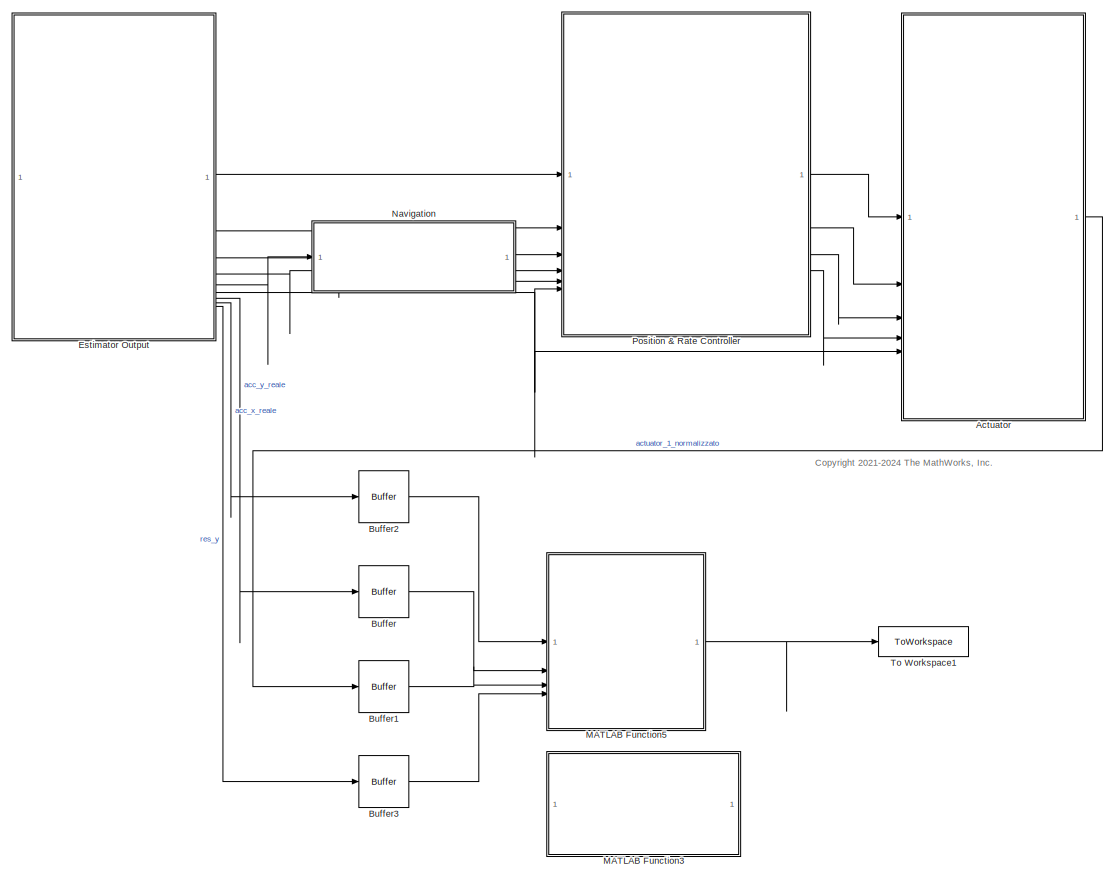
[diagram: root canvas - part 1/2, most of the canvas]
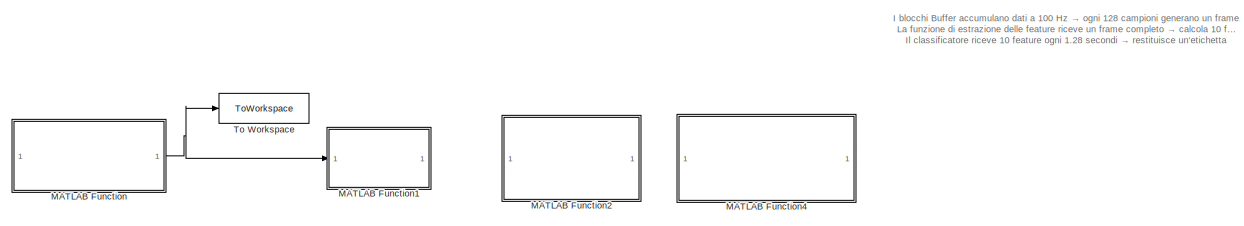
[diagram: root canvas - part 2/2, full width, bottom band]
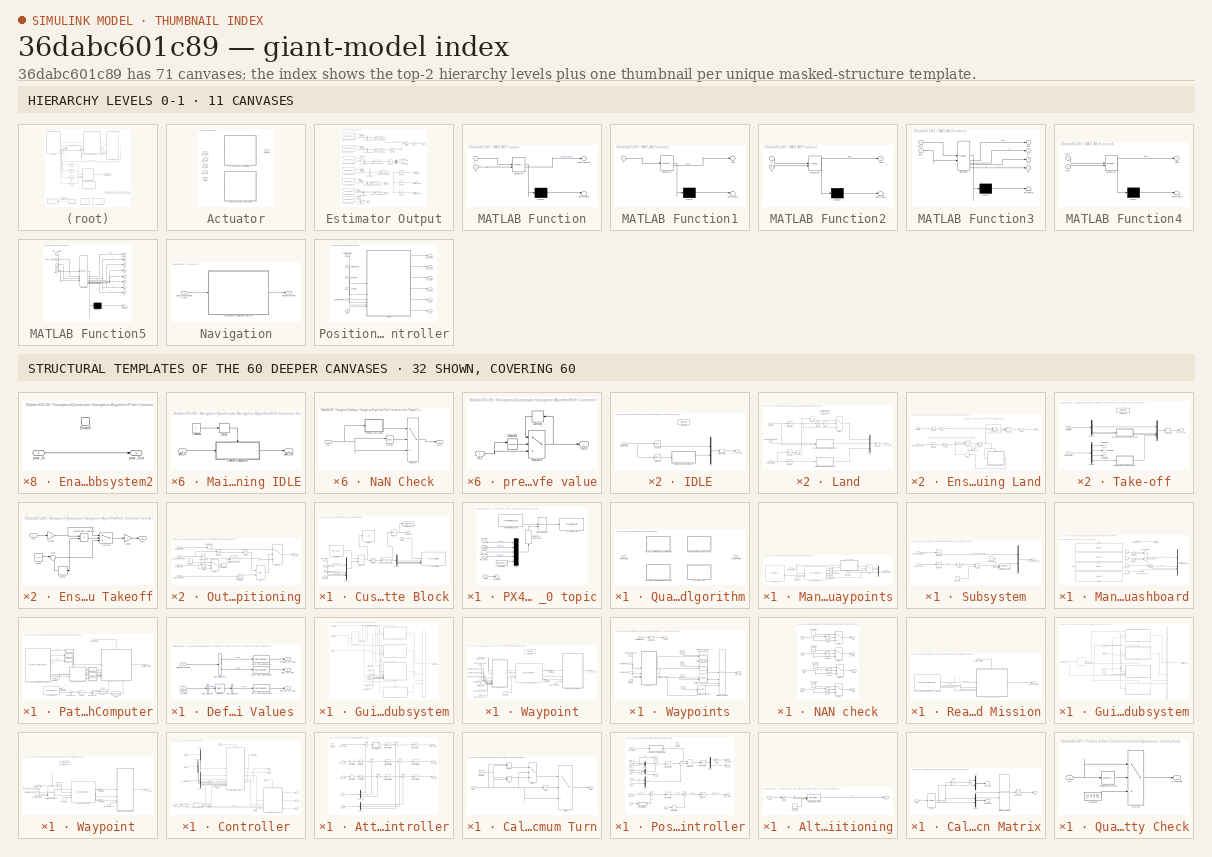
[diagram: thumbnail index - top-2 hierarchy levels (11 canvases) + 32 structural-template representatives of the remaining 60 canvases]
MODEL slx_36dabc601c89
KIND model
CONFIG AbsTol = auto
CONFIG EnableMultiTasking = on
CONFIG FixedStep = auto
CONFIG MaxStep = auto
CONFIG MinStep = auto
CONFIG RelTol = 1e-3
CONFIG SampleTimeConstraint = Unconstrained
CONFIG SolverName = FixedStepAuto
CONFIG StartTime = 0.0
CONFIG StopTime = inf
BLOCK [SubSystem] Actuator
  Variant = on
BLOCK [Inport] Actuator/Armed
  Port = 5
BLOCK [SubSystem] Actuator/Custom Mixer and Actuator Write Block
  VariantControl = useCustomMixer == true
BLOCK [Inport] Actuator/Custom Mixer and Actuator Write Block/Armed
  Port = 5
BLOCK [DataTypeConversion] Actuator/Custom Mixer and Actuator Write Block/Data Type Conversion
  OutDataTypeStr = single
  RndMeth = Floor
  SaturateOnIntegerOverflow = off
BLOCK [Demux] Actuator/Custom Mixer and Actuator Write Block/Demux
BLOCK [Display] Actuator/Custom Mixer and Actuator Write Block/Display
  Decimation = 1
BLOCK [Constant] Actuator/Custom Mixer and Actuator Write Block/Mixer matrix
  NameLocation = top
  OutDataTypeStr = Inherit: Inherit via back propagation
  SampleTime = -1
  Value = [1 1 -1 1;1 -1 1 1;1 1 1 -1;1 -1 -1 -1]
BLOCK [Mux] Actuator/Custom Mixer and Actuator Write Block/Mux1
  DisplayOption = bar
BLOCK [Reference] Actuator/Custom Mixer and Actuator Write Block/PX4 Actuator Write  REF=px4Peripheralslib/PX4 Actuator Write
  SourceBlock = px4Peripheralslib/PX4 Actuator Write
  SourceType = px4.internal.block.PX4Actuators
BLOCK [Product] Actuator/Custom Mixer and Actuator Write Block/Product1
  Multiplication = Matrix(*)
  RndMeth = Zero
BLOCK [Saturate] Actuator/Custom Mixer and Actuator Write Block/Saturation
  LowerLimit = 0
  UpperLimit = 1
BLOCK [Selector] Actuator/Custom Mixer and Actuator Write Block/Selector
  IndexOptions = Index vector (dialog)
  Indices = [1]
  InputPortWidth = 4
  OutputSizes = 1
BLOCK [ToWorkspace] Actuator/Custom Mixer and Actuator Write Block/To Workspace
  FixptAsFi = on
  MaxDataPoints = inf
  SampleTime = -1
  VariableName = Actuator1
BLOCK [Outport] Actuator/Custom Mixer and Actuator Write Block/actuator_1
BLOCK [Inport] Actuator/Custom Mixer and Actuator Write Block/tau_Pitch
  Port = 3
BLOCK [Inport] Actuator/Custom Mixer and Actuator Write Block/tau_Roll
  Port = 4
BLOCK [Inport] Actuator/Custom Mixer and Actuator Write Block/tau_Thrust
BLOCK [Inport] Actuator/Custom Mixer and Actuator Write Block/tau_yaw
  Port = 2
BLOCK [SubSystem] Actuator/PX4 Mixer and actuator_controls_0 topic
  VariantControl = useCustomMixer == false
BLOCK [Inport] Actuator/PX4 Mixer and actuator_controls_0 topic/Armed
  Port = 5
BLOCK [BusAssignment] Actuator/PX4 Mixer and actuator_controls_0 topic/Bus Assignment
  AssignedSignals = control
BLOCK [Constant] Actuator/PX4 Mixer and actuator_controls_0 topic/Constant
  Value = zeros(4,1)
BLOCK [DataTypeConversion] Actuator/PX4 Mixer and actuator_controls_0 topic/Data Type Conversion
  NameLocation = right
  RndMeth = Floor
  SaturateOnIntegerOverflow = off
BLOCK [Mux] Actuator/PX4 Mixer and actuator_controls_0 topic/Mux
  DisplayOption = bar
  Inputs = 5
BLOCK [Reference] Actuator/PX4 Mixer and actuator_controls_0 topic/PX4 uORB Message  REF=px4uORBlib/PX4 uORB Message
  SourceBlock = px4uORBlib/PX4 uORB Message
  SourceType = PX4 uORB Message
BLOCK [Reference] Actuator/PX4 Mixer and actuator_controls_0 topic/PX4 uORB Write  REF=px4uORBlib/PX4 uORB Write
  SourceBlock = px4uORBlib/PX4 uORB Write
  SourceType = PX4 uORB Write
BLOCK [Terminator] Actuator/PX4 Mixer and actuator_controls_0 topic/Terminator
BLOCK [Inport] Actuator/PX4 Mixer and actuator_controls_0 topic/tau_Pitch
  Port = 3
BLOCK [Inport] Actuator/PX4 Mixer and actuator_controls_0 topic/tau_Roll
  Port = 4
BLOCK [Inport] Actuator/PX4 Mixer and actuator_controls_0 topic/tau_Thrust
BLOCK [Inport] Actuator/PX4 Mixer and actuator_controls_0 topic/tau_yaw
  Port = 2
BLOCK [Outport] Actuator/actuator_1
BLOCK [Inport] Actuator/tau_Pitch
  Port = 3
BLOCK [Inport] Actuator/tau_Roll
  Port = 4
BLOCK [Inport] Actuator/tau_Thrust
BLOCK [Inport] Actuator/tau_yaw
  Port = 2
BLOCK [Buffer] Buffer
  N = 128
  OutputFrames = off
  V = 32
BLOCK [Buffer] Buffer1
  N = 128
  OutputFrames = off
  V = 32
BLOCK [Buffer] Buffer2
  N = 128
  OutputFrames = off
  V = 32
BLOCK [Buffer] Buffer3
  N = 128
  OutputFrames = off
  V = 32
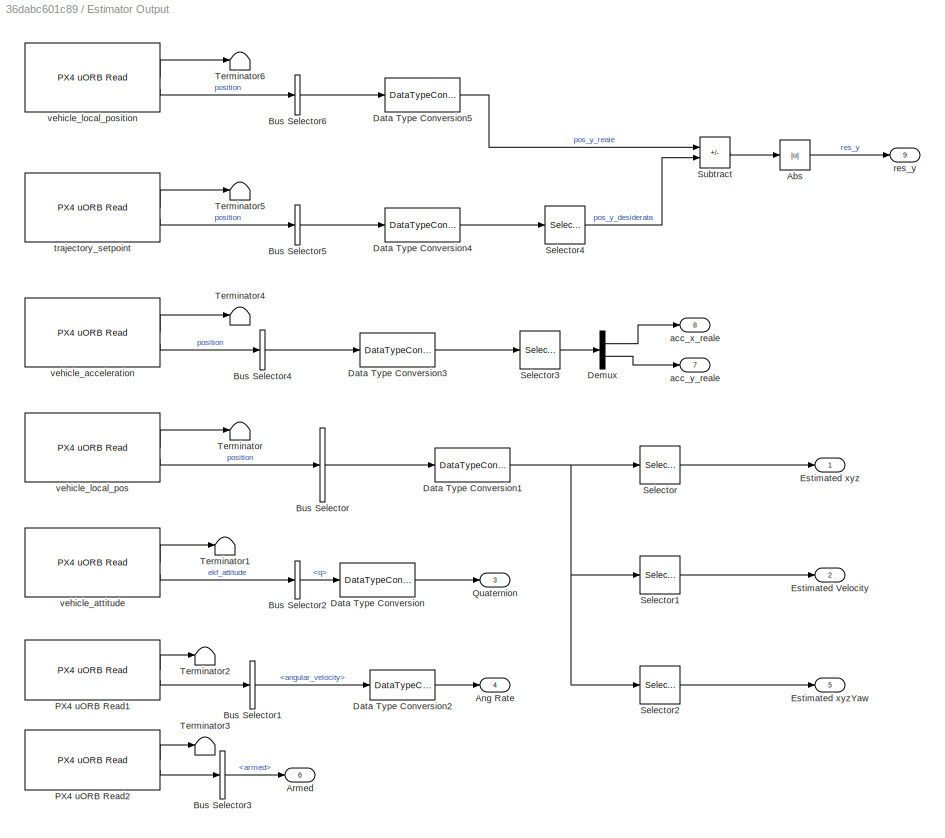
BLOCK [SubSystem] Estimator Output
BLOCK [Abs] Estimator Output/Abs
  SaturateOnIntegerOverflow = off
BLOCK [Outport] Estimator Output/Ang Rate
  Port = 4
BLOCK [Outport] Estimator Output/Armed
  Port = 6
BLOCK [BusSelector] Estimator Output/Bus Selector
  OutputAsBus = on
  OutputSignals = x,y,z,vx,vy,vz,heading
BLOCK [BusSelector] Estimator Output/Bus Selector1
  OutputSignals = angular_velocity
BLOCK [BusSelector] Estimator Output/Bus Selector2
  OutputSignals = q
BLOCK [BusSelector] Estimator Output/Bus Selector3
  OutputSignals = armed
BLOCK [BusSelector] Estimator Output/Bus Selector4
  OutputAsBus = on
  OutputSignals = xyz
BLOCK [BusSelector] Estimator Output/Bus Selector5
  OutputAsBus = on
  OutputSignals = position
BLOCK [BusSelector] Estimator Output/Bus Selector6
  OutputAsBus = on
  OutputSignals = y
BLOCK [DataTypeConversion] Estimator Output/Data Type Conversion
  OutDataTypeStr = double
  RndMeth = Floor
  SaturateOnIntegerOverflow = off
BLOCK [DataTypeConversion] Estimator Output/Data Type Conversion1
  OutDataTypeStr = double
  RndMeth = Floor
  SaturateOnIntegerOverflow = off
BLOCK [DataTypeConversion] Estimator Output/Data Type Conversion2
  OutDataTypeStr = double
  RndMeth = Floor
  SaturateOnIntegerOverflow = off
BLOCK [DataTypeConversion] Estimator Output/Data Type Conversion3
  OutDataTypeStr = double
  RndMeth = Floor
  SaturateOnIntegerOverflow = off
BLOCK [DataTypeConversion] Estimator Output/Data Type Conversion4
  OutDataTypeStr = double
  RndMeth = Floor
  SaturateOnIntegerOverflow = off
BLOCK [DataTypeConversion] Estimator Output/Data Type Conversion5
  OutDataTypeStr = double
  RndMeth = Floor
  SaturateOnIntegerOverflow = off
BLOCK [Demux] Estimator Output/Demux
  Outputs = 2
BLOCK [Outport] Estimator Output/Estimated Velocity
  Port = 2
BLOCK [Outport] Estimator Output/Estimated xyz
BLOCK [Outport] Estimator Output/Estimated xyzYaw
  Port = 5
BLOCK [Reference] Estimator Output/PX4 uORB Read1  REF=px4uORBlib/PX4 uORB Read
  SourceBlock = px4uORBlib/PX4 uORB Read
  SourceType = PX4 uORB Read
BLOCK [Reference] Estimator Output/PX4 uORB Read2  REF=px4uORBlib/PX4 uORB Read
  SourceBlock = px4uORBlib/PX4 uORB Read
  SourceType = PX4 uORB Read
BLOCK [Outport] Estimator Output/Quaternion 
  Port = 3
BLOCK [Selector] Estimator Output/Selector
  IndexOptions = Index vector (dialog)
  Indices = [1:3]
  InputPortWidth = 7
  OutputSizes = 1
BLOCK [Selector] Estimator Output/Selector1
  IndexOptions = Index vector (dialog)
  Indices = [4:6]
  InputPortWidth = 7
  OutputSizes = 1
BLOCK [Selector] Estimator Output/Selector2
  IndexOptions = Index vector (dialog)
  Indices = [1 2 3 7]
  InputPortWidth = 7
  OutputSizes = 1
BLOCK [Selector] Estimator Output/Selector3
  IndexOptions = Index vector (dialog)
  Indices = [1 2]
  InputPortWidth = 3
  OutputSizes = 1
BLOCK [Selector] Estimator Output/Selector4
  IndexOptions = Index vector (dialog)
  Indices = [2]
  InputPortWidth = 3
  OutputSizes = 1
BLOCK [Sum] Estimator Output/Subtract
  IconShape = rectangular
  Inputs = +-
BLOCK [Terminator] Estimator Output/Terminator
BLOCK [Terminator] Estimator Output/Terminator1
BLOCK [Terminator] Estimator Output/Terminator2
BLOCK [Terminator] Estimator Output/Terminator3
BLOCK [Terminator] Estimator Output/Terminator4
BLOCK [Terminator] Estimator Output/Terminator5
BLOCK [Terminator] Estimator Output/Terminator6
BLOCK [Outport] Estimator Output/acc_x_reale
  Port = 8
BLOCK [Outport] Estimator Output/acc_y_reale
  Port = 7
BLOCK [Outport] Estimator Output/res_y
  Port = 9
BLOCK [Reference] Estimator Output/trajectory_setpoint  REF=px4uORBlib/PX4 uORB Read
  SourceBlock = px4uORBlib/PX4 uORB Read
  SourceType = PX4 uORB Read
BLOCK [Reference] Estimator Output/vehicle_acceleration  REF=px4uORBlib/PX4 uORB Read
  SourceBlock = px4uORBlib/PX4 uORB Read
  SourceType = PX4 uORB Read
BLOCK [Reference] Estimator Output/vehicle_attitude  REF=px4uORBlib/PX4 uORB Read
  SourceBlock = px4uORBlib/PX4 uORB Read
  SourceType = PX4 uORB Read
BLOCK [Reference] Estimator Output/vehicle_local_pos  REF=px4uORBlib/PX4 uORB Read
  SourceBlock = px4uORBlib/PX4 uORB Read
  SourceType = PX4 uORB Read
BLOCK [Reference] Estimator Output/vehicle_local_position  REF=px4uORBlib/PX4 uORB Read
  SourceBlock = px4uORBlib/PX4 uORB Read
  SourceType = PX4 uORB Read
BLOCK [SubSystem] MATLAB Function
  Commented = on
  ErrorFcn = Stateflow.Translate.translate
  PermitHierarchicalResolution = ExplicitOnly
  SFBlockType = MATLAB Function
  TreatAsAtomicUnit = on
BLOCK [Demux] MATLAB Function/ Demux 
  Outputs = 1
BLOCK [S-Function] MATLAB Function/ SFunction 
  EnableBusSupport = on
  FunctionName = sf_sfun
  PortCounts = [2 2]
  SFcnIsStateOwnerBlock = off
  SFunctionDeploymentMode = off
  Tag = Stateflow S-Function 2
BLOCK [Terminator] MATLAB Function/ Terminator 
BLOCK [Inport] MATLAB Function/fa
  Port = 2
BLOCK [Outport] MATLAB Function/featureVector
BLOCK [Inport] MATLAB Function/fy
BLOCK [SubSystem] MATLAB Function1
  Commented = on
  ErrorFcn = Stateflow.Translate.translate
  PermitHierarchicalResolution = ExplicitOnly
  SFBlockType = MATLAB Function
  TreatAsAtomicUnit = on
BLOCK [Demux] MATLAB Function1/ Demux 
  Outputs = 1
BLOCK [S-Function] MATLAB Function1/ SFunction 
  EnableBusSupport = on
  FunctionName = sf_sfun
  PortCounts = [1 2]
  SFcnIsStateOwnerBlock = off
  SFunctionDeploymentMode = off
  Tag = Stateflow S-Function 1
BLOCK [Terminator] MATLAB Function1/ Terminator 
BLOCK [Outport] MATLAB Function1/label
BLOCK [Inport] MATLAB Function1/x
BLOCK [SubSystem] MATLAB Function2
  Commented = on
  ErrorFcn = Stateflow.Translate.translate
  PermitHierarchicalResolution = ExplicitOnly
  SFBlockType = MATLAB Function
  TreatAsAtomicUnit = on
BLOCK [Demux] MATLAB Function2/ Demux 
  Outputs = 1
BLOCK [S-Function] MATLAB Function2/ SFunction 
  EnableBusSupport = on
  FunctionName = sf_sfun
  PortCounts = [2 2]
  SFcnIsStateOwnerBlock = off
  SFunctionDeploymentMode = off
  Tag = Stateflow S-Function 3
BLOCK [Terminator] MATLAB Function2/ Terminator 
BLOCK [Inport] MATLAB Function2/fa
  Port = 2
BLOCK [Inport] MATLAB Function2/fy
BLOCK [Outport] MATLAB Function2/label
BLOCK [SubSystem] MATLAB Function3
  Commented = on
  ErrorFcn = Stateflow.Translate.translate
  PermitHierarchicalResolution = ExplicitOnly
  SFBlockType = MATLAB Function
  TreatAsAtomicUnit = on
BLOCK [Demux] MATLAB Function3/ Demux 
  Outputs = 1
BLOCK [S-Function] MATLAB Function3/ SFunction 
  EnableBusSupport = on
  FunctionName = sf_sfun
  PortCounts = [2 5]
  SFcnIsStateOwnerBlock = off
  SFunctionDeploymentMode = off
  Tag = Stateflow S-Function 4
BLOCK [Terminator] MATLAB Function3/ Terminator 
BLOCK [Inport] MATLAB Function3/acc_y
BLOCK [Inport] MATLAB Function3/act1
  Port = 2
BLOCK [Outport] MATLAB Function3/f1
  Port = 2
BLOCK [Outport] MATLAB Function3/f2
  Port = 3
BLOCK [Outport] MATLAB Function3/f3
  Port = 4
BLOCK [Outport] MATLAB Function3/label
  VectorParamsAs1DForOutWhenUnconnected = off
BLOCK [SubSystem] MATLAB Function4
  Commented = on
  ErrorFcn = Stateflow.Translate.translate
  PermitHierarchicalResolution = ExplicitOnly
  SFBlockType = MATLAB Function
  TreatAsAtomicUnit = on
BLOCK [Demux] MATLAB Function4/ Demux 
  Outputs = 1
BLOCK [S-Function] MATLAB Function4/ SFunction 
  EnableBusSupport = off
  FunctionName = sf_sfun
  PortCounts = [2 2]
  SFcnIsStateOwnerBlock = off
  SFunctionDeploymentMode = off
  Tag = Stateflow S-Function 5
BLOCK [Terminator] MATLAB Function4/ Terminator 
BLOCK [Inport] MATLAB Function4/acc_y
BLOCK [Inport] MATLAB Function4/act1
  Port = 2
BLOCK [Outport] MATLAB Function4/label
  VectorParamsAs1DForOutWhenUnconnected = off
BLOCK [SubSystem] MATLAB Function5
  ErrorFcn = Stateflow.Translate.translate
  PermitHierarchicalResolution = ExplicitOnly
  SFBlockType = MATLAB Function
  TreatAsAtomicUnit = on
BLOCK [Demux] MATLAB Function5/ Demux 
  Outputs = 1
BLOCK [S-Function] MATLAB Function5/ SFunction 
  EnableBusSupport = on
  FunctionName = sf_sfun
  PortCounts = [4 9]
  SFcnIsStateOwnerBlock = off
  SFunctionDeploymentMode = off
  Tag = Stateflow S-Function 6
BLOCK [Terminator] MATLAB Function5/ Terminator 
BLOCK [Inport] MATLAB Function5/acc_x_reale
BLOCK [Inport] MATLAB Function5/acc_y_reale
  Port = 2
BLOCK [Inport] MATLAB Function5/act1
  Port = 3
BLOCK [Outport] MATLAB Function5/f1
  Port = 2
BLOCK [Outport] MATLAB Function5/f2
  Port = 3
BLOCK [Outport] MATLAB Function5/f3
  Port = 4
BLOCK [Outport] MATLAB Function5/f4
  Port = 5
BLOCK [Outport] MATLAB Function5/f5
  Port = 6
BLOCK [Outport] MATLAB Function5/f6
  Port = 7
BLOCK [Outport] MATLAB Function5/f7
  Port = 8
BLOCK [Outport] MATLAB Function5/label
  VectorParamsAs1DForOutWhenUnconnected = off
BLOCK [Inport] MATLAB Function5/res_y
  Port = 4
BLOCK [SubSystem] Navigation
BLOCK [Outport] Navigation/Desired Position
BLOCK [Inport] Navigation/Estimated Position & Yaw
BLOCK [SubSystem] Navigation/Quadcopter Navigation Algorithm
  Variant = on
BLOCK [Inport] Navigation/Quadcopter Navigation Algorithm/Current Position
BLOCK [Outport] Navigation/Quadcopter Navigation Algorithm/Desired Position
BLOCK [SubSystem] Navigation/Quadcopter Navigation Algorithm/Manual Waypoints
  VariantControl = guidanceType == 3
BLOCK [SubSystem] Navigation/Quadcopter Navigation Algorithm/Manual Waypoints from Simulink Dashboard
  VariantControl = guidanceType == 2
BLOCK [Inport] Navigation/Quadcopter Navigation Algorithm/Manual Waypoints from Simulink Dashboard/Current Position
  PortDimensions = [1 4]
BLOCK [Reference] Navigation/Quadcopter Navigation Algorithm/Manual Waypoints from Simulink Dashboard/Degrees to Radians  REF=simulink_extras/Transformations/Degrees to
Radians
  SourceBlock = simulink_extras/Transformations/Degrees to\nRadians
  SourceType = DegreesToRadians
BLOCK [Outport] Navigation/Quadcopter Navigation Algorithm/Manual Waypoints from Simulink Dashboard/Desired Position
BLOCK [Gain] Navigation/Quadcopter Navigation Algorithm/Manual Waypoints from Simulink Dashboard/Gain
  Gain = -1
BLOCK [ManualSwitch] Navigation/Quadcopter Navigation Algorithm/Manual Waypoints from Simulink Dashboard/Manual Switch
BLOCK [ManualSwitch] Navigation/Quadcopter Navigation Algorithm/Manual Waypoints from Simulink Dashboard/Manual Switch1
BLOCK [Mux] Navigation/Quadcopter Navigation Algorithm/Manual Waypoints from Simulink Dashboard/Mux
  DisplayOption = bar
BLOCK [Sin] Navigation/Quadcopter Navigation Algorithm/Manual Waypoints from Simulink Dashboard/Sine Wave
  Amplitude = 80
  Frequency = 2*pi*0.005
BLOCK [Sin] Navigation/Quadcopter Navigation Algorithm/Manual Waypoints from Simulink Dashboard/Sine Wave1
  Amplitude = 80
  Frequency = 2*pi*0.005
  Phase = pi/2
BLOCK [SliderBlock] Navigation/Quadcopter Navigation Algorithm/Manual Waypoints from Simulink Dashboard/Slider1
  ScaleMax = 20
  ScaleMin = -20
BLOCK [SliderBlock] Navigation/Quadcopter Navigation Algorithm/Manual Waypoints from Simulink Dashboard/Slider2
  ScaleMax = 180
  ScaleMin = -180
BLOCK [SliderBlock] Navigation/Quadcopter Navigation Algorithm/Manual Waypoints from Simulink Dashboard/Slider3
BLOCK [SliderBlock] Navigation/Quadcopter Navigation Algorithm/Manual Waypoints from Simulink Dashboard/Slider4
  ScaleMax = 20
  ScaleMin = -20
BLOCK [Terminator] Navigation/Quadcopter Navigation Algorithm/Manual Waypoints from Simulink Dashboard/Terminator
BLOCK [Constant] Navigation/Quadcopter Navigation Algorithm/Manual Waypoints from Simulink Dashboard/desX
  SampleTime = -1
  Value = 0
BLOCK [Constant] Navigation/Quadcopter Navigation Algorithm/Manual Waypoints from Simulink Dashboard/desY
  SampleTime = -1
  Value = 0
BLOCK [Constant] Navigation/Quadcopter Navigation Algorithm/Manual Waypoints from Simulink Dashboard/des_alt
  SampleTime = -1
  Value = 8
BLOCK [Constant] Navigation/Quadcopter Navigation Algorithm/Manual Waypoints from Simulink Dashboard/des_yaw
  SampleTime = -1
  Value = 0
BLOCK [Constant] Navigation/Quadcopter Navigation Algorithm/Manual Waypoints/Constant1
  SampleTime = -1
  Value = [0 0 -20 0; 20 0 -20 0;20 10 -20 0; 20 100 -30 0;30 100 -30 0;50 100 -30 0]
BLOCK [Constant] Navigation/Quadcopter Navigation Algorithm/Manual Waypoints/Constant2
  SampleTime = -1
  Value = 2
BLOCK [Constant] Navigation/Quadcopter Navigation Algorithm/Manual Waypoints/Constant3
  SampleTime = -1
  Value = 0
BLOCK [Inport] Navigation/Quadcopter Navigation Algorithm/Manual Waypoints/Current Position
BLOCK [Outport] Navigation/Quadcopter Navigation Algorithm/Manual Waypoints/Desired Position
BLOCK [Mux] Navigation/Quadcopter Navigation Algorithm/Manual Waypoints/Mux
  DisplayOption = bar
  Inputs = 2
BLOCK [SubSystem] Navigation/Quadcopter Navigation Algorithm/Manual Waypoints/Subsystem
BLOCK [Sum] Navigation/Quadcopter Navigation Algorithm/Manual Waypoints/Subsystem/Add
  IconShape = rectangular
  Inputs = +-
BLOCK [Constant] Navigation/Quadcopter Navigation Algorithm/Manual Waypoints/Subsystem/Constant
  OutDataTypeStr = Inherit: Inherit via back propagation
  Value = -1
BLOCK [Constant] Navigation/Quadcopter Navigation Algorithm/Manual Waypoints/Subsystem/Constant2
  OutDataTypeStr = Inherit: Inherit via back propagation
  Value = 0
BLOCK [Gain] Navigation/Quadcopter Navigation Algorithm/Manual Waypoints/Subsystem/Gain
BLOCK [Inport] Navigation/Quadcopter Navigation Algorithm/Manual Waypoints/Subsystem/Lookahead Point
  Port = 2
BLOCK [Mux] Navigation/Quadcopter Navigation Algorithm/Manual Waypoints/Subsystem/Mux
  DisplayOption = bar
  Inputs = 2
BLOCK [Reference] Navigation/Quadcopter Navigation Algorithm/Manual Waypoints/Subsystem/Saturation Dynamic1  REF=simulink/Discontinuities/Saturation
Dynamic
  SourceBlock = simulink/Discontinuities/Saturation\nDynamic
  SourceType = Saturation Dynamic
BLOCK [Selector] Navigation/Quadcopter Navigation Algorithm/Manual Waypoints/Subsystem/Selector
  IndexOptions = Index vector (dialog)
  Indices = [3]
  InputPortWidth = 4
  OutputSizes = 1
BLOCK [Selector] Navigation/Quadcopter Navigation Algorithm/Manual Waypoints/Subsystem/Selector1
  IndexOptions = Index vector (dialog)
  Indices = [1 2]
  InputPortWidth = 3
  OutputSizes = 1
BLOCK [Inport] Navigation/Quadcopter Navigation Algorithm/Manual Waypoints/Subsystem/curr_xyzYaw
BLOCK [Outport] Navigation/Quadcopter Navigation Algorithm/Manual Waypoints/Subsystem/des_landing_pos
BLOCK [Switch] Navigation/Quadcopter Navigation Algorithm/Manual Waypoints/Switch
  Criteria = u2 > Threshold
  InputSameDT = off
  SaturateOnIntegerOverflow = off
BLOCK [Terminator] Navigation/Quadcopter Navigation Algorithm/Manual Waypoints/Terminator1
BLOCK [Terminator] Navigation/Quadcopter Navigation Algorithm/Manual Waypoints/Terminator2
BLOCK [Terminator] Navigation/Quadcopter Navigation Algorithm/Manual Waypoints/Terminator4
BLOCK [Reference] Navigation/Quadcopter Navigation Algorithm/Manual Waypoints/Waypoint Follower  REF=uavalgslib/Waypoint Follower
  SourceBlock = uavalgslib/Waypoint Follower
  SourceType = uav.sluav.internal.system.WaypointFollower
BLOCK [SubSystem] Navigation/Quadcopter Navigation Algorithm/Path Correction from Onboard Computer
  VariantControl = guidanceType == 1
BLOCK [BusSelector] Navigation/Quadcopter Navigation Algorithm/Path Correction from Onboard Computer/Bus Selector
  OutputSignals = position,yaw
BLOCK [BusSelector] Navigation/Quadcopter Navigation Algorithm/Path Correction from Onboard Computer/Bus Selector1
  OutputSignals = waypoints
BLOCK [DataTypeConversion] Navigation/Quadcopter Navigation Algorithm/Path Correction from Onboard Computer/Cast
  RndMeth = Floor
  SaturateOnIntegerOverflow = off
BLOCK [DataTypeConversion] Navigation/Quadcopter Navigation Algorithm/Path Correction from Onboard Computer/Cast1
  RndMeth = Floor
  SaturateOnIntegerOverflow = off
BLOCK [Inport] Navigation/Quadcopter Navigation Algorithm/Path Correction from Onboard Computer/Current Position
BLOCK [SubSystem] Navigation/Quadcopter Navigation Algorithm/Path Correction from Onboard Computer/Define WP Yaw Values 
BLOCK [BusSelector] Navigation/Quadcopter Navigation Algorithm/Path Correction from Onboard Computer/Define WP Yaw Values /Bus Selector
  OutputSignals = waypoints
BLOCK [BusSelector] Navigation/Quadcopter Navigation Algorithm/Path Correction from Onboard Computer/Define WP Yaw Values /Bus Selector1
  OutputSignals = yaw
BLOCK [BusSelector] Navigation/Quadcopter Navigation Algorithm/Path Correction from Onboard Computer/Define WP Yaw Values /Bus Selector2
  OutputSignals = previous.yaw,next.yaw
BLOCK [Outport] Navigation/Quadcopter Navigation Algorithm/Path Correction from Onboard Computer/Define WP Yaw Values /Current WP Yaw
  Port = 2
BLOCK [DataTypeConversion] Navigation/Quadcopter Navigation Algorithm/Path Correction from Onboard Computer/Define WP Yaw Values /Data Type Conversion
  OutDataTypeStr = double
  RndMeth = Floor
  SaturateOnIntegerOverflow = off
BLOCK [DataTypeConversion] Navigation/Quadcopter Navigation Algorithm/Path Correction from Onboard Computer/Define WP Yaw Values /Data Type Conversion1
  OutDataTypeStr = double
  RndMeth = Floor
  SaturateOnIntegerOverflow = off
BLOCK [DataTypeConversion] Navigation/Quadcopter Navigation Algorithm/Path Correction from Onboard Computer/Define WP Yaw Values /Data Type Conversion2
  OutDataTypeStr = double
  RndMeth = Floor
  SaturateOnIntegerOverflow = off
BLOCK [Outport] Navigation/Quadcopter Navigation Algorithm/Path Correction from Onboard Computer/Define WP Yaw Values /Next WP Yaw
  Port = 3
BLOCK [Outport] Navigation/Quadcopter Navigation Algorithm/Path Correction from Onboard Computer/Define WP Yaw Values /Previous WP Yaw
BLOCK [Selector] Navigation/Quadcopter Navigation Algorithm/Path Correction from Onboard Computer/Define WP Yaw Values /Selector
  IndexOptions = Index vector (dialog)
  Indices = 1
  InputPortWidth = 5
  OutputSizes = 1
BLOCK [Inport] Navigation/Quadcopter Navigation Algorithm/Path Correction from Onboard Computer/Define WP Yaw Values /Trajectory Waypoint
  Port = 2
BLOCK [Inport] Navigation/Quadcopter Navigation Algorithm/Path Correction from Onboard Computer/Define WP Yaw Values /position setpoint
BLOCK [Outport] Navigation/Quadcopter Navigation Algorithm/Path Correction from Onboard Computer/Desired Position
BLOCK [SubSystem] Navigation/Quadcopter Navigation Algorithm/Path Correction from Onboard Computer/Guidance Subsystem
  PortSchema = {"entries":[{"content":{"sides":[{"content":{"connectorIds":["In1","In2","In3","In4","In5","In6","In7"]},"type":"ConnectorPlacement.EquallySpacedRectSide","uuid":"e9e96be5-af21-4911-860e-f3d41d3d51a5"},{"content":{"connectorIds":["Out1"],"side":"RIGHT"},"type":"ConnectorPlacement.EquallySpacedRectSide","uuid":"1d190cc4-2348-4eca-a529-c9f1d728b718"},{"content":{"connectorIds":["In8"],"side":"TOP"},...<+437ch>
BLOCK [Inport] Navigation/Quadcopter Navigation Algorithm/Path Correction from Onboard Computer/Guidance Subsystem/Current Position
  Port = 8
BLOCK [Inport] Navigation/Quadcopter Navigation Algorithm/Path Correction from Onboard Computer/Guidance Subsystem/Current WP
  Port = 2
BLOCK [Inport] Navigation/Quadcopter Navigation Algorithm/Path Correction from Onboard Computer/Guidance Subsystem/Current WP Yaw
  Port = 6
BLOCK [Outport] Navigation/Quadcopter Navigation Algorithm/Path Correction from Onboard Computer/Guidance Subsystem/Desired_Pose
BLOCK [SubSystem] Navigation/Quadcopter Navigation Algorithm/Path Correction from Onboard Computer/Guidance Subsystem/IDLE
  TreatAsAtomicUnit = on
BLOCK [ActionPort] Navigation/Quadcopter Navigation Algorithm/Path Correction from Onboard Computer/Guidance Subsystem/IDLE/Action Port
  InitializeStates = reset
BLOCK [Inport] Navigation/Quadcopter Navigation Algorithm/Path Correction from Onboard Computer/Guidance Subsystem/IDLE/Current Position
BLOCK [SubSystem] Navigation/Quadcopter Navigation Algorithm/Path Correction from Onboard Computer/Guidance Subsystem/IDLE/Maintain Current Yaw during IDLE
BLOCK [Constant] Navigation/Quadcopter Navigation Algorithm/Path Correction from Onboard Computer/Guidance Subsystem/IDLE/Maintain Current Yaw during IDLE/Constant
  Value = 0
BLOCK [Delay] Navigation/Quadcopter Navigation Algorithm/Path Correction from Onboard Computer/Guidance Subsystem/IDLE/Maintain Current Yaw during IDLE/Delay
  DelayLength = 1
  InitialCondition = 1
  InputPortMap = u0
BLOCK [SubSystem] Navigation/Quadcopter Navigation Algorithm/Path Correction from Onboard Computer/Guidance Subsystem/IDLE/Maintain Current Yaw during IDLE/Enabled Subsystem2
  TreatAsAtomicUnit = on
BLOCK [EnablePort] Navigation/Quadcopter Navigation Algorithm/Path Correction from Onboard Computer/Guidance Subsystem/IDLE/Maintain Current Yaw during IDLE/Enabled Subsystem2/Enable
BLOCK [Inport] Navigation/Quadcopter Navigation Algorithm/Path Correction from Onboard Computer/Guidance Subsystem/IDLE/Maintain Current Yaw during IDLE/Enabled Subsystem2/yaw_In
BLOCK [Outport] Navigation/Quadcopter Navigation Algorithm/Path Correction from Onboard Computer/Guidance Subsystem/IDLE/Maintain Current Yaw during IDLE/Enabled Subsystem2/yaw_Out
BLOCK [Inport] Navigation/Quadcopter Navigation Algorithm/Path Correction from Onboard Computer/Guidance Subsystem/IDLE/Maintain Current Yaw during IDLE/yaw_In
BLOCK [Outport] Navigation/Quadcopter Navigation Algorithm/Path Correction from Onboard Computer/Guidance Subsystem/IDLE/Maintain Current Yaw during IDLE/yaw_Out
BLOCK [Mux] Navigation/Quadcopter Navigation Algorithm/Path Correction from Onboard Computer/Guidance Subsystem/IDLE/Mux
  DisplayOption = bar
  Inputs = 2
BLOCK [Reshape] Navigation/Quadcopter Navigation Algorithm/Path Correction from Onboard Computer/Guidance Subsystem/IDLE/Reshape1
  OutputDimensionality = Row vector (2-D)
BLOCK [Selector] Navigation/Quadcopter Navigation Algorithm/Path Correction from Onboard Computer/Guidance Subsystem/IDLE/Selector
  IndexOptions = Index vector (dialog)
  Indices = [4]
  InputPortWidth = 4
  OutputSizes = 1
BLOCK [Selector] Navigation/Quadcopter Navigation Algorithm/Path Correction from Onboard Computer/Guidance Subsystem/IDLE/Selector1
  IndexOptions = Index vector (dialog)
  Indices = [1 2 3]
  InputPortWidth = 4
  OutputSizes = 1
BLOCK [Outport] Navigation/Quadcopter Navigation Algorithm/Path Correction from Onboard Computer/Guidance Subsystem/IDLE/x_y_z_yaw
BLOCK [If] Navigation/Quadcopter Navigation Algorithm/Path Correction from Onboard Computer/Guidance Subsystem/If
  ElseIfExpressions = u1 ==4, u1 == 0
  IfExpression = (u1 ==3)
BLOCK [SubSystem] Navigation/Quadcopter Navigation Algorithm/Path Correction from Onboard Computer/Guidance Subsystem/Land
  TreatAsAtomicUnit = on
BLOCK [ActionPort] Navigation/Quadcopter Navigation Algorithm/Path Correction from Onboard Computer/Guidance Subsystem/Land/Action Port
  InitializeStates = reset
BLOCK [Inport] Navigation/Quadcopter Navigation Algorithm/Path Correction from Onboard Computer/Guidance Subsystem/Land/Current Position
BLOCK [Inport] Navigation/Quadcopter Navigation Algorithm/Path Correction from Onboard Computer/Guidance Subsystem/Land/Current WP
  Port = 2
BLOCK [Delay] Navigation/Quadcopter Navigation Algorithm/Path Correction from Onboard Computer/Guidance Subsystem/Land/Delay
  DelayLength = 1
  InputPortMap = u0
BLOCK [SubSystem] Navigation/Quadcopter Navigation Algorithm/Path Correction from Onboard Computer/Guidance Subsystem/Land/Ensure Smooth descend during Land
BLOCK [Inport] Navigation/Quadcopter Navigation Algorithm/Path Correction from Onboard Computer/Guidance Subsystem/Land/Ensure Smooth descend during Land/Current WP
  Port = 2
BLOCK [Delay] Navigation/Quadcopter Navigation Algorithm/Path Correction from Onboard Computer/Guidance Subsystem/Land/Ensure Smooth descend during Land/Delay
  DelayLength = 1
  InputPortMap = u0
  NameLocation = top
BLOCK [SubSystem] Navigation/Quadcopter Navigation Algorithm/Path Correction from Onboard Computer/Guidance Subsystem/Land/Ensure Smooth descend during Land/Enabled Subsystem
  TreatAsAtomicUnit = on
BLOCK [EnablePort] Navigation/Quadcopter Navigation Algorithm/Path Correction from Onboard Computer/Guidance Subsystem/Land/Ensure Smooth descend during Land/Enabled Subsystem/Enable
BLOCK [Inport] Navigation/Quadcopter Navigation Algorithm/Path Correction from Onboard Computer/Guidance Subsystem/Land/Ensure Smooth descend during Land/Enabled Subsystem/In
BLOCK [Outport] Navigation/Quadcopter Navigation Algorithm/Path Correction from Onboard Computer/Guidance Subsystem/Land/Ensure Smooth descend during Land/Enabled Subsystem/Out
BLOCK [Gain] Navigation/Quadcopter Navigation Algorithm/Path Correction from Onboard Computer/Guidance Subsystem/Land/Ensure Smooth descend during Land/Gain
  Gain = -1
BLOCK [Gain] Navigation/Quadcopter Navigation Algorithm/Path Correction from Onboard Computer/Guidance Subsystem/Land/Ensure Smooth descend during Land/Gain1
  Gain = -1
BLOCK [Gain] Navigation/Quadcopter Navigation Algorithm/Path Correction from Onboard Computer/Guidance Subsystem/Land/Ensure Smooth descend during Land/Gain2
  Gain = -1
BLOCK [RelationalOperator] Navigation/Quadcopter Navigation Algorithm/Path Correction from Onboard Computer/Guidance Subsystem/Land/Ensure Smooth descend during Land/GreaterThan
  InputSameDT = off
  Operator = >
  OutDataTypeStr = boolean
  RndMeth = Simplest
BLOCK [Inport] Navigation/Quadcopter Navigation Algorithm/Path Correction from Onboard Computer/Guidance Subsystem/Land/Ensure Smooth descend during Land/Previous Waypoints
BLOCK [Constant] Navigation/Quadcopter Navigation Algorithm/Path Correction from Onboard Computer/Guidance Subsystem/Land/Ensure Smooth descend during Land/Rate of descent
  Value = 0.02
BLOCK [Selector] Navigation/Quadcopter Navigation Algorithm/Path Correction from Onboard Computer/Guidance Subsystem/Land/Ensure Smooth descend during Land/Selector
  IndexOptions = Index vector (dialog)
  Indices = [3]
  InputPortWidth = 3
  OutputSizes = 1
BLOCK [Selector] Navigation/Quadcopter Navigation Algorithm/Path Correction from Onboard Computer/Guidance Subsystem/Land/Ensure Smooth descend during Land/Selector1
  IndexOptions = Index vector (dialog)
  Indices = [3]
  InputPortWidth = 3
  OutputSizes = 1
BLOCK [Sum] Navigation/Quadcopter Navigation Algorithm/Path Correction from Onboard Computer/Guidance Subsystem/Land/Ensure Smooth descend during Land/Subtract
  IconShape = rectangular
  Inputs = +-
BLOCK [Switch] Navigation/Quadcopter Navigation Algorithm/Path Correction from Onboard Computer/Guidance Subsystem/Land/Ensure Smooth descend during Land/Switch
  Criteria = u2 > Threshold
  InputSameDT = off
  SaturateOnIntegerOverflow = off
BLOCK [Switch] Navigation/Quadcopter Navigation Algorithm/Path Correction from Onboard Computer/Guidance Subsystem/Land/Ensure Smooth descend during Land/Switch1
  Criteria = u2 > Threshold
  InputSameDT = off
  SaturateOnIntegerOverflow = off
BLOCK [Outport] Navigation/Quadcopter Navigation Algorithm/Path Correction from Onboard Computer/Guidance Subsystem/Land/Ensure Smooth descend during Land/z
BLOCK [RelationalOperator] Navigation/Quadcopter Navigation Algorithm/Path Correction from Onboard Computer/Guidance Subsystem/Land/IsNaN
  InputSameDT = off
  Operator = isNaN
  OutDataTypeStr = boolean
  RndMeth = Simplest
BLOCK [SubSystem] Navigation/Quadcopter Navigation Algorithm/Path Correction from Onboard Computer/Guidance Subsystem/Land/Maintain Current Yaw during Land
BLOCK [Constant] Navigation/Quadcopter Navigation Algorithm/Path Correction from Onboard Computer/Guidance Subsystem/Land/Maintain Current Yaw during Land/Constant
  Value = 0
BLOCK [Delay] Navigation/Quadcopter Navigation Algorithm/Path Correction from Onboard Computer/Guidance Subsystem/Land/Maintain Current Yaw during Land/Delay
  DelayLength = 1
  InitialCondition = 1
  InputPortMap = u0
BLOCK [SubSystem] Navigation/Quadcopter Navigation Algorithm/Path Correction from Onboard Computer/Guidance Subsystem/Land/Maintain Current Yaw during Land/Enabled Subsystem2
  TreatAsAtomicUnit = on
BLOCK [EnablePort] Navigation/Quadcopter Navigation Algorithm/Path Correction from Onboard Computer/Guidance Subsystem/Land/Maintain Current Yaw during Land/Enabled Subsystem2/Enable
BLOCK [Inport] Navigation/Quadcopter Navigation Algorithm/Path Correction from Onboard Computer/Guidance Subsystem/Land/Maintain Current Yaw during Land/Enabled Subsystem2/yaw_In
BLOCK [Outport] Navigation/Quadcopter Navigation Algorithm/Path Correction from Onboard Computer/Guidance Subsystem/Land/Maintain Current Yaw during Land/Enabled Subsystem2/yaw_Out
BLOCK [Inport] Navigation/Quadcopter Navigation Algorithm/Path Correction from Onboard Computer/Guidance Subsystem/Land/Maintain Current Yaw during Land/yaw_In
BLOCK [Outport] Navigation/Quadcopter Navigation Algorithm/Path Correction from Onboard Computer/Guidance Subsystem/Land/Maintain Current Yaw during Land/yaw_Out
BLOCK [Mux] Navigation/Quadcopter Navigation Algorithm/Path Correction from Onboard Computer/Guidance Subsystem/Land/Mux
  DisplayOption = bar
  Inputs = 3
BLOCK [Logic] Navigation/Quadcopter Navigation Algorithm/Path Correction from Onboard Computer/Guidance Subsystem/Land/OR
  AllPortsSameDT = off
  IconShape = distinctive
  Inputs = 1
  Operator = OR
  OutDataTypeStr = boolean
BLOCK [Inport] Navigation/Quadcopter Navigation Algorithm/Path Correction from Onboard Computer/Guidance Subsystem/Land/Previous Waypoints
  Port = 3
BLOCK [Reshape] Navigation/Quadcopter Navigation Algorithm/Path Correction from Onboard Computer/Guidance Subsystem/Land/Reshape
  OutputDimensionality = Row vector (2-D)
BLOCK [Reshape] Navigation/Quadcopter Navigation Algorithm/Path Correction from Onboard Computer/Guidance Subsystem/Land/Reshape1
  OutputDimensionality = Row vector (2-D)
BLOCK [Selector] Navigation/Quadcopter Navigation Algorithm/Path Correction from Onboard Computer/Guidance Subsystem/Land/Selector
  IndexOptions = Index vector (dialog)
  Indices = [4]
  InputPortWidth = 4
  OutputSizes = 1
BLOCK [Selector] Navigation/Quadcopter Navigation Algorithm/Path Correction from Onboard Computer/Guidance Subsystem/Land/Selector1
  IndexOptions = Index vector (dialog)
  Indices = [1 2]
  InputPortWidth = 3
  OutputSizes = 1
BLOCK [Selector] Navigation/Quadcopter Navigation Algorithm/Path Correction from Onboard Computer/Guidance Subsystem/Land/Selector2
  IndexOptions = Index vector (dialog)
  Indices = [1 2]
  InputPortWidth = 4
  OutputSizes = 1
BLOCK [Switch] Navigation/Quadcopter Navigation Algorithm/Path Correction from Onboard Computer/Guidance Subsystem/Land/Switch
  Criteria = u2 > Threshold
  InputSameDT = off
  SaturateOnIntegerOverflow = off
BLOCK [Outport] Navigation/Quadcopter Navigation Algorithm/Path Correction from Onboard Computer/Guidance Subsystem/Land/x_y_z_yaw
BLOCK [Merge] Navigation/Quadcopter Navigation Algorithm/Path Correction from Onboard Computer/Guidance Subsystem/Merge
  Inputs = 4
BLOCK [Inport] Navigation/Quadcopter Navigation Algorithm/Path Correction from Onboard Computer/Guidance Subsystem/Next WP
  Port = 3
BLOCK [Inport] Navigation/Quadcopter Navigation Algorithm/Path Correction from Onboard Computer/Guidance Subsystem/Next WP Yaw
  Port = 7
BLOCK [Inport] Navigation/Quadcopter Navigation Algorithm/Path Correction from Onboard Computer/Guidance Subsystem/Planned_current_pos
  Port = 9
BLOCK [Inport] Navigation/Quadcopter Navigation Algorithm/Path Correction from Onboard Computer/Guidance Subsystem/Previous WP
BLOCK [Inport] Navigation/Quadcopter Navigation Algorithm/Path Correction from Onboard Computer/Guidance Subsystem/Previous WP Yaw
  Port = 5
BLOCK [SubSystem] Navigation/Quadcopter Navigation Algorithm/Path Correction from Onboard Computer/Guidance Subsystem/Take-off
  TreatAsAtomicUnit = on
BLOCK [ActionPort] Navigation/Quadcopter Navigation Algorithm/Path Correction from Onboard Computer/Guidance Subsystem/Take-off/Action Port
  InitializeStates = reset
BLOCK [Inport] Navigation/Quadcopter Navigation Algorithm/Path Correction from Onboard Computer/Guidance Subsystem/Take-off/Current Position
BLOCK [Inport] Navigation/Quadcopter Navigation Algorithm/Path Correction from Onboard Computer/Guidance Subsystem/Take-off/Current WP
  Port = 2
BLOCK [Demux] Navigation/Quadcopter Navigation Algorithm/Path Correction from Onboard Computer/Guidance Subsystem/Take-off/Demux
BLOCK [Demux] Navigation/Quadcopter Navigation Algorithm/Path Correction from Onboard Computer/Guidance Subsystem/Take-off/Demux1
  Outputs = 3
BLOCK [SubSystem] Navigation/Quadcopter Navigation Algorithm/Path Correction from Onboard Computer/Guidance Subsystem/Take-off/Ensure smooth ascend during Takeoff
BLOCK [Delay] Navigation/Quadcopter Navigation Algorithm/Path Correction from Onboard Computer/Guidance Subsystem/Take-off/Ensure smooth ascend during Takeoff/Delay
  DelayLength = 1
  InputPortMap = u0
  NameLocation = top
BLOCK [Gain] Navigation/Quadcopter Navigation Algorithm/Path Correction from Onboard Computer/Guidance Subsystem/Take-off/Ensure smooth ascend during Takeoff/Gain
  Gain = -1
BLOCK [Gain] Navigation/Quadcopter Navigation Algorithm/Path Correction from Onboard Computer/Guidance Subsystem/Take-off/Ensure smooth ascend during Takeoff/Gain1
  Gain = -1
BLOCK [Inport] Navigation/Quadcopter Navigation Algorithm/Path Correction from Onboard Computer/Guidance Subsystem/Take-off/Ensure smooth ascend during Takeoff/In1
BLOCK [Outport] Navigation/Quadcopter Navigation Algorithm/Path Correction from Onboard Computer/Guidance Subsystem/Take-off/Ensure smooth ascend during Takeoff/Out1
BLOCK [Constant] Navigation/Quadcopter Navigation Algorithm/Path Correction from Onboard Computer/Guidance Subsystem/Take-off/Ensure smooth ascend during Takeoff/Rate
  Value = 0.01
BLOCK [RelationalOperator] Navigation/Quadcopter Navigation Algorithm/Path Correction from Onboard Computer/Guidance Subsystem/Take-off/Ensure smooth ascend during Takeoff/Relational Operator
  InputSameDT = off
  Operator = <=
  OutDataTypeStr = boolean
  RndMeth = Simplest
BLOCK [Sum] Navigation/Quadcopter Navigation Algorithm/Path Correction from Onboard Computer/Guidance Subsystem/Take-off/Ensure smooth ascend during Takeoff/Sum
  Inputs = |++
BLOCK [Switch] Navigation/Quadcopter Navigation Algorithm/Path Correction from Onboard Computer/Guidance Subsystem/Take-off/Ensure smooth ascend during Takeoff/Switch
  Criteria = u2 > Threshold
  InputSameDT = off
  SaturateOnIntegerOverflow = off
BLOCK [SubSystem] Navigation/Quadcopter Navigation Algorithm/Path Correction from Onboard Computer/Guidance Subsystem/Take-off/Maintain Current Yaw during TakeOff
BLOCK [Constant] Navigation/Quadcopter Navigation Algorithm/Path Correction from Onboard Computer/Guidance Subsystem/Take-off/Maintain Current Yaw during TakeOff/Constant
  Value = 0
BLOCK [Delay] Navigation/Quadcopter Navigation Algorithm/Path Correction from Onboard Computer/Guidance Subsystem/Take-off/Maintain Current Yaw during TakeOff/Delay
  DelayLength = 1
  InitialCondition = 1
  InputPortMap = u0
BLOCK [SubSystem] Navigation/Quadcopter Navigation Algorithm/Path Correction from Onboard Computer/Guidance Subsystem/Take-off/Maintain Current Yaw during TakeOff/Enabled Subsystem2
  TreatAsAtomicUnit = on
BLOCK [EnablePort] Navigation/Quadcopter Navigation Algorithm/Path Correction from Onboard Computer/Guidance Subsystem/Take-off/Maintain Current Yaw during TakeOff/Enabled Subsystem2/Enable
BLOCK [Inport] Navigation/Quadcopter Navigation Algorithm/Path Correction from Onboard Computer/Guidance Subsystem/Take-off/Maintain Current Yaw during TakeOff/Enabled Subsystem2/yaw_In
BLOCK [Outport] Navigation/Quadcopter Navigation Algorithm/Path Correction from Onboard Computer/Guidance Subsystem/Take-off/Maintain Current Yaw during TakeOff/Enabled Subsystem2/yaw_Out
BLOCK [Inport] Navigation/Quadcopter Navigation Algorithm/Path Correction from Onboard Computer/Guidance Subsystem/Take-off/Maintain Current Yaw during TakeOff/yaw_In
BLOCK [Outport] Navigation/Quadcopter Navigation Algorithm/Path Correction from Onboard Computer/Guidance Subsystem/Take-off/Maintain Current Yaw during TakeOff/yaw_Out
BLOCK [Mux] Navigation/Quadcopter Navigation Algorithm/Path Correction from Onboard Computer/Guidance Subsystem/Take-off/Mux
  DisplayOption = bar
BLOCK [Reshape] Navigation/Quadcopter Navigation Algorithm/Path Correction from Onboard Computer/Guidance Subsystem/Take-off/Reshape
  OutputDimensionality = Row vector (2-D)
BLOCK [Terminator] Navigation/Quadcopter Navigation Algorithm/Path Correction from Onboard Computer/Guidance Subsystem/Take-off/Terminator1
BLOCK [Terminator] Navigation/Quadcopter Navigation Algorithm/Path Correction from Onboard Computer/Guidance Subsystem/Take-off/Terminator2
BLOCK [Terminator] Navigation/Quadcopter Navigation Algorithm/Path Correction from Onboard Computer/Guidance Subsystem/Take-off/Terminator3
BLOCK [Outport] Navigation/Quadcopter Navigation Algorithm/Path Correction from Onboard Computer/Guidance Subsystem/Take-off/x_y_z_yaw
BLOCK [SubSystem] Navigation/Quadcopter Navigation Algorithm/Path Correction from Onboard Computer/Guidance Subsystem/Waypoint
  TreatAsAtomicUnit = on
BLOCK [Inport] Navigation/Quadcopter Navigation Algorithm/Path Correction from Onboard Computer/Guidance Subsystem/Waypoint Type
  Port = 4
BLOCK [ActionPort] Navigation/Quadcopter Navigation Algorithm/Path Correction from Onboard Computer/Guidance Subsystem/Waypoint/Action Port
  InitializeStates = reset
BLOCK [Constant] Navigation/Quadcopter Navigation Algorithm/Path Correction from Onboard Computer/Guidance Subsystem/Waypoint/Constant
  Value = 3
BLOCK [Inport] Navigation/Quadcopter Navigation Algorithm/Path Correction from Onboard Computer/Guidance Subsystem/Waypoint/Current Position
BLOCK [Inport] Navigation/Quadcopter Navigation Algorithm/Path Correction from Onboard Computer/Guidance Subsystem/Waypoint/Current WP Yaw
  Port = 7
BLOCK [Inport] Navigation/Quadcopter Navigation Algorithm/Path Correction from Onboard Computer/Guidance Subsystem/Waypoint/Current Waypoints
  Port = 3
BLOCK [Inport] Navigation/Quadcopter Navigation Algorithm/Path Correction from Onboard Computer/Guidance Subsystem/Waypoint/Next WP Yaw
  Port = 8
BLOCK [Inport] Navigation/Quadcopter Navigation Algorithm/Path Correction from Onboard Computer/Guidance Subsystem/Waypoint/Next Waypoints
  Port = 4
BLOCK [SubSystem] Navigation/Quadcopter Navigation Algorithm/Path Correction from Onboard Computer/Guidance Subsystem/Waypoint/Output signal conditioning
BLOCK [Reference] Navigation/Quadcopter Navigation Algorithm/Path Correction from Onboard Computer/Guidance Subsystem/Waypoint/Output signal conditioning/Compare To Constant  REF=simulink/Logic and Bit
Operations/Compare
To Constant
  SourceBlock = simulink/Logic and Bit\nOperations/Compare\nTo Constant
  SourceType = Compare To Constant
BLOCK [Constant] Navigation/Quadcopter Navigation Algorithm/Path Correction from Onboard Computer/Guidance Subsystem/Waypoint/Output signal conditioning/Constant
  SampleTime = -1
  Value = 0
BLOCK [Inport] Navigation/Quadcopter Navigation Algorithm/Path Correction from Onboard Computer/Guidance Subsystem/Waypoint/Output signal conditioning/Current Position
BLOCK [Inport] Navigation/Quadcopter Navigation Algorithm/Path Correction from Onboard Computer/Guidance Subsystem/Waypoint/Output signal conditioning/Desired Yaw
  Port = 3
BLOCK [RelationalOperator] Navigation/Quadcopter Navigation Algorithm/Path Correction from Onboard Computer/Guidance Subsystem/Waypoint/Output signal conditioning/IsNaN
  InputSameDT = off
  Operator = isNaN
  OutDataTypeStr = boolean
  RndMeth = Simplest
BLOCK [RelationalOperator] Navigation/Quadcopter Navigation Algorithm/Path Correction from Onboard Computer/Guidance Subsystem/Waypoint/Output signal conditioning/IsNaN1
  InputSameDT = off
  Operator = isNaN
  OutDataTypeStr = boolean
  RndMeth = Simplest
BLOCK [Inport] Navigation/Quadcopter Navigation Algorithm/Path Correction from Onboard Computer/Guidance Subsystem/Waypoint/Output signal conditioning/LookAhead Point
  Port = 2
BLOCK [Concatenate] Navigation/Quadcopter Navigation Algorithm/Path Correction from Onboard Computer/Guidance Subsystem/Waypoint/Output signal conditioning/Matrix Concatenate1
  ConcatenateDimension = 2
  Mode = Multidimensional array
BLOCK [Logic] Navigation/Quadcopter Navigation Algorithm/Path Correction from Onboard Computer/Guidance Subsystem/Waypoint/Output signal conditioning/OR
  AllPortsSameDT = off
  IconShape = distinctive
  Operator = OR
  OutDataTypeStr = boolean
BLOCK [Logic] Navigation/Quadcopter Navigation Algorithm/Path Correction from Onboard Computer/Guidance Subsystem/Waypoint/Output signal conditioning/OR1
  AllPortsSameDT = off
  IconShape = distinctive
  Inputs = 1
  Operator = OR
  OutDataTypeStr = boolean
BLOCK [Reshape] Navigation/Quadcopter Navigation Algorithm/Path Correction from Onboard Computer/Guidance Subsystem/Waypoint/Output signal conditioning/Reshape2
  OutputDimensionality = Row vector (2-D)
BLOCK [Reshape] Navigation/Quadcopter Navigation Algorithm/Path Correction from Onboard Computer/Guidance Subsystem/Waypoint/Output signal conditioning/Reshape3
  OutputDimensionality = Row vector (2-D)
BLOCK [Switch] Navigation/Quadcopter Navigation Algorithm/Path Correction from Onboard Computer/Guidance Subsystem/Waypoint/Output signal conditioning/Switch
  Criteria = u2 ~= 0
  InputSameDT = off
  SaturateOnIntegerOverflow = off
BLOCK [Switch] Navigation/Quadcopter Navigation Algorithm/Path Correction from Onboard Computer/Guidance Subsystem/Waypoint/Output signal conditioning/Switch1
  Criteria = u2 > Threshold
  InputSameDT = off
  SaturateOnIntegerOverflow = off
BLOCK [Math] Navigation/Quadcopter Navigation Algorithm/Path Correction from Onboard Computer/Guidance Subsystem/Waypoint/Output signal conditioning/Transpose1
  Operator = transpose
BLOCK [Inport] Navigation/Quadcopter Navigation Algorithm/Path Correction from Onboard Computer/Guidance Subsystem/Waypoint/Output signal conditioning/Waypoint Type
  Port = 4
BLOCK [Outport] Navigation/Quadcopter Navigation Algorithm/Path Correction from Onboard Computer/Guidance Subsystem/Waypoint/Output signal conditioning/xyzYaw
BLOCK [Inport] Navigation/Quadcopter Navigation Algorithm/Path Correction from Onboard Computer/Guidance Subsystem/Waypoint/Previous WP Yaw
  Port = 6
BLOCK [Inport] Navigation/Quadcopter Navigation Algorithm/Path Correction from Onboard Computer/Guidance Subsystem/Waypoint/Previous Waypoints
  Port = 2
BLOCK [Terminator] Navigation/Quadcopter Navigation Algorithm/Path Correction from Onboard Computer/Guidance Subsystem/Waypoint/Terminator
BLOCK [Terminator] Navigation/Quadcopter Navigation Algorithm/Path Correction from Onboard Computer/Guidance Subsystem/Waypoint/Terminator1
BLOCK [Reference] Navigation/Quadcopter Navigation Algorithm/Path Correction from Onboard Computer/Guidance Subsystem/Waypoint/UAV Waypoint Follower  REF=uavalgslib/Waypoint Follower
  SourceBlock = uavalgslib/Waypoint Follower
  SourceType = uav.sluav.internal.system.WaypointFollower
BLOCK [Inport] Navigation/Quadcopter Navigation Algorithm/Path Correction from Onboard Computer/Guidance Subsystem/Waypoint/Waypoint Type
  Port = 5
BLOCK [SubSystem] Navigation/Quadcopter Navigation Algorithm/Path Correction from Onboard Computer/Guidance Subsystem/Waypoint/Waypoints
BLOCK [Inport] Navigation/Quadcopter Navigation Algorithm/Path Correction from Onboard Computer/Guidance Subsystem/Waypoint/Waypoints/Current WP Yaw
  Port = 6
BLOCK [Inport] Navigation/Quadcopter Navigation Algorithm/Path Correction from Onboard Computer/Guidance Subsystem/Waypoint/Waypoints/Estimated Pos
BLOCK [Inport] Navigation/Quadcopter Navigation Algorithm/Path Correction from Onboard Computer/Guidance Subsystem/Waypoint/Waypoints/Inport
  Port = 8
BLOCK [Inport] Navigation/Quadcopter Navigation Algorithm/Path Correction from Onboard Computer/Guidance Subsystem/Waypoint/Waypoints/Inport1
  Port = 9
BLOCK [Concatenate] Navigation/Quadcopter Navigation Algorithm/Path Correction from Onboard Computer/Guidance Subsystem/Waypoint/Waypoints/Matrix Concatenate
  Mode = Multidimensional array
  NumInputs = 4
BLOCK [Concatenate] Navigation/Quadcopter Navigation Algorithm/Path Correction from Onboard Computer/Guidance Subsystem/Waypoint/Waypoints/Matrix Concatenate1
  ConcatenateDimension = 2
  Mode = Multidimensional array
BLOCK [Concatenate] Navigation/Quadcopter Navigation Algorithm/Path Correction from Onboard Computer/Guidance Subsystem/Waypoint/Waypoints/Matrix Concatenate2
  ConcatenateDimension = 2
  Mode = Multidimensional array
BLOCK [Concatenate] Navigation/Quadcopter Navigation Algorithm/Path Correction from Onboard Computer/Guidance Subsystem/Waypoint/Waypoints/Matrix Concatenate3
  ConcatenateDimension = 2
  Mode = Multidimensional array
BLOCK [Concatenate] Navigation/Quadcopter Navigation Algorithm/Path Correction from Onboard Computer/Guidance Subsystem/Waypoint/Waypoints/Matrix Concatenate4
  ConcatenateDimension = 2
  Mode = Multidimensional array
BLOCK [SubSystem] Navigation/Quadcopter Navigation Algorithm/Path Correction from Onboard Computer/Guidance Subsystem/Waypoint/Waypoints/NAN check
BLOCK [Constant] Navigation/Quadcopter Navigation Algorithm/Path Correction from Onboard Computer/Guidance Subsystem/Waypoint/Waypoints/NAN check/Constant
  SampleTime = -1
  Value = 0
BLOCK [Constant] Navigation/Quadcopter Navigation Algorithm/Path Correction from Onboard Computer/Guidance Subsystem/Waypoint/Waypoints/NAN check/Constant1
  SampleTime = -1
  Value = 0
BLOCK [Constant] Navigation/Quadcopter Navigation Algorithm/Path Correction from Onboard Computer/Guidance Subsystem/Waypoint/Waypoints/NAN check/Constant2
  SampleTime = -1
  Value = 0
BLOCK [Constant] Navigation/Quadcopter Navigation Algorithm/Path Correction from Onboard Computer/Guidance Subsystem/Waypoint/Waypoints/NAN check/Constant3
  SampleTime = -1
  Value = 0
BLOCK [Inport] Navigation/Quadcopter Navigation Algorithm/Path Correction from Onboard Computer/Guidance Subsystem/Waypoint/Waypoints/NAN check/In1
BLOCK [Inport] Navigation/Quadcopter Navigation Algorithm/Path Correction from Onboard Computer/Guidance Subsystem/Waypoint/Waypoints/NAN check/In2
  Port = 2
BLOCK [Inport] Navigation/Quadcopter Navigation Algorithm/Path Correction from Onboard Computer/Guidance Subsystem/Waypoint/Waypoints/NAN check/In3
  Port = 3
BLOCK [Inport] Navigation/Quadcopter Navigation Algorithm/Path Correction from Onboard Computer/Guidance Subsystem/Waypoint/Waypoints/NAN check/Inport1
  Port = 4
BLOCK [RelationalOperator] Navigation/Quadcopter Navigation Algorithm/Path Correction from Onboard Computer/Guidance Subsystem/Waypoint/Waypoints/NAN check/IsNaN
  InputSameDT = off
  Operator = isNaN
  OutDataTypeStr = boolean
  RndMeth = Simplest
BLOCK [RelationalOperator] Navigation/Quadcopter Navigation Algorithm/Path Correction from Onboard Computer/Guidance Subsystem/Waypoint/Waypoints/NAN check/IsNaN1
  InputSameDT = off
  Operator = isNaN
  OutDataTypeStr = boolean
  RndMeth = Simplest
BLOCK [RelationalOperator] Navigation/Quadcopter Navigation Algorithm/Path Correction from Onboard Computer/Guidance Subsystem/Waypoint/Waypoints/NAN check/IsNaN2
  InputSameDT = off
  Operator = isNaN
  OutDataTypeStr = boolean
  RndMeth = Simplest
BLOCK [RelationalOperator] Navigation/Quadcopter Navigation Algorithm/Path Correction from Onboard Computer/Guidance Subsystem/Waypoint/Waypoints/NAN check/IsNaN3
  InputSameDT = off
  Operator = isNaN
  OutDataTypeStr = boolean
  RndMeth = Simplest
BLOCK [Outport] Navigation/Quadcopter Navigation Algorithm/Path Correction from Onboard Computer/Guidance Subsystem/Waypoint/Waypoints/NAN check/Out1
BLOCK [Outport] Navigation/Quadcopter Navigation Algorithm/Path Correction from Onboard Computer/Guidance Subsystem/Waypoint/Waypoints/NAN check/Out2
  Port = 2
BLOCK [Outport] Navigation/Quadcopter Navigation Algorithm/Path Correction from Onboard Computer/Guidance Subsystem/Waypoint/Waypoints/NAN check/Out3
  Port = 3
BLOCK [Outport] Navigation/Quadcopter Navigation Algorithm/Path Correction from Onboard Computer/Guidance Subsystem/Waypoint/Waypoints/NAN check/Out4
  Port = 4
BLOCK [Switch] Navigation/Quadcopter Navigation Algorithm/Path Correction from Onboard Computer/Guidance Subsystem/Waypoint/Waypoints/NAN check/Switch
  Criteria = u2 ~= 0
  InputSameDT = off
  SaturateOnIntegerOverflow = off
BLOCK [Switch] Navigation/Quadcopter Navigation Algorithm/Path Correction from Onboard Computer/Guidance Subsystem/Waypoint/Waypoints/NAN check/Switch1
  Criteria = u2 ~= 0
  InputSameDT = off
  SaturateOnIntegerOverflow = off
BLOCK [Switch] Navigation/Quadcopter Navigation Algorithm/Path Correction from Onboard Computer/Guidance Subsystem/Waypoint/Waypoints/NAN check/Switch2
  Criteria = u2 ~= 0
  InputSameDT = off
  SaturateOnIntegerOverflow = off
BLOCK [Switch] Navigation/Quadcopter Navigation Algorithm/Path Correction from Onboard Computer/Guidance Subsystem/Waypoint/Waypoints/NAN check/Switch3
  Criteria = u2 ~= 0
  InputSameDT = off
  SaturateOnIntegerOverflow = off
BLOCK [Inport] Navigation/Quadcopter Navigation Algorithm/Path Correction from Onboard Computer/Guidance Subsystem/Waypoint/Waypoints/Next WP Yaw
  Port = 7
BLOCK [Outport] Navigation/Quadcopter Navigation Algorithm/Path Correction from Onboard Computer/Guidance Subsystem/Waypoint/Waypoints/Pose
BLOCK [Inport] Navigation/Quadcopter Navigation Algorithm/Path Correction from Onboard Computer/Guidance Subsystem/Waypoint/Waypoints/Previous WP Yaw
  Port = 5
BLOCK [Reshape] Navigation/Quadcopter Navigation Algorithm/Path Correction from Onboard Computer/Guidance Subsystem/Waypoint/Waypoints/Reshape1
BLOCK [Outport] Navigation/Quadcopter Navigation Algorithm/Path Correction from Onboard Computer/Guidance Subsystem/Waypoint/Waypoints/Waypoint
  Port = 2
BLOCK [Inport] Navigation/Quadcopter Navigation Algorithm/Path Correction from Onboard Computer/Guidance Subsystem/Waypoint/Waypoints/current
  Port = 3
BLOCK [Inport] Navigation/Quadcopter Navigation Algorithm/Path Correction from Onboard Computer/Guidance Subsystem/Waypoint/Waypoints/next
  Port = 4
BLOCK [Inport] Navigation/Quadcopter Navigation Algorithm/Path Correction from Onboard Computer/Guidance Subsystem/Waypoint/Waypoints/previous
  Port = 2
BLOCK [Inport] Navigation/Quadcopter Navigation Algorithm/Path Correction from Onboard Computer/Guidance Subsystem/Waypoint/planned_curr_pos
  Port = 9
BLOCK [Inport] Navigation/Quadcopter Navigation Algorithm/Path Correction from Onboard Computer/Guidance Subsystem/Waypoint/planned_curr_yaw
  Port = 10
BLOCK [Outport] Navigation/Quadcopter Navigation Algorithm/Path Correction from Onboard Computer/Guidance Subsystem/Waypoint/x_y_z_yaw
BLOCK [Inport] Navigation/Quadcopter Navigation Algorithm/Path Correction from Onboard Computer/Guidance Subsystem/planned_current_yaw
  Port = 10
BLOCK [SubSystem] Navigation/Quadcopter Navigation Algorithm/Path Correction from Onboard Computer/NaN Check
BLOCK [Inport] Navigation/Quadcopter Navigation Algorithm/Path Correction from Onboard Computer/NaN Check/In1
BLOCK [RelationalOperator] Navigation/Quadcopter Navigation Algorithm/Path Correction from Onboard Computer/NaN Check/IsNaN
  InputSameDT = off
  Operator = isNaN
  OutDataTypeStr = boolean
  RndMeth = Simplest
BLOCK [Outport] Navigation/Quadcopter Navigation Algorithm/Path Correction from Onboard Computer/NaN Check/Out1
BLOCK [Switch] Navigation/Quadcopter Navigation Algorithm/Path Correction from Onboard Computer/NaN Check/Switch
  Criteria = u2 > Threshold
  InputSameDT = off
  SaturateOnIntegerOverflow = off
BLOCK [SubSystem] Navigation/Quadcopter Navigation Algorithm/Path Correction from Onboard Computer/NaN Check/previous safe value
BLOCK [Delay] Navigation/Quadcopter Navigation Algorithm/Path Correction from Onboard Computer/NaN Check/previous safe value/Delay
  DelayLength = 1
  InputPortMap = u0
  NameLocation = top
BLOCK [Inport] Navigation/Quadcopter Navigation Algorithm/Path Correction from Onboard Computer/NaN Check/previous safe value/In1
BLOCK [RelationalOperator] Navigation/Quadcopter Navigation Algorithm/Path Correction from Onboard Computer/NaN Check/previous safe value/IsNaN1
  InputSameDT = off
  Operator = isNaN
  OutDataTypeStr = boolean
  RndMeth = Simplest
BLOCK [Outport] Navigation/Quadcopter Navigation Algorithm/Path Correction from Onboard Computer/NaN Check/previous safe value/Out1
BLOCK [Switch] Navigation/Quadcopter Navigation Algorithm/Path Correction from Onboard Computer/NaN Check/previous safe value/Switch1
  Criteria = u2 > Threshold
  InputSameDT = off
  SaturateOnIntegerOverflow = off
BLOCK [SubSystem] Navigation/Quadcopter Navigation Algorithm/Path Correction from Onboard Computer/NaN Check1
BLOCK [Inport] Navigation/Quadcopter Navigation Algorithm/Path Correction from Onboard Computer/NaN Check1/In1
BLOCK [RelationalOperator] Navigation/Quadcopter Navigation Algorithm/Path Correction from Onboard Computer/NaN Check1/IsNaN
  InputSameDT = off
  Operator = isNaN
  OutDataTypeStr = boolean
  RndMeth = Simplest
BLOCK [Outport] Navigation/Quadcopter Navigation Algorithm/Path Correction from Onboard Computer/NaN Check1/Out1
BLOCK [Switch] Navigation/Quadcopter Navigation Algorithm/Path Correction from Onboard Computer/NaN Check1/Switch
  Criteria = u2 > Threshold
  InputSameDT = off
  SaturateOnIntegerOverflow = off
BLOCK [SubSystem] Navigation/Quadcopter Navigation Algorithm/Path Correction from Onboard Computer/NaN Check1/previous safe value
BLOCK [Delay] Navigation/Quadcopter Navigation Algorithm/Path Correction from Onboard Computer/NaN Check1/previous safe value/Delay
  DelayLength = 1
  InputPortMap = u0
  NameLocation = top
BLOCK [Inport] Navigation/Quadcopter Navigation Algorithm/Path Correction from Onboard Computer/NaN Check1/previous safe value/In1
BLOCK [RelationalOperator] Navigation/Quadcopter Navigation Algorithm/Path Correction from Onboard Computer/NaN Check1/previous safe value/IsNaN1
  InputSameDT = off
  Operator = isNaN
  OutDataTypeStr = boolean
  RndMeth = Simplest
BLOCK [Outport] Navigation/Quadcopter Navigation Algorithm/Path Correction from Onboard Computer/NaN Check1/previous safe value/Out1
BLOCK [Switch] Navigation/Quadcopter Navigation Algorithm/Path Correction from Onboard Computer/NaN Check1/previous safe value/Switch1
  Criteria = u2 > Threshold
  InputSameDT = off
  SaturateOnIntegerOverflow = off
BLOCK [SubSystem] Navigation/Quadcopter Navigation Algorithm/Path Correction from Onboard Computer/NaN Check2
BLOCK [Inport] Navigation/Quadcopter Navigation Algorithm/Path Correction from Onboard Computer/NaN Check2/In1
BLOCK [RelationalOperator] Navigation/Quadcopter Navigation Algorithm/Path Correction from Onboard Computer/NaN Check2/IsNaN
  InputSameDT = off
  Operator = isNaN
  OutDataTypeStr = boolean
  RndMeth = Simplest
BLOCK [Outport] Navigation/Quadcopter Navigation Algorithm/Path Correction from Onboard Computer/NaN Check2/Out1
BLOCK [Switch] Navigation/Quadcopter Navigation Algorithm/Path Correction from Onboard Computer/NaN Check2/Switch
  Criteria = u2 > Threshold
  InputSameDT = off
  SaturateOnIntegerOverflow = off
BLOCK [SubSystem] Navigation/Quadcopter Navigation Algorithm/Path Correction from Onboard Computer/NaN Check2/previous safe value
BLOCK [Delay] Navigation/Quadcopter Navigation Algorithm/Path Correction from Onboard Computer/NaN Check2/previous safe value/Delay
  DelayLength = 1
  InputPortMap = u0
  NameLocation = top
BLOCK [Inport] Navigation/Quadcopter Navigation Algorithm/Path Correction from Onboard Computer/NaN Check2/previous safe value/In1
BLOCK [RelationalOperator] Navigation/Quadcopter Navigation Algorithm/Path Correction from Onboard Computer/NaN Check2/previous safe value/IsNaN1
  InputSameDT = off
  Operator = isNaN
  OutDataTypeStr = boolean
  RndMeth = Simplest
BLOCK [Outport] Navigation/Quadcopter Navigation Algorithm/Path Correction from Onboard Computer/NaN Check2/previous safe value/Out1
BLOCK [Switch] Navigation/Quadcopter Navigation Algorithm/Path Correction from Onboard Computer/NaN Check2/previous safe value/Switch1
  Criteria = u2 > Threshold
  InputSameDT = off
  SaturateOnIntegerOverflow = off
BLOCK [SubSystem] Navigation/Quadcopter Navigation Algorithm/Path Correction from Onboard Computer/NaN Check3
BLOCK [Inport] Navigation/Quadcopter Navigation Algorithm/Path Correction from Onboard Computer/NaN Check3/In1
BLOCK [RelationalOperator] Navigation/Quadcopter Navigation Algorithm/Path Correction from Onboard Computer/NaN Check3/IsNaN
  InputSameDT = off
  Operator = isNaN
  OutDataTypeStr = boolean
  RndMeth = Simplest
BLOCK [Outport] Navigation/Quadcopter Navigation Algorithm/Path Correction from Onboard Computer/NaN Check3/Out1
BLOCK [Switch] Navigation/Quadcopter Navigation Algorithm/Path Correction from Onboard Computer/NaN Check3/Switch
  Criteria = u2 > Threshold
  InputSameDT = off
  SaturateOnIntegerOverflow = off
BLOCK [SubSystem] Navigation/Quadcopter Navigation Algorithm/Path Correction from Onboard Computer/NaN Check3/previous safe value
BLOCK [Delay] Navigation/Quadcopter Navigation Algorithm/Path Correction from Onboard Computer/NaN Check3/previous safe value/Delay
  DelayLength = 1
  InputPortMap = u0
  NameLocation = top
BLOCK [Inport] Navigation/Quadcopter Navigation Algorithm/Path Correction from Onboard Computer/NaN Check3/previous safe value/In1
BLOCK [RelationalOperator] Navigation/Quadcopter Navigation Algorithm/Path Correction from Onboard Computer/NaN Check3/previous safe value/IsNaN1
  InputSameDT = off
  Operator = isNaN
  OutDataTypeStr = boolean
  RndMeth = Simplest
BLOCK [Outport] Navigation/Quadcopter Navigation Algorithm/Path Correction from Onboard Computer/NaN Check3/previous safe value/Out1
BLOCK [Switch] Navigation/Quadcopter Navigation Algorithm/Path Correction from Onboard Computer/NaN Check3/previous safe value/Switch1
  Criteria = u2 > Threshold
  InputSameDT = off
  SaturateOnIntegerOverflow = off
BLOCK [SubSystem] Navigation/Quadcopter Navigation Algorithm/Path Correction from Onboard Computer/NaN Check4
BLOCK [Inport] Navigation/Quadcopter Navigation Algorithm/Path Correction from Onboard Computer/NaN Check4/In1
BLOCK [RelationalOperator] Navigation/Quadcopter Navigation Algorithm/Path Correction from Onboard Computer/NaN Check4/IsNaN
  InputSameDT = off
  Operator = isNaN
  OutDataTypeStr = boolean
  RndMeth = Simplest
BLOCK [Outport] Navigation/Quadcopter Navigation Algorithm/Path Correction from Onboard Computer/NaN Check4/Out1
BLOCK [Switch] Navigation/Quadcopter Navigation Algorithm/Path Correction from Onboard Computer/NaN Check4/Switch
  Criteria = u2 > Threshold
  InputSameDT = off
  SaturateOnIntegerOverflow = off
BLOCK [SubSystem] Navigation/Quadcopter Navigation Algorithm/Path Correction from Onboard Computer/NaN Check4/previous safe value
BLOCK [Delay] Navigation/Quadcopter Navigation Algorithm/Path Correction from Onboard Computer/NaN Check4/previous safe value/Delay
  DelayLength = 1
  InputPortMap = u0
  NameLocation = top
BLOCK [Inport] Navigation/Quadcopter Navigation Algorithm/Path Correction from Onboard Computer/NaN Check4/previous safe value/In1
BLOCK [RelationalOperator] Navigation/Quadcopter Navigation Algorithm/Path Correction from Onboard Computer/NaN Check4/previous safe value/IsNaN1
  InputSameDT = off
  Operator = isNaN
  OutDataTypeStr = boolean
  RndMeth = Simplest
BLOCK [Outport] Navigation/Quadcopter Navigation Algorithm/Path Correction from Onboard Computer/NaN Check4/previous safe value/Out1
BLOCK [Switch] Navigation/Quadcopter Navigation Algorithm/Path Correction from Onboard Computer/NaN Check4/previous safe value/Switch1
  Criteria = u2 > Threshold
  InputSameDT = off
  SaturateOnIntegerOverflow = off
BLOCK [SubSystem] Navigation/Quadcopter Navigation Algorithm/Path Correction from Onboard Computer/NaN Check5
BLOCK [Inport] Navigation/Quadcopter Navigation Algorithm/Path Correction from Onboard Computer/NaN Check5/In1
BLOCK [RelationalOperator] Navigation/Quadcopter Navigation Algorithm/Path Correction from Onboard Computer/NaN Check5/IsNaN
  InputSameDT = off
  Operator = isNaN
  OutDataTypeStr = boolean
  RndMeth = Simplest
BLOCK [Outport] Navigation/Quadcopter Navigation Algorithm/Path Correction from Onboard Computer/NaN Check5/Out1
BLOCK [Switch] Navigation/Quadcopter Navigation Algorithm/Path Correction from Onboard Computer/NaN Check5/Switch
  Criteria = u2 > Threshold
  InputSameDT = off
  SaturateOnIntegerOverflow = off
BLOCK [SubSystem] Navigation/Quadcopter Navigation Algorithm/Path Correction from Onboard Computer/NaN Check5/previous safe value
BLOCK [Delay] Navigation/Quadcopter Navigation Algorithm/Path Correction from Onboard Computer/NaN Check5/previous safe value/Delay
  DelayLength = 1
  InputPortMap = u0
  NameLocation = top
BLOCK [Inport] Navigation/Quadcopter Navigation Algorithm/Path Correction from Onboard Computer/NaN Check5/previous safe value/In1
BLOCK [RelationalOperator] Navigation/Quadcopter Navigation Algorithm/Path Correction from Onboard Computer/NaN Check5/previous safe value/IsNaN1
  InputSameDT = off
  Operator = isNaN
  OutDataTypeStr = boolean
  RndMeth = Simplest
BLOCK [Outport] Navigation/Quadcopter Navigation Algorithm/Path Correction from Onboard Computer/NaN Check5/previous safe value/Out1
BLOCK [Switch] Navigation/Quadcopter Navigation Algorithm/Path Correction from Onboard Computer/NaN Check5/previous safe value/Switch1
  Criteria = u2 > Threshold
  InputSameDT = off
  SaturateOnIntegerOverflow = off
BLOCK [Reference] Navigation/Quadcopter Navigation Algorithm/Path Correction from Onboard Computer/PX4 uORB Read  REF=px4uORBlib/PX4 uORB Read
  SourceBlock = px4uORBlib/PX4 uORB Read
  SourceType = PX4 uORB Read
BLOCK [Reference] Navigation/Quadcopter Navigation Algorithm/Path Correction from Onboard Computer/Read Position Setpoint from Mission set in QGC  REF=px4Utilslib/PX4 Read Position Setpoint
  SourceBlock = px4Utilslib/PX4 Read Position Setpoint
  SourceType = PX4 Read Position Setpoint
BLOCK [Selector] Navigation/Quadcopter Navigation Algorithm/Path Correction from Onboard Computer/Selector
  IndexOptions = Index vector (dialog)
  Indices = 2
  InputPortWidth = 5
  OutputSizes = 1
BLOCK [Terminator] Navigation/Quadcopter Navigation Algorithm/Path Correction from Onboard Computer/Terminator
BLOCK [Terminator] Navigation/Quadcopter Navigation Algorithm/Path Correction from Onboard Computer/Terminator1
BLOCK [SubSystem] Navigation/Quadcopter Navigation Algorithm/Read waypoint from QGroundControl Mission
  VariantControl = guidanceType == 0
BLOCK [Inport] Navigation/Quadcopter Navigation Algorithm/Read waypoint from QGroundControl Mission/Current Position
BLOCK [Outport] Navigation/Quadcopter Navigation Algorithm/Read waypoint from QGroundControl Mission/Desired Position
BLOCK [SubSystem] Navigation/Quadcopter Navigation Algorithm/Read waypoint from QGroundControl Mission/Guidance Subsystem
  PortSchema = {"entries":[{"content":{"sides":[{"content":{"connectorIds":["In1","In2","In3","In4"]},"type":"ConnectorPlacement.EquallySpacedRectSide","uuid":"e9e96be5-af21-4911-860e-f3d41d3d51a5"},{"content":{"connectorIds":["Out1"],"side":"RIGHT"},"type":"ConnectorPlacement.EquallySpacedRectSide","uuid":"1d190cc4-2348-4eca-a529-c9f1d728b718"},{"content":{"connectorIds":["In5"],"side":"TOP"},"type":"ConnectorP...<+263ch>
BLOCK [Inport] Navigation/Quadcopter Navigation Algorithm/Read waypoint from QGroundControl Mission/Guidance Subsystem/Current Position
  Port = 5
BLOCK [Inport] Navigation/Quadcopter Navigation Algorithm/Read waypoint from QGroundControl Mission/Guidance Subsystem/Current WP
  Port = 2
BLOCK [Outport] Navigation/Quadcopter Navigation Algorithm/Read waypoint from QGroundControl Mission/Guidance Subsystem/Desired_Pose
BLOCK [SubSystem] Navigation/Quadcopter Navigation Algorithm/Read waypoint from QGroundControl Mission/Guidance Subsystem/IDLE
  TreatAsAtomicUnit = on
BLOCK [ActionPort] Navigation/Quadcopter Navigation Algorithm/Read waypoint from QGroundControl Mission/Guidance Subsystem/IDLE/Action Port
  ActionPortLabel = else
  InitializeStates = reset
BLOCK [Inport] Navigation/Quadcopter Navigation Algorithm/Read waypoint from QGroundControl Mission/Guidance Subsystem/IDLE/Current Position
BLOCK [SubSystem] Navigation/Quadcopter Navigation Algorithm/Read waypoint from QGroundControl Mission/Guidance Subsystem/IDLE/Maintain Current Yaw during IDLE
BLOCK [Constant] Navigation/Quadcopter Navigation Algorithm/Read waypoint from QGroundControl Mission/Guidance Subsystem/IDLE/Maintain Current Yaw during IDLE/Constant
  Value = 0
BLOCK [Delay] Navigation/Quadcopter Navigation Algorithm/Read waypoint from QGroundControl Mission/Guidance Subsystem/IDLE/Maintain Current Yaw during IDLE/Delay
  DelayLength = 1
  InitialCondition = 1
  InputPortMap = u0
BLOCK [SubSystem] Navigation/Quadcopter Navigation Algorithm/Read waypoint from QGroundControl Mission/Guidance Subsystem/IDLE/Maintain Current Yaw during IDLE/Enabled Subsystem2
  TreatAsAtomicUnit = on
BLOCK [EnablePort] Navigation/Quadcopter Navigation Algorithm/Read waypoint from QGroundControl Mission/Guidance Subsystem/IDLE/Maintain Current Yaw during IDLE/Enabled Subsystem2/Enable
BLOCK [Inport] Navigation/Quadcopter Navigation Algorithm/Read waypoint from QGroundControl Mission/Guidance Subsystem/IDLE/Maintain Current Yaw during IDLE/Enabled Subsystem2/yaw_In
BLOCK [Outport] Navigation/Quadcopter Navigation Algorithm/Read waypoint from QGroundControl Mission/Guidance Subsystem/IDLE/Maintain Current Yaw during IDLE/Enabled Subsystem2/yaw_Out
BLOCK [Inport] Navigation/Quadcopter Navigation Algorithm/Read waypoint from QGroundControl Mission/Guidance Subsystem/IDLE/Maintain Current Yaw during IDLE/yaw_In
BLOCK [Outport] Navigation/Quadcopter Navigation Algorithm/Read waypoint from QGroundControl Mission/Guidance Subsystem/IDLE/Maintain Current Yaw during IDLE/yaw_Out
BLOCK [Mux] Navigation/Quadcopter Navigation Algorithm/Read waypoint from QGroundControl Mission/Guidance Subsystem/IDLE/Mux
  DisplayOption = bar
  Inputs = 2
BLOCK [Reshape] Navigation/Quadcopter Navigation Algorithm/Read waypoint from QGroundControl Mission/Guidance Subsystem/IDLE/Reshape1
  OutputDimensionality = Row vector (2-D)
BLOCK [Selector] Navigation/Quadcopter Navigation Algorithm/Read waypoint from QGroundControl Mission/Guidance Subsystem/IDLE/Selector
  IndexOptions = Index vector (dialog)
  Indices = [4]
  InputPortWidth = 4
  OutputSizes = 1
BLOCK [Selector] Navigation/Quadcopter Navigation Algorithm/Read waypoint from QGroundControl Mission/Guidance Subsystem/IDLE/Selector1
  IndexOptions = Index vector (dialog)
  Indices = [1 2 3]
  InputPortWidth = 4
  OutputSizes = 1
BLOCK [Outport] Navigation/Quadcopter Navigation Algorithm/Read waypoint from QGroundControl Mission/Guidance Subsystem/IDLE/x_y_z_yaw
BLOCK [If] Navigation/Quadcopter Navigation Algorithm/Read waypoint from QGroundControl Mission/Guidance Subsystem/If
  ElseIfExpressions = u1 ==4, u1==0
  IfExpression = (u1 ==3)
BLOCK [SubSystem] Navigation/Quadcopter Navigation Algorithm/Read waypoint from QGroundControl Mission/Guidance Subsystem/Land
  TreatAsAtomicUnit = on
BLOCK [ActionPort] Navigation/Quadcopter Navigation Algorithm/Read waypoint from QGroundControl Mission/Guidance Subsystem/Land/Action Port
  ActionPortLabel = elseif(u1 ==4)
  InitializeStates = reset
BLOCK [Inport] Navigation/Quadcopter Navigation Algorithm/Read waypoint from QGroundControl Mission/Guidance Subsystem/Land/Current Position
BLOCK [Inport] Navigation/Quadcopter Navigation Algorithm/Read waypoint from QGroundControl Mission/Guidance Subsystem/Land/Current WP
  Port = 2
BLOCK [Delay] Navigation/Quadcopter Navigation Algorithm/Read waypoint from QGroundControl Mission/Guidance Subsystem/Land/Delay
  DelayLength = 1
  InputPortMap = u0
BLOCK [SubSystem] Navigation/Quadcopter Navigation Algorithm/Read waypoint from QGroundControl Mission/Guidance Subsystem/Land/Ensure Smooth descend during Land
BLOCK [Inport] Navigation/Quadcopter Navigation Algorithm/Read waypoint from QGroundControl Mission/Guidance Subsystem/Land/Ensure Smooth descend during Land/Current WP
  Port = 2
BLOCK [Delay] Navigation/Quadcopter Navigation Algorithm/Read waypoint from QGroundControl Mission/Guidance Subsystem/Land/Ensure Smooth descend during Land/Delay
  DelayLength = 1
  InputPortMap = u0
  NameLocation = top
BLOCK [SubSystem] Navigation/Quadcopter Navigation Algorithm/Read waypoint from QGroundControl Mission/Guidance Subsystem/Land/Ensure Smooth descend during Land/Enabled Subsystem
  TreatAsAtomicUnit = on
BLOCK [EnablePort] Navigation/Quadcopter Navigation Algorithm/Read waypoint from QGroundControl Mission/Guidance Subsystem/Land/Ensure Smooth descend during Land/Enabled Subsystem/Enable
BLOCK [Inport] Navigation/Quadcopter Navigation Algorithm/Read waypoint from QGroundControl Mission/Guidance Subsystem/Land/Ensure Smooth descend during Land/Enabled Subsystem/In
BLOCK [Outport] Navigation/Quadcopter Navigation Algorithm/Read waypoint from QGroundControl Mission/Guidance Subsystem/Land/Ensure Smooth descend during Land/Enabled Subsystem/Out
BLOCK [Gain] Navigation/Quadcopter Navigation Algorithm/Read waypoint from QGroundControl Mission/Guidance Subsystem/Land/Ensure Smooth descend during Land/Gain
  Gain = -1
BLOCK [Gain] Navigation/Quadcopter Navigation Algorithm/Read waypoint from QGroundControl Mission/Guidance Subsystem/Land/Ensure Smooth descend during Land/Gain1
  Gain = -1
BLOCK [Gain] Navigation/Quadcopter Navigation Algorithm/Read waypoint from QGroundControl Mission/Guidance Subsystem/Land/Ensure Smooth descend during Land/Gain2
  Gain = -1
BLOCK [RelationalOperator] Navigation/Quadcopter Navigation Algorithm/Read waypoint from QGroundControl Mission/Guidance Subsystem/Land/Ensure Smooth descend during Land/GreaterThan
  InputSameDT = off
  Operator = >
  OutDataTypeStr = boolean
  RndMeth = Simplest
BLOCK [Inport] Navigation/Quadcopter Navigation Algorithm/Read waypoint from QGroundControl Mission/Guidance Subsystem/Land/Ensure Smooth descend during Land/Previous Waypoints
BLOCK [Constant] Navigation/Quadcopter Navigation Algorithm/Read waypoint from QGroundControl Mission/Guidance Subsystem/Land/Ensure Smooth descend during Land/Rate of descent
  Value = 0.02
BLOCK [Selector] Navigation/Quadcopter Navigation Algorithm/Read waypoint from QGroundControl Mission/Guidance Subsystem/Land/Ensure Smooth descend during Land/Selector
  IndexOptions = Index vector (dialog)
  Indices = [3]
  InputPortWidth = 3
  OutputSizes = 1
BLOCK [Selector] Navigation/Quadcopter Navigation Algorithm/Read waypoint from QGroundControl Mission/Guidance Subsystem/Land/Ensure Smooth descend during Land/Selector1
  IndexOptions = Index vector (dialog)
  Indices = [3]
  InputPortWidth = 3
  OutputSizes = 1
BLOCK [Sum] Navigation/Quadcopter Navigation Algorithm/Read waypoint from QGroundControl Mission/Guidance Subsystem/Land/Ensure Smooth descend during Land/Subtract
  IconShape = rectangular
  Inputs = +-
BLOCK [Switch] Navigation/Quadcopter Navigation Algorithm/Read waypoint from QGroundControl Mission/Guidance Subsystem/Land/Ensure Smooth descend during Land/Switch
  Criteria = u2 > Threshold
  InputSameDT = off
  SaturateOnIntegerOverflow = off
BLOCK [Switch] Navigation/Quadcopter Navigation Algorithm/Read waypoint from QGroundControl Mission/Guidance Subsystem/Land/Ensure Smooth descend during Land/Switch1
  Criteria = u2 > Threshold
  InputSameDT = off
  SaturateOnIntegerOverflow = off
BLOCK [Outport] Navigation/Quadcopter Navigation Algorithm/Read waypoint from QGroundControl Mission/Guidance Subsystem/Land/Ensure Smooth descend during Land/z
BLOCK [RelationalOperator] Navigation/Quadcopter Navigation Algorithm/Read waypoint from QGroundControl Mission/Guidance Subsystem/Land/IsNaN
  InputSameDT = off
  Operator = isNaN
  OutDataTypeStr = boolean
  RndMeth = Simplest
BLOCK [SubSystem] Navigation/Quadcopter Navigation Algorithm/Read waypoint from QGroundControl Mission/Guidance Subsystem/Land/Maintain Current Yaw during Land
BLOCK [Constant] Navigation/Quadcopter Navigation Algorithm/Read waypoint from QGroundControl Mission/Guidance Subsystem/Land/Maintain Current Yaw during Land/Constant
  Value = 0
BLOCK [Delay] Navigation/Quadcopter Navigation Algorithm/Read waypoint from QGroundControl Mission/Guidance Subsystem/Land/Maintain Current Yaw during Land/Delay
  DelayLength = 1
  InitialCondition = 1
  InputPortMap = u0
BLOCK [SubSystem] Navigation/Quadcopter Navigation Algorithm/Read waypoint from QGroundControl Mission/Guidance Subsystem/Land/Maintain Current Yaw during Land/Enabled Subsystem2
  TreatAsAtomicUnit = on
BLOCK [EnablePort] Navigation/Quadcopter Navigation Algorithm/Read waypoint from QGroundControl Mission/Guidance Subsystem/Land/Maintain Current Yaw during Land/Enabled Subsystem2/Enable
BLOCK [Inport] Navigation/Quadcopter Navigation Algorithm/Read waypoint from QGroundControl Mission/Guidance Subsystem/Land/Maintain Current Yaw during Land/Enabled Subsystem2/yaw_In
BLOCK [Outport] Navigation/Quadcopter Navigation Algorithm/Read waypoint from QGroundControl Mission/Guidance Subsystem/Land/Maintain Current Yaw during Land/Enabled Subsystem2/yaw_Out
BLOCK [Inport] Navigation/Quadcopter Navigation Algorithm/Read waypoint from QGroundControl Mission/Guidance Subsystem/Land/Maintain Current Yaw during Land/yaw_In
BLOCK [Outport] Navigation/Quadcopter Navigation Algorithm/Read waypoint from QGroundControl Mission/Guidance Subsystem/Land/Maintain Current Yaw during Land/yaw_Out
BLOCK [Mux] Navigation/Quadcopter Navigation Algorithm/Read waypoint from QGroundControl Mission/Guidance Subsystem/Land/Mux
  DisplayOption = bar
  Inputs = 3
BLOCK [Logic] Navigation/Quadcopter Navigation Algorithm/Read waypoint from QGroundControl Mission/Guidance Subsystem/Land/OR
  AllPortsSameDT = off
  IconShape = distinctive
  Inputs = 1
  Operator = OR
  OutDataTypeStr = boolean
BLOCK [Inport] Navigation/Quadcopter Navigation Algorithm/Read waypoint from QGroundControl Mission/Guidance Subsystem/Land/Previous Waypoints
  Port = 3
BLOCK [Reshape] Navigation/Quadcopter Navigation Algorithm/Read waypoint from QGroundControl Mission/Guidance Subsystem/Land/Reshape
  OutputDimensionality = Row vector (2-D)
BLOCK [Reshape] Navigation/Quadcopter Navigation Algorithm/Read waypoint from QGroundControl Mission/Guidance Subsystem/Land/Reshape1
  OutputDimensionality = Row vector (2-D)
BLOCK [Selector] Navigation/Quadcopter Navigation Algorithm/Read waypoint from QGroundControl Mission/Guidance Subsystem/Land/Selector
  IndexOptions = Index vector (dialog)
  Indices = [4]
  InputPortWidth = 4
  OutputSizes = 1
BLOCK [Selector] Navigation/Quadcopter Navigation Algorithm/Read waypoint from QGroundControl Mission/Guidance Subsystem/Land/Selector1
  IndexOptions = Index vector (dialog)
  Indices = [1 2]
  InputPortWidth = 3
  OutputSizes = 1
BLOCK [Selector] Navigation/Quadcopter Navigation Algorithm/Read waypoint from QGroundControl Mission/Guidance Subsystem/Land/Selector2
  IndexOptions = Index vector (dialog)
  Indices = [1 2]
  InputPortWidth = 4
  OutputSizes = 1
BLOCK [Switch] Navigation/Quadcopter Navigation Algorithm/Read waypoint from QGroundControl Mission/Guidance Subsystem/Land/Switch
  Criteria = u2 > Threshold
  InputSameDT = off
  SaturateOnIntegerOverflow = off
BLOCK [Outport] Navigation/Quadcopter Navigation Algorithm/Read waypoint from QGroundControl Mission/Guidance Subsystem/Land/x_y_z_yaw
BLOCK [Merge] Navigation/Quadcopter Navigation Algorithm/Read waypoint from QGroundControl Mission/Guidance Subsystem/Merge
  Inputs = 4
BLOCK [Inport] Navigation/Quadcopter Navigation Algorithm/Read waypoint from QGroundControl Mission/Guidance Subsystem/Next WP
  Port = 3
BLOCK [Inport] Navigation/Quadcopter Navigation Algorithm/Read waypoint from QGroundControl Mission/Guidance Subsystem/Previous WP
BLOCK [SubSystem] Navigation/Quadcopter Navigation Algorithm/Read waypoint from QGroundControl Mission/Guidance Subsystem/Take-off
  TreatAsAtomicUnit = on
BLOCK [ActionPort] Navigation/Quadcopter Navigation Algorithm/Read waypoint from QGroundControl Mission/Guidance Subsystem/Take-off/Action Port
  ActionPortLabel = if((u1 ==3))
  InitializeStates = reset
BLOCK [Inport] Navigation/Quadcopter Navigation Algorithm/Read waypoint from QGroundControl Mission/Guidance Subsystem/Take-off/Current Position
BLOCK [Inport] Navigation/Quadcopter Navigation Algorithm/Read waypoint from QGroundControl Mission/Guidance Subsystem/Take-off/Current WP
  Port = 2
BLOCK [Demux] Navigation/Quadcopter Navigation Algorithm/Read waypoint from QGroundControl Mission/Guidance Subsystem/Take-off/Demux
BLOCK [Demux] Navigation/Quadcopter Navigation Algorithm/Read waypoint from QGroundControl Mission/Guidance Subsystem/Take-off/Demux1
  Outputs = 3
BLOCK [SubSystem] Navigation/Quadcopter Navigation Algorithm/Read waypoint from QGroundControl Mission/Guidance Subsystem/Take-off/Ensure smooth ascend during Takeoff
BLOCK [Delay] Navigation/Quadcopter Navigation Algorithm/Read waypoint from QGroundControl Mission/Guidance Subsystem/Take-off/Ensure smooth ascend during Takeoff/Delay
  DelayLength = 1
  InputPortMap = u0
  NameLocation = top
BLOCK [Gain] Navigation/Quadcopter Navigation Algorithm/Read waypoint from QGroundControl Mission/Guidance Subsystem/Take-off/Ensure smooth ascend during Takeoff/Gain
  Gain = -1
BLOCK [Gain] Navigation/Quadcopter Navigation Algorithm/Read waypoint from QGroundControl Mission/Guidance Subsystem/Take-off/Ensure smooth ascend during Takeoff/Gain1
  Gain = -1
BLOCK [Inport] Navigation/Quadcopter Navigation Algorithm/Read waypoint from QGroundControl Mission/Guidance Subsystem/Take-off/Ensure smooth ascend during Takeoff/In1
BLOCK [Outport] Navigation/Quadcopter Navigation Algorithm/Read waypoint from QGroundControl Mission/Guidance Subsystem/Take-off/Ensure smooth ascend during Takeoff/Out1
BLOCK [Constant] Navigation/Quadcopter Navigation Algorithm/Read waypoint from QGroundControl Mission/Guidance Subsystem/Take-off/Ensure smooth ascend during Takeoff/Rate
  Value = 0.01
BLOCK [RelationalOperator] Navigation/Quadcopter Navigation Algorithm/Read waypoint from QGroundControl Mission/Guidance Subsystem/Take-off/Ensure smooth ascend during Takeoff/Relational Operator
  InputSameDT = off
  Operator = <=
  OutDataTypeStr = boolean
  RndMeth = Simplest
BLOCK [Sum] Navigation/Quadcopter Navigation Algorithm/Read waypoint from QGroundControl Mission/Guidance Subsystem/Take-off/Ensure smooth ascend during Takeoff/Sum
  Inputs = |++
BLOCK [Switch] Navigation/Quadcopter Navigation Algorithm/Read waypoint from QGroundControl Mission/Guidance Subsystem/Take-off/Ensure smooth ascend during Takeoff/Switch
  Criteria = u2 > Threshold
  InputSameDT = off
  SaturateOnIntegerOverflow = off
BLOCK [SubSystem] Navigation/Quadcopter Navigation Algorithm/Read waypoint from QGroundControl Mission/Guidance Subsystem/Take-off/Maintain Current Yaw during TakeOff
BLOCK [Constant] Navigation/Quadcopter Navigation Algorithm/Read waypoint from QGroundControl Mission/Guidance Subsystem/Take-off/Maintain Current Yaw during TakeOff/Constant
  Value = 0
BLOCK [Delay] Navigation/Quadcopter Navigation Algorithm/Read waypoint from QGroundControl Mission/Guidance Subsystem/Take-off/Maintain Current Yaw during TakeOff/Delay
  DelayLength = 1
  InitialCondition = 1
  InputPortMap = u0
BLOCK [SubSystem] Navigation/Quadcopter Navigation Algorithm/Read waypoint from QGroundControl Mission/Guidance Subsystem/Take-off/Maintain Current Yaw during TakeOff/Enabled Subsystem2
  TreatAsAtomicUnit = on
BLOCK [EnablePort] Navigation/Quadcopter Navigation Algorithm/Read waypoint from QGroundControl Mission/Guidance Subsystem/Take-off/Maintain Current Yaw during TakeOff/Enabled Subsystem2/Enable
BLOCK [Inport] Navigation/Quadcopter Navigation Algorithm/Read waypoint from QGroundControl Mission/Guidance Subsystem/Take-off/Maintain Current Yaw during TakeOff/Enabled Subsystem2/yaw_In
BLOCK [Outport] Navigation/Quadcopter Navigation Algorithm/Read waypoint from QGroundControl Mission/Guidance Subsystem/Take-off/Maintain Current Yaw during TakeOff/Enabled Subsystem2/yaw_Out
BLOCK [Inport] Navigation/Quadcopter Navigation Algorithm/Read waypoint from QGroundControl Mission/Guidance Subsystem/Take-off/Maintain Current Yaw during TakeOff/yaw_In
BLOCK [Outport] Navigation/Quadcopter Navigation Algorithm/Read waypoint from QGroundControl Mission/Guidance Subsystem/Take-off/Maintain Current Yaw during TakeOff/yaw_Out
BLOCK [Mux] Navigation/Quadcopter Navigation Algorithm/Read waypoint from QGroundControl Mission/Guidance Subsystem/Take-off/Mux
  DisplayOption = bar
BLOCK [Reshape] Navigation/Quadcopter Navigation Algorithm/Read waypoint from QGroundControl Mission/Guidance Subsystem/Take-off/Reshape
  OutputDimensionality = Row vector (2-D)
BLOCK [Terminator] Navigation/Quadcopter Navigation Algorithm/Read waypoint from QGroundControl Mission/Guidance Subsystem/Take-off/Terminator1
BLOCK [Terminator] Navigation/Quadcopter Navigation Algorithm/Read waypoint from QGroundControl Mission/Guidance Subsystem/Take-off/Terminator2
BLOCK [Terminator] Navigation/Quadcopter Navigation Algorithm/Read waypoint from QGroundControl Mission/Guidance Subsystem/Take-off/Terminator3
BLOCK [Outport] Navigation/Quadcopter Navigation Algorithm/Read waypoint from QGroundControl Mission/Guidance Subsystem/Take-off/x_y_z_yaw
BLOCK [SubSystem] Navigation/Quadcopter Navigation Algorithm/Read waypoint from QGroundControl Mission/Guidance Subsystem/Waypoint
  TreatAsAtomicUnit = on
BLOCK [Inport] Navigation/Quadcopter Navigation Algorithm/Read waypoint from QGroundControl Mission/Guidance Subsystem/Waypoint Type
  Port = 4
BLOCK [ActionPort] Navigation/Quadcopter Navigation Algorithm/Read waypoint from QGroundControl Mission/Guidance Subsystem/Waypoint/Action Port
  ActionPortLabel = elseif( u1==0)
  InitializeStates = reset
BLOCK [Constant] Navigation/Quadcopter Navigation Algorithm/Read waypoint from QGroundControl Mission/Guidance Subsystem/Waypoint/Constant
  Value = 6
BLOCK [Inport] Navigation/Quadcopter Navigation Algorithm/Read waypoint from QGroundControl Mission/Guidance Subsystem/Waypoint/Current Position
BLOCK [Inport] Navigation/Quadcopter Navigation Algorithm/Read waypoint from QGroundControl Mission/Guidance Subsystem/Waypoint/Current Waypoints
  Port = 3
BLOCK [Concatenate] Navigation/Quadcopter Navigation Algorithm/Read waypoint from QGroundControl Mission/Guidance Subsystem/Waypoint/Matrix Concatenate
  Mode = Multidimensional array
  NumInputs = 3
BLOCK [Inport] Navigation/Quadcopter Navigation Algorithm/Read waypoint from QGroundControl Mission/Guidance Subsystem/Waypoint/Next Waypoints
  Port = 4
BLOCK [SubSystem] Navigation/Quadcopter Navigation Algorithm/Read waypoint from QGroundControl Mission/Guidance Subsystem/Waypoint/Output signal conditioning
BLOCK [Reference] Navigation/Quadcopter Navigation Algorithm/Read waypoint from QGroundControl Mission/Guidance Subsystem/Waypoint/Output signal conditioning/Compare To Constant  REF=simulink/Logic and Bit
Operations/Compare
To Constant
  SourceBlock = simulink/Logic and Bit\nOperations/Compare\nTo Constant
  SourceType = Compare To Constant
BLOCK [Constant] Navigation/Quadcopter Navigation Algorithm/Read waypoint from QGroundControl Mission/Guidance Subsystem/Waypoint/Output signal conditioning/Constant
  SampleTime = -1
  Value = 0
BLOCK [Inport] Navigation/Quadcopter Navigation Algorithm/Read waypoint from QGroundControl Mission/Guidance Subsystem/Waypoint/Output signal conditioning/Current Position
BLOCK [Inport] Navigation/Quadcopter Navigation Algorithm/Read waypoint from QGroundControl Mission/Guidance Subsystem/Waypoint/Output signal conditioning/Desired Yaw
  Port = 3
BLOCK [RelationalOperator] Navigation/Quadcopter Navigation Algorithm/Read waypoint from QGroundControl Mission/Guidance Subsystem/Waypoint/Output signal conditioning/IsNaN
  InputSameDT = off
  Operator = isNaN
  OutDataTypeStr = boolean
  RndMeth = Simplest
BLOCK [RelationalOperator] Navigation/Quadcopter Navigation Algorithm/Read waypoint from QGroundControl Mission/Guidance Subsystem/Waypoint/Output signal conditioning/IsNaN1
  InputSameDT = off
  Operator = isNaN
  OutDataTypeStr = boolean
  RndMeth = Simplest
BLOCK [Inport] Navigation/Quadcopter Navigation Algorithm/Read waypoint from QGroundControl Mission/Guidance Subsystem/Waypoint/Output signal conditioning/LookAhead Point
  Port = 2
BLOCK [Concatenate] Navigation/Quadcopter Navigation Algorithm/Read waypoint from QGroundControl Mission/Guidance Subsystem/Waypoint/Output signal conditioning/Matrix Concatenate1
  ConcatenateDimension = 2
  Mode = Multidimensional array
BLOCK [Logic] Navigation/Quadcopter Navigation Algorithm/Read waypoint from QGroundControl Mission/Guidance Subsystem/Waypoint/Output signal conditioning/OR
  AllPortsSameDT = off
  IconShape = distinctive
  Operator = OR
  OutDataTypeStr = boolean
BLOCK [Logic] Navigation/Quadcopter Navigation Algorithm/Read waypoint from QGroundControl Mission/Guidance Subsystem/Waypoint/Output signal conditioning/OR1
  AllPortsSameDT = off
  IconShape = distinctive
  Inputs = 1
  Operator = OR
  OutDataTypeStr = boolean
BLOCK [Reshape] Navigation/Quadcopter Navigation Algorithm/Read waypoint from QGroundControl Mission/Guidance Subsystem/Waypoint/Output signal conditioning/Reshape2
  OutputDimensionality = Row vector (2-D)
BLOCK [Reshape] Navigation/Quadcopter Navigation Algorithm/Read waypoint from QGroundControl Mission/Guidance Subsystem/Waypoint/Output signal conditioning/Reshape3
  OutputDimensionality = Row vector (2-D)
BLOCK [Switch] Navigation/Quadcopter Navigation Algorithm/Read waypoint from QGroundControl Mission/Guidance Subsystem/Waypoint/Output signal conditioning/Switch
  Criteria = u2 ~= 0
  InputSameDT = off
  SaturateOnIntegerOverflow = off
BLOCK [Switch] Navigation/Quadcopter Navigation Algorithm/Read waypoint from QGroundControl Mission/Guidance Subsystem/Waypoint/Output signal conditioning/Switch1
  Criteria = u2 > Threshold
  InputSameDT = off
  SaturateOnIntegerOverflow = off
BLOCK [Math] Navigation/Quadcopter Navigation Algorithm/Read waypoint from QGroundControl Mission/Guidance Subsystem/Waypoint/Output signal conditioning/Transpose1
  Operator = transpose
BLOCK [Inport] Navigation/Quadcopter Navigation Algorithm/Read waypoint from QGroundControl Mission/Guidance Subsystem/Waypoint/Output signal conditioning/Waypoint Type
  Port = 4
BLOCK [Outport] Navigation/Quadcopter Navigation Algorithm/Read waypoint from QGroundControl Mission/Guidance Subsystem/Waypoint/Output signal conditioning/xyzYaw
BLOCK [Inport] Navigation/Quadcopter Navigation Algorithm/Read waypoint from QGroundControl Mission/Guidance Subsystem/Waypoint/Previous Waypoints
  Port = 2
BLOCK [Reshape] Navigation/Quadcopter Navigation Algorithm/Read waypoint from QGroundControl Mission/Guidance Subsystem/Waypoint/Reshape1
BLOCK [Terminator] Navigation/Quadcopter Navigation Algorithm/Read waypoint from QGroundControl Mission/Guidance Subsystem/Waypoint/Terminator
BLOCK [Terminator] Navigation/Quadcopter Navigation Algorithm/Read waypoint from QGroundControl Mission/Guidance Subsystem/Waypoint/Terminator1
BLOCK [Reference] Navigation/Quadcopter Navigation Algorithm/Read waypoint from QGroundControl Mission/Guidance Subsystem/Waypoint/UAV Waypoint Follower  REF=uavalgslib/Waypoint Follower
  SourceBlock = uavalgslib/Waypoint Follower
  SourceType = uav.sluav.internal.system.WaypointFollower
BLOCK [Inport] Navigation/Quadcopter Navigation Algorithm/Read waypoint from QGroundControl Mission/Guidance Subsystem/Waypoint/Waypoint Type
  Port = 5
BLOCK [Outport] Navigation/Quadcopter Navigation Algorithm/Read waypoint from QGroundControl Mission/Guidance Subsystem/Waypoint/x_y_z_yaw
BLOCK [Reference] Navigation/Quadcopter Navigation Algorithm/Read waypoint from QGroundControl Mission/Read Position Setpoint from Mission set in QGC  REF=px4Utilslib/PX4 Read Position Setpoint
  SourceBlock = px4Utilslib/PX4 Read Position Setpoint
  SourceType = PX4 Read Position Setpoint
BLOCK [SubSystem] Position & Rate Controller
BLOCK [Inport] Position & Rate Controller/Ang Rate
  Port = 4
BLOCK [Inport] Position & Rate Controller/Armed
  Port = 6
BLOCK [SubSystem] Position & Rate Controller/Controller
BLOCK [Inport] Position & Rate Controller/Controller/Ang rate
  Port = 4
BLOCK [Inport] Position & Rate Controller/Controller/Armed
  Port = 6
BLOCK [InportShadow] Position & Rate Controller/Controller/Armed1
  Port = 6
BLOCK [SubSystem] Position & Rate Controller/Controller/Attitude controller
BLOCK [Inport] Position & Rate Controller/Controller/Attitude controller/Ang rate
  Port = 5
BLOCK [SubSystem] Position & Rate Controller/Controller/Attitude controller/Calculate minimum Turn
BLOCK [Abs] Position & Rate Controller/Controller/Attitude controller/Calculate minimum Turn/Abs
  SaturateOnIntegerOverflow = off
BLOCK [Sum] Position & Rate Controller/Controller/Attitude controller/Calculate minimum Turn/Add
  IconShape = rectangular
BLOCK [Constant] Position & Rate Controller/Controller/Attitude controller/Calculate minimum Turn/Constant
  SampleTime = -1
  Value = 2*pi
BLOCK [Inport] Position & Rate Controller/Controller/Attitude controller/Calculate minimum Turn/In1
BLOCK [Outport] Position & Rate Controller/Controller/Attitude controller/Calculate minimum Turn/Out1
BLOCK [Sum] Position & Rate Controller/Controller/Attitude controller/Calculate minimum Turn/Subtract
  IconShape = rectangular
  Inputs = +-
BLOCK [Switch] Position & Rate Controller/Controller/Attitude controller/Calculate minimum Turn/Switch
  Criteria = u2 > Threshold
  InputSameDT = off
  SaturateOnIntegerOverflow = off
  Threshold = pi
BLOCK [Switch] Position & Rate Controller/Controller/Attitude controller/Calculate minimum Turn/Switch1
  Criteria = u2 > Threshold
  InputSameDT = off
  SaturateOnIntegerOverflow = off
BLOCK [Demux] Position & Rate Controller/Controller/Attitude controller/Demux
  Outputs = 3
BLOCK [Demux] Position & Rate Controller/Controller/Attitude controller/Demux2
  Outputs = 3
BLOCK [EnablePort] Position & Rate Controller/Controller/Attitude controller/Enable
BLOCK [Reference] Position & Rate Controller/Controller/Attitude controller/PID Controller  REF=slpidlib/PID Controller
  SourceBlock = slpidlib/PID Controller
  SourceType = PID 1dof
BLOCK [Reference] Position & Rate Controller/Controller/Attitude controller/PID Controller1  REF=slpidlib/PID Controller
  SourceBlock = slpidlib/PID Controller
  SourceType = PID 1dof
BLOCK [Reference] Position & Rate Controller/Controller/Attitude controller/PID Controller2  REF=slpidlib/PID Controller
  SourceBlock = slpidlib/PID Controller
  SourceType = PID 1dof
BLOCK [Reference] Position & Rate Controller/Controller/Attitude controller/PID Controller3  REF=slpidlib/PID Controller
  SourceBlock = slpidlib/PID Controller
  SourceType = PID 1dof
BLOCK [Reference] Position & Rate Controller/Controller/Attitude controller/PID Controller4  REF=slpidlib/PID Controller
  SourceBlock = slpidlib/PID Controller
  SourceType = PID 1dof
BLOCK [Reference] Position & Rate Controller/Controller/Attitude controller/PID Controller5  REF=slpidlib/PID Controller
  SourceBlock = slpidlib/PID Controller
  SourceType = PID 1dof
BLOCK [RateLimiter] Position & Rate Controller/Controller/Attitude controller/Rate Limiter1
  FallingSlewLimit = -40*pi/180
  RisingSlewLimit = 40*pi/180
  SampleTimeMode = inherited
BLOCK [RateLimiter] Position & Rate Controller/Controller/Attitude controller/Rate Limiter2
  FallingSlewLimit = -40*pi/180
  RisingSlewLimit = 40*pi/180
  SampleTimeMode = inherited
BLOCK [Saturate] Position & Rate Controller/Controller/Attitude controller/Saturation
  LowerLimit = -20*pi/180
  UpperLimit = 20*pi/180
BLOCK [Saturate] Position & Rate Controller/Controller/Attitude controller/Saturation1
  LowerLimit = -20*pi/180
  UpperLimit = 20*pi/180
BLOCK [Sum] Position & Rate Controller/Controller/Attitude controller/Sum
  Inputs = |+-
BLOCK [Sum] Position & Rate Controller/Controller/Attitude controller/Sum1
  Inputs = |+-
BLOCK [Sum] Position & Rate Controller/Controller/Attitude controller/Sum2
  Inputs = |+-
BLOCK [Sum] Position & Rate Controller/Controller/Attitude controller/Sum3
  Inputs = |+-
BLOCK [Sum] Position & Rate Controller/Controller/Attitude controller/Sum4
  Inputs = |+-
BLOCK [Sum] Position & Rate Controller/Controller/Attitude controller/Sum5
  Inputs = |+-
BLOCK [Inport] Position & Rate Controller/Controller/Attitude controller/des_pitch
BLOCK [Inport] Position & Rate Controller/Controller/Attitude controller/des_roll
  Port = 2
BLOCK [Inport] Position & Rate Controller/Controller/Attitude controller/des_yaw
  Port = 3
BLOCK [Outport] Position & Rate Controller/Controller/Attitude controller/tau_Pitch
  Port = 2
BLOCK [Outport] Position & Rate Controller/Controller/Attitude controller/tau_Roll
  Port = 3
BLOCK [Outport] Position & Rate Controller/Controller/Attitude controller/tau_Yaw
BLOCK [Inport] Position & Rate Controller/Controller/Attitude controller/ypr
  Port = 4
BLOCK [DataTypeConversion] Position & Rate Controller/Controller/Data Type Conversion
  OutDataTypeStr = double
  RndMeth = Floor
  SaturateOnIntegerOverflow = off
BLOCK [Demux] Position & Rate Controller/Controller/Demux
  Outputs = 3
BLOCK [Demux] Position & Rate Controller/Controller/Demux1
BLOCK [Demux] Position & Rate Controller/Controller/Demux2
  Outputs = 3
BLOCK [Inport] Position & Rate Controller/Controller/Desired Position
  Port = 5
BLOCK [Gain] Position & Rate Controller/Controller/Gain
  Gain = -1
BLOCK [Inport] Position & Rate Controller/Controller/Position
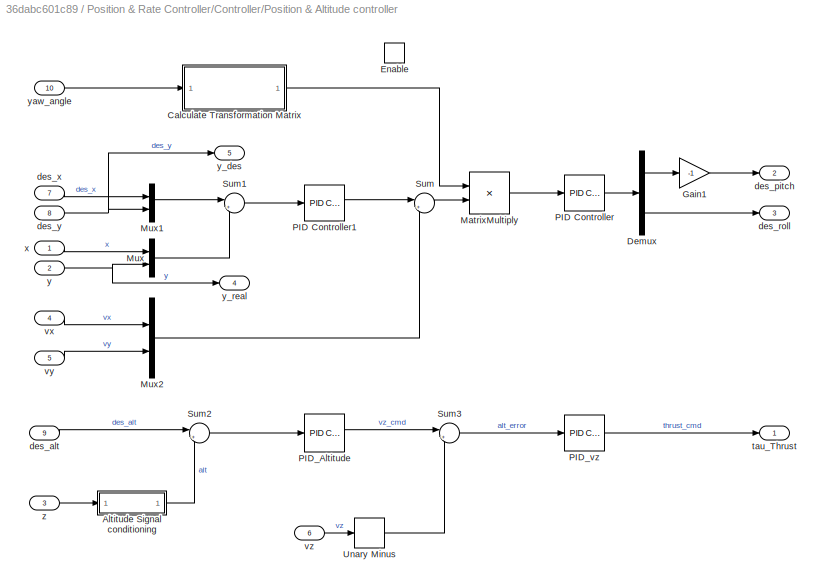
BLOCK [SubSystem] Position & Rate Controller/Controller/Position & Altitude controller
BLOCK [SubSystem] Position & Rate Controller/Controller/Position & Altitude controller/Altitude Signal conditioning
BLOCK [Constant] Position & Rate Controller/Controller/Position & Altitude controller/Altitude Signal conditioning/Constant
  Value = 0
BLOCK [Gain] Position & Rate Controller/Controller/Position & Altitude controller/Altitude Signal conditioning/Gain1
  Gain = -1
BLOCK [Reference] Position & Rate Controller/Controller/Position & Altitude controller/Altitude Signal conditioning/Saturation Dynamic  REF=simulink/Discontinuities/Saturation
Dynamic
  SourceBlock = simulink/Discontinuities/Saturation\nDynamic
  SourceType = Saturation Dynamic
BLOCK [Outport] Position & Rate Controller/Controller/Position & Altitude controller/Altitude Signal conditioning/z
BLOCK [Inport] Position & Rate Controller/Controller/Position & Altitude controller/Altitude Signal conditioning/z_In
BLOCK [SubSystem] Position & Rate Controller/Controller/Position & Altitude controller/Calculate Transformation Matrix
BLOCK [Gain] Position & Rate Controller/Controller/Position & Altitude controller/Calculate Transformation Matrix/Gain
  Gain = -1
BLOCK [Concatenate] Position & Rate Controller/Controller/Position & Altitude controller/Calculate Transformation Matrix/Matrix Concatenate
  Mode = Multidimensional array
BLOCK [Mux] Position & Rate Controller/Controller/Position & Altitude controller/Calculate Transformation Matrix/Mux
  DisplayOption = bar
  Inputs = 2
BLOCK [Mux] Position & Rate Controller/Controller/Position & Altitude controller/Calculate Transformation Matrix/Mux1
  DisplayOption = bar
  Inputs = 2
BLOCK [Outport] Position & Rate Controller/Controller/Position & Altitude controller/Calculate Transformation Matrix/R
BLOCK [Reshape] Position & Rate Controller/Controller/Position & Altitude controller/Calculate Transformation Matrix/Reshape
  OutputDimensionality = Row vector (2-D)
BLOCK [Reshape] Position & Rate Controller/Controller/Position & Altitude controller/Calculate Transformation Matrix/Reshape1
  OutputDimensionality = Row vector (2-D)
BLOCK [Trigonometry] Position & Rate Controller/Controller/Position & Altitude controller/Calculate Transformation Matrix/SinCos
  Operator = sincos
BLOCK [Math] Position & Rate Controller/Controller/Position & Altitude controller/Calculate Transformation Matrix/Transpose
  Operator = transpose
BLOCK [Inport] Position & Rate Controller/Controller/Position & Altitude controller/Calculate Transformation Matrix/theta
BLOCK [Demux] Position & Rate Controller/Controller/Position & Altitude controller/Demux
  Outputs = 2
BLOCK [EnablePort] Position & Rate Controller/Controller/Position & Altitude controller/Enable
BLOCK [Gain] Position & Rate Controller/Controller/Position & Altitude controller/Gain1
  Gain = -1
BLOCK [Product] Position & Rate Controller/Controller/Position & Altitude controller/MatrixMultiply
  Multiplication = Matrix(*)
BLOCK [Mux] Position & Rate Controller/Controller/Position & Altitude controller/Mux
  DisplayOption = bar
  Inputs = 2
BLOCK [Mux] Position & Rate Controller/Controller/Position & Altitude controller/Mux1
  DisplayOption = bar
  Inputs = 2
BLOCK [Mux] Position & Rate Controller/Controller/Position & Altitude controller/Mux2
  DisplayOption = bar
  Inputs = 2
BLOCK [Reference] Position & Rate Controller/Controller/Position & Altitude controller/PID Controller  REF=slpidlib/PID Controller
  SourceBlock = slpidlib/PID Controller
  SourceType = PID 1dof
BLOCK [Reference] Position & Rate Controller/Controller/Position & Altitude controller/PID Controller1  REF=slpidlib/PID Controller
  SourceBlock = slpidlib/PID Controller
  SourceType = PID 1dof
BLOCK [Reference] Position & Rate Controller/Controller/Position & Altitude controller/PID_Altitude  REF=slpidlib/PID Controller
  SourceBlock = slpidlib/PID Controller
  SourceType = PID 1dof
BLOCK [Reference] Position & Rate Controller/Controller/Position & Altitude controller/PID_vz  REF=slpidlib/PID Controller
  SourceBlock = slpidlib/PID Controller
  SourceType = PID 1dof
BLOCK [Sum] Position & Rate Controller/Controller/Position & Altitude controller/Sum
  Inputs = |+-
BLOCK [Sum] Position & Rate Controller/Controller/Position & Altitude controller/Sum1
  Inputs = |+-
BLOCK [Sum] Position & Rate Controller/Controller/Position & Altitude controller/Sum2
  Inputs = |+-
BLOCK [Sum] Position & Rate Controller/Controller/Position & Altitude controller/Sum3
  Inputs = |+-
BLOCK [UnaryMinus] Position & Rate Controller/Controller/Position & Altitude controller/Unary Minus
BLOCK [Inport] Position & Rate Controller/Controller/Position & Altitude controller/des_alt
  Port = 9
BLOCK [Outport] Position & Rate Controller/Controller/Position & Altitude controller/des_pitch
  Port = 2
BLOCK [Outport] Position & Rate Controller/Controller/Position & Altitude controller/des_roll
  Port = 3
BLOCK [Inport] Position & Rate Controller/Controller/Position & Altitude controller/des_x
  Port = 7
BLOCK [Inport] Position & Rate Controller/Controller/Position & Altitude controller/des_y
  Port = 8
BLOCK [Outport] Position & Rate Controller/Controller/Position & Altitude controller/tau_Thrust
BLOCK [Inport] Position & Rate Controller/Controller/Position & Altitude controller/vx
  Port = 4
BLOCK [Inport] Position & Rate Controller/Controller/Position & Altitude controller/vy
  Port = 5
BLOCK [Inport] Position & Rate Controller/Controller/Position & Altitude controller/vz
  Port = 6
BLOCK [Inport] Position & Rate Controller/Controller/Position & Altitude controller/x
BLOCK [Inport] Position & Rate Controller/Controller/Position & Altitude controller/y
  Port = 2
BLOCK [Outport] Position & Rate Controller/Controller/Position & Altitude controller/y_des
  Port = 5
BLOCK [Outport] Position & Rate Controller/Controller/Position & Altitude controller/y_real
  Port = 4
BLOCK [Inport] Position & Rate Controller/Controller/Position & Altitude controller/yaw_angle
  Port = 10
BLOCK [Inport] Position & Rate Controller/Controller/Position & Altitude controller/z
  Port = 3
BLOCK [Inport] Position & Rate Controller/Controller/Quaternion
  Port = 3
BLOCK [SubSystem] Position & Rate Controller/Controller/Quaternion Validity Check
BLOCK [Constant] Position & Rate Controller/Controller/Quaternion Validity Check/Constant
  SampleTime = -1
  Value = [1 0 0 0]
BLOCK [Inport] Position & Rate Controller/Controller/Quaternion Validity Check/In1
BLOCK [Reference] Position & Rate Controller/Controller/Quaternion Validity Check/Quaternion Norm  REF=sharedutil/Quaternion
Norm
  SourceBlock = sharedutil/Quaternion\nNorm
  SourceType = Quaternion Norm
BLOCK [Switch] Position & Rate Controller/Controller/Quaternion Validity Check/Switch
  Criteria = u2 > Threshold
  InputSameDT = off
  SaturateOnIntegerOverflow = off
BLOCK [Outport] Position & Rate Controller/Controller/Quaternion Validity Check/Valid quat
BLOCK [Reference] Position & Rate Controller/Controller/Quaternions to Rotation Angles  REF=sharedtransform/Quaternions to Rotation Angles
  AttributesFormatString = Rotation Order: %<rotationOrder>
  SourceBlock = sharedtransform/Quaternions to Rotation Angles
  SourceType = Quat2Ang
BLOCK [Selector] Position & Rate Controller/Controller/Selector
  IndexOptions = Index vector (dialog)
  Indices = [1]
  InputPortWidth = 3
  OutputSizes = 1
BLOCK [Inport] Position & Rate Controller/Controller/Velocity
  Port = 2
BLOCK [Outport] Position & Rate Controller/Controller/tau_Pitch
  Port = 3
BLOCK [Outport] Position & Rate Controller/Controller/tau_Roll 
  Port = 4
BLOCK [Outport] Position & Rate Controller/Controller/tau_Thrust
BLOCK [Outport] Position & Rate Controller/Controller/tau_Yaw
  Port = 2
BLOCK [Outport] Position & Rate Controller/Controller/y_des
  Port = 6
BLOCK [Outport] Position & Rate Controller/Controller/y_real
  Port = 5
BLOCK [Inport] Position & Rate Controller/Current Position
BLOCK [Inport] Position & Rate Controller/Current Velocity
  Port = 2
BLOCK [Inport] Position & Rate Controller/Desired Position
  Port = 5
BLOCK [Inport] Position & Rate Controller/Quaternion
  Port = 3
BLOCK [Outport] Position & Rate Controller/tau_Pitch
  Port = 3
BLOCK [Outport] Position & Rate Controller/tau_Roll 
  Port = 4
BLOCK [Outport] Position & Rate Controller/tau_Thrust
BLOCK [Outport] Position & Rate Controller/tau_Yaw
  Port = 2
BLOCK [Outport] Position & Rate Controller/y_des
  Port = 6
BLOCK [Outport] Position & Rate Controller/y_real
  Port = 5
BLOCK [ToWorkspace] To Workspace
  Commented = on
  FixptAsFi = on
  MaxDataPoints = inf
  SampleTime = -1
  VariableName = FeatureGenerate
BLOCK [ToWorkspace] To Workspace1
  FixptAsFi = on
  MaxDataPoints = inf
  SampleTime = -1
  SaveFormat = Structure With Time
  VariableName = Predizioni
ANNOTATION (root): I blocchi Buffer accumulano dati a 100 Hz → ogni 128 campioni generano un frame La funzione di estrazione delle feature riceve un frame completo → calcola 10 feature Il classificatore riceve 10 feature ogni 1.28 secondi → restituisce un'etichetta
ANNOTATION (root): <copyright redacted>
ANNOTATION Navigation/Quadcopter Navigation Algorithm/Manual Waypoints from Simulink Dashboard: Desired XY Position, Altitude and Yaw can be changed by these sliders
ANNOTATION Navigation/Quadcopter Navigation Algorithm/Path Correction from Onboard Computer/Guidance Subsystem/Land/Ensure Smooth descend during Land: This ensures that the landing process is smooth by continously decrementing the altitude, instead of a sudden fall.
ANNOTATION Navigation/Quadcopter Navigation Algorithm/Path Correction from Onboard Computer/Guidance Subsystem/Land/Ensure Smooth descend during Land: This logic takes care of the case when Land waypoint altitude is not 0
ANNOTATION Navigation/Quadcopter Navigation Algorithm/Read waypoint from QGroundControl Mission/Guidance Subsystem/Land/Ensure Smooth descend during Land: This ensures that the landing process is smooth by continously decrementing the altitude, instead of a sudden fall.
ANNOTATION Navigation/Quadcopter Navigation Algorithm/Read waypoint from QGroundControl Mission/Guidance Subsystem/Land/Ensure Smooth descend during Land: This logic takes care of the case when Land waypoint altitude is not 0
LINE Actuator/Custom Mixer and Actuator Write Block/Armed:1 -> Actuator/Custom Mixer and Actuator Write Block/PX4 Actuator Write:1
NET Actuator/Custom Mixer and Actuator Write Block/Data Type Conversion:1 -> Actuator/Custom Mixer and Actuator Write Block/Demux:1, Actuator/Custom Mixer and Actuator Write Block/Selector:1
LINE Actuator/Custom Mixer and Actuator Write Block/Demux:1 -> Actuator/Custom Mixer and Actuator Write Block/PX4 Actuator Write:2
LINE Actuator/Custom Mixer and Actuator Write Block/Demux:2 -> Actuator/Custom Mixer and Actuator Write Block/PX4 Actuator Write:3
LINE Actuator/Custom Mixer and Actuator Write Block/Demux:3 -> Actuator/Custom Mixer and Actuator Write Block/PX4 Actuator Write:4
LINE Actuator/Custom Mixer and Actuator Write Block/Demux:4 -> Actuator/Custom Mixer and Actuator Write Block/PX4 Actuator Write:5
LINE Actuator/Custom Mixer and Actuator Write Block/Mixer matrix:1 -> Actuator/Custom Mixer and Actuator Write Block/Product1:1
LINE Actuator/Custom Mixer and Actuator Write Block/Mux1:1 -> Actuator/Custom Mixer and Actuator Write Block/Product1:2
NET Actuator/Custom Mixer and Actuator Write Block/Product1:1 -> Actuator/Custom Mixer and Actuator Write Block/Display:1, Actuator/Custom Mixer and Actuator Write Block/Saturation:1
LINE Actuator/Custom Mixer and Actuator Write Block/Saturation:1 -> Actuator/Custom Mixer and Actuator Write Block/Data Type Conversion:1
NET Actuator/Custom Mixer and Actuator Write Block/Selector:1 -> Actuator/Custom Mixer and Actuator Write Block/To Workspace:1, Actuator/Custom Mixer and Actuator Write Block/actuator_1:1
LINE Actuator/Custom Mixer and Actuator Write Block/tau_Pitch:1 -> Actuator/Custom Mixer and Actuator Write Block/Mux1:2
LINE Actuator/Custom Mixer and Actuator Write Block/tau_Roll:1 -> Actuator/Custom Mixer and Actuator Write Block/Mux1:3
LINE Actuator/Custom Mixer and Actuator Write Block/tau_Thrust:1 -> Actuator/Custom Mixer and Actuator Write Block/Mux1:1
LINE Actuator/Custom Mixer and Actuator Write Block/tau_yaw:1 -> Actuator/Custom Mixer and Actuator Write Block/Mux1:4
LINE Actuator/PX4 Mixer and actuator_controls_0 topic/Armed:1 -> Actuator/PX4 Mixer and actuator_controls_0 topic/Terminator:1
LINE Actuator/PX4 Mixer and actuator_controls_0 topic/Bus Assignment:1 -> Actuator/PX4 Mixer and actuator_controls_0 topic/PX4 uORB Write:1
LINE Actuator/PX4 Mixer and actuator_controls_0 topic/Constant:1 -> Actuator/PX4 Mixer and actuator_controls_0 topic/Mux:5
LINE Actuator/PX4 Mixer and actuator_controls_0 topic/Data Type Conversion:1 -> Actuator/PX4 Mixer and actuator_controls_0 topic/Bus Assignment:2
LINE Actuator/PX4 Mixer and actuator_controls_0 topic/Mux:1 -> Actuator/PX4 Mixer and actuator_controls_0 topic/Data Type Conversion:1
LINE Actuator/PX4 Mixer and actuator_controls_0 topic/PX4 uORB Message:1 -> Actuator/PX4 Mixer and actuator_controls_0 topic/Bus Assignment:1
LINE Actuator/PX4 Mixer and actuator_controls_0 topic/tau_Pitch:1 -> Actuator/PX4 Mixer and actuator_controls_0 topic/Mux:2
LINE Actuator/PX4 Mixer and actuator_controls_0 topic/tau_Roll:1 -> Actuator/PX4 Mixer and actuator_controls_0 topic/Mux:1
LINE Actuator/PX4 Mixer and actuator_controls_0 topic/tau_Thrust:1 -> Actuator/PX4 Mixer and actuator_controls_0 topic/Mux:4
LINE Actuator/PX4 Mixer and actuator_controls_0 topic/tau_yaw:1 -> Actuator/PX4 Mixer and actuator_controls_0 topic/Mux:3
LINE Actuator:1 -> Buffer1:1
LINE Buffer1:1 -> MATLAB Function5:3
LINE Buffer2:1 -> MATLAB Function5:1
LINE Buffer3:1 -> MATLAB Function5:4
LINE Buffer:1 -> MATLAB Function5:2
LINE Estimator Output/Abs:1 -> Estimator Output/res_y:1
LINE Estimator Output/Bus Selector1:1 -> Estimator Output/Data Type Conversion2:1
LINE Estimator Output/Bus Selector2:1 -> Estimator Output/Data Type Conversion:1
LINE Estimator Output/Bus Selector3:1 -> Estimator Output/Armed:1
LINE Estimator Output/Bus Selector4:1 -> Estimator Output/Data Type Conversion3:1
LINE Estimator Output/Bus Selector5:1 -> Estimator Output/Data Type Conversion4:1
LINE Estimator Output/Bus Selector6:1 -> Estimator Output/Data Type Conversion5:1
LINE Estimator Output/Bus Selector:1 -> Estimator Output/Data Type Conversion1:1
NET Estimator Output/Data Type Conversion1:1 -> Estimator Output/Selector1:1, Estimator Output/Selector2:1, Estimator Output/Selector:1
LINE Estimator Output/Data Type Conversion2:1 -> Estimator Output/Ang Rate:1
LINE Estimator Output/Data Type Conversion3:1 -> Estimator Output/Selector3:1
LINE Estimator Output/Data Type Conversion4:1 -> Estimator Output/Selector4:1
LINE Estimator Output/Data Type Conversion5:1 -> Estimator Output/Subtract:1
LINE Estimator Output/Data Type Conversion:1 -> Estimator Output/Quaternion :1
LINE Estimator Output/Demux:1 -> Estimator Output/acc_x_reale:1
LINE Estimator Output/Demux:2 -> Estimator Output/acc_y_reale:1
LINE Estimator Output/PX4 uORB Read1:1 -> Estimator Output/Terminator2:1
LINE Estimator Output/PX4 uORB Read1:2 -> Estimator Output/Bus Selector1:1
LINE Estimator Output/PX4 uORB Read2:1 -> Estimator Output/Terminator3:1
LINE Estimator Output/PX4 uORB Read2:2 -> Estimator Output/Bus Selector3:1
LINE Estimator Output/Selector1:1 -> Estimator Output/Estimated Velocity:1
LINE Estimator Output/Selector2:1 -> Estimator Output/Estimated xyzYaw:1
LINE Estimator Output/Selector3:1 -> Estimator Output/Demux:1
LINE Estimator Output/Selector4:1 -> Estimator Output/Subtract:2
LINE Estimator Output/Selector:1 -> Estimator Output/Estimated xyz:1
LINE Estimator Output/Subtract:1 -> Estimator Output/Abs:1
LINE Estimator Output/trajectory_setpoint:1 -> Estimator Output/Terminator5:1
LINE Estimator Output/trajectory_setpoint:2 -> Estimator Output/Bus Selector5:1
LINE Estimator Output/vehicle_acceleration:1 -> Estimator Output/Terminator4:1
LINE Estimator Output/vehicle_acceleration:2 -> Estimator Output/Bus Selector4:1
LINE Estimator Output/vehicle_attitude:1 -> Estimator Output/Terminator1:1
LINE Estimator Output/vehicle_attitude:2 -> Estimator Output/Bus Selector2:1
LINE Estimator Output/vehicle_local_pos:1 -> Estimator Output/Terminator:1
LINE Estimator Output/vehicle_local_pos:2 -> Estimator Output/Bus Selector:1
LINE Estimator Output/vehicle_local_position:1 -> Estimator Output/Terminator6:1
LINE Estimator Output/vehicle_local_position:2 -> Estimator Output/Bus Selector6:1
LINE Estimator Output:1 -> Position & Rate Controller:1
LINE Estimator Output:2 -> Position & Rate Controller:2
LINE Estimator Output:3 -> Position & Rate Controller:3
LINE Estimator Output:4 -> Position & Rate Controller:4
LINE Estimator Output:5 -> Navigation:1
NET Estimator Output:6 -> Actuator:5, Position & Rate Controller:6
LINE Estimator Output:7 -> Buffer:1
LINE Estimator Output:8 -> Buffer2:1
LINE Estimator Output:9 -> Buffer3:1
LINE MATLAB Function5:1 -> To Workspace1:1
NET MATLAB Function:1 -> MATLAB Function1:1, To Workspace:1
LINE Navigation/Estimated Position & Yaw:1 -> Navigation/Quadcopter Navigation Algorithm:1
LINE Navigation/Quadcopter Navigation Algorithm/Manual Waypoints from Simulink Dashboard/Current Position:1 -> Navigation/Quadcopter Navigation Algorithm/Manual Waypoints from Simulink Dashboard/Terminator:1
LINE Navigation/Quadcopter Navigation Algorithm/Manual Waypoints from Simulink Dashboard/Degrees to Radians:1 -> Navigation/Quadcopter Navigation Algorithm/Manual Waypoints from Simulink Dashboard/Mux:4
LINE Navigation/Quadcopter Navigation Algorithm/Manual Waypoints from Simulink Dashboard/Gain:1 -> Navigation/Quadcopter Navigation Algorithm/Manual Waypoints from Simulink Dashboard/Mux:3
LINE Navigation/Quadcopter Navigation Algorithm/Manual Waypoints from Simulink Dashboard/Manual Switch1:1 -> Navigation/Quadcopter Navigation Algorithm/Manual Waypoints from Simulink Dashboard/Mux:2
LINE Navigation/Quadcopter Navigation Algorithm/Manual Waypoints from Simulink Dashboard/Manual Switch:1 -> Navigation/Quadcopter Navigation Algorithm/Manual Waypoints from Simulink Dashboard/Mux:1
LINE Navigation/Quadcopter Navigation Algorithm/Manual Waypoints from Simulink Dashboard/Mux:1 -> Navigation/Quadcopter Navigation Algorithm/Manual Waypoints from Simulink Dashboard/Desired Position:1
LINE Navigation/Quadcopter Navigation Algorithm/Manual Waypoints from Simulink Dashboard/Sine Wave1:1 -> Navigation/Quadcopter Navigation Algorithm/Manual Waypoints from Simulink Dashboard/Manual Switch1:2
LINE Navigation/Quadcopter Navigation Algorithm/Manual Waypoints from Simulink Dashboard/Sine Wave:1 -> Navigation/Quadcopter Navigation Algorithm/Manual Waypoints from Simulink Dashboard/Manual Switch:2
LINE Navigation/Quadcopter Navigation Algorithm/Manual Waypoints from Simulink Dashboard/desX:1 -> Navigation/Quadcopter Navigation Algorithm/Manual Waypoints from Simulink Dashboard/Manual Switch:1
LINE Navigation/Quadcopter Navigation Algorithm/Manual Waypoints from Simulink Dashboard/desY:1 -> Navigation/Quadcopter Navigation Algorithm/Manual Waypoints from Simulink Dashboard/Manual Switch1:1
LINE Navigation/Quadcopter Navigation Algorithm/Manual Waypoints from Simulink Dashboard/des_alt:1 -> Navigation/Quadcopter Navigation Algorithm/Manual Waypoints from Simulink Dashboard/Gain:1
LINE Navigation/Quadcopter Navigation Algorithm/Manual Waypoints from Simulink Dashboard/des_yaw:1 -> Navigation/Quadcopter Navigation Algorithm/Manual Waypoints from Simulink Dashboard/Degrees to Radians:1
LINE Navigation/Quadcopter Navigation Algorithm/Manual Waypoints/Constant1:1 -> Navigation/Quadcopter Navigation Algorithm/Manual Waypoints/Waypoint Follower:2
LINE Navigation/Quadcopter Navigation Algorithm/Manual Waypoints/Constant2:1 -> Navigation/Quadcopter Navigation Algorithm/Manual Waypoints/Waypoint Follower:3
LINE Navigation/Quadcopter Navigation Algorithm/Manual Waypoints/Constant3:1 -> Navigation/Quadcopter Navigation Algorithm/Manual Waypoints/Mux:2
NET Navigation/Quadcopter Navigation Algorithm/Manual Waypoints/Current Position:1 -> Navigation/Quadcopter Navigation Algorithm/Manual Waypoints/Subsystem:1, Navigation/Quadcopter Navigation Algorithm/Manual Waypoints/Waypoint Follower:1
LINE Navigation/Quadcopter Navigation Algorithm/Manual Waypoints/Mux:1 -> Navigation/Quadcopter Navigation Algorithm/Manual Waypoints/Desired Position:1
NET Navigation/Quadcopter Navigation Algorithm/Manual Waypoints/Subsystem/Add:1 -> Navigation/Quadcopter Navigation Algorithm/Manual Waypoints/Subsystem/Saturation Dynamic1:2, Navigation/Quadcopter Navigation Algorithm/Manual Waypoints/Subsystem/Saturation Dynamic1:3
LINE Navigation/Quadcopter Navigation Algorithm/Manual Waypoints/Subsystem/Constant2:1 -> Navigation/Quadcopter Navigation Algorithm/Manual Waypoints/Subsystem/Saturation Dynamic1:1
LINE Navigation/Quadcopter Navigation Algorithm/Manual Waypoints/Subsystem/Constant:1 -> Navigation/Quadcopter Navigation Algorithm/Manual Waypoints/Subsystem/Add:2
LINE Navigation/Quadcopter Navigation Algorithm/Manual Waypoints/Subsystem/Gain:1 -> Navigation/Quadcopter Navigation Algorithm/Manual Waypoints/Subsystem/Add:1
LINE Navigation/Quadcopter Navigation Algorithm/Manual Waypoints/Subsystem/Lookahead Point:1 -> Navigation/Quadcopter Navigation Algorithm/Manual Waypoints/Subsystem/Selector1:1
LINE Navigation/Quadcopter Navigation Algorithm/Manual Waypoints/Subsystem/Mux:1 -> Navigation/Quadcopter Navigation Algorithm/Manual Waypoints/Subsystem/des_landing_pos:1
LINE Navigation/Quadcopter Navigation Algorithm/Manual Waypoints/Subsystem/Saturation Dynamic1:1 -> Navigation/Quadcopter Navigation Algorithm/Manual Waypoints/Subsystem/Mux:2
LINE Navigation/Quadcopter Navigation Algorithm/Manual Waypoints/Subsystem/Selector1:1 -> Navigation/Quadcopter Navigation Algorithm/Manual Waypoints/Subsystem/Mux:1
LINE Navigation/Quadcopter Navigation Algorithm/Manual Waypoints/Subsystem/Selector:1 -> Navigation/Quadcopter Navigation Algorithm/Manual Waypoints/Subsystem/Gain:1
LINE Navigation/Quadcopter Navigation Algorithm/Manual Waypoints/Subsystem/curr_xyzYaw:1 -> Navigation/Quadcopter Navigation Algorithm/Manual Waypoints/Subsystem/Selector:1
LINE Navigation/Quadcopter Navigation Algorithm/Manual Waypoints/Subsystem:1 -> Navigation/Quadcopter Navigation Algorithm/Manual Waypoints/Switch:1
LINE Navigation/Quadcopter Navigation Algorithm/Manual Waypoints/Switch:1 -> Navigation/Quadcopter Navigation Algorithm/Manual Waypoints/Mux:1
NET Navigation/Quadcopter Navigation Algorithm/Manual Waypoints/Waypoint Follower:1 -> Navigation/Quadcopter Navigation Algorithm/Manual Waypoints/Subsystem:2, Navigation/Quadcopter Navigation Algorithm/Manual Waypoints/Switch:3
LINE Navigation/Quadcopter Navigation Algorithm/Manual Waypoints/Waypoint Follower:2 -> Navigation/Quadcopter Navigation Algorithm/Manual Waypoints/Terminator2:1
LINE Navigation/Quadcopter Navigation Algorithm/Manual Waypoints/Waypoint Follower:3 -> Navigation/Quadcopter Navigation Algorithm/Manual Waypoints/Terminator1:1
LINE Navigation/Quadcopter Navigation Algorithm/Manual Waypoints/Waypoint Follower:4 -> Navigation/Quadcopter Navigation Algorithm/Manual Waypoints/Terminator4:1
LINE Navigation/Quadcopter Navigation Algorithm/Manual Waypoints/Waypoint Follower:5 -> Navigation/Quadcopter Navigation Algorithm/Manual Waypoints/Switch:2
LINE Navigation/Quadcopter Navigation Algorithm/Path Correction from Onboard Computer/Bus Selector1:1 -> Navigation/Quadcopter Navigation Algorithm/Path Correction from Onboard Computer/Selector:1
LINE Navigation/Quadcopter Navigation Algorithm/Path Correction from Onboard Computer/Bus Selector:1 -> Navigation/Quadcopter Navigation Algorithm/Path Correction from Onboard Computer/Cast:1
LINE Navigation/Quadcopter Navigation Algorithm/Path Correction from Onboard Computer/Bus Selector:2 -> Navigation/Quadcopter Navigation Algorithm/Path Correction from Onboard Computer/Cast1:1
LINE Navigation/Quadcopter Navigation Algorithm/Path Correction from Onboard Computer/Cast1:1 -> Navigation/Quadcopter Navigation Algorithm/Path Correction from Onboard Computer/Guidance Subsystem:10
LINE Navigation/Quadcopter Navigation Algorithm/Path Correction from Onboard Computer/Cast:1 -> Navigation/Quadcopter Navigation Algorithm/Path Correction from Onboard Computer/Guidance Subsystem:9
LINE Navigation/Quadcopter Navigation Algorithm/Path Correction from Onboard Computer/Current Position:1 -> Navigation/Quadcopter Navigation Algorithm/Path Correction from Onboard Computer/Guidance Subsystem:8
LINE Navigation/Quadcopter Navigation Algorithm/Path Correction from Onboard Computer/Define WP Yaw Values /Bus Selector1:1 -> Navigation/Quadcopter Navigation Algorithm/Path Correction from Onboard Computer/Define WP Yaw Values /Data Type Conversion2:1
LINE Navigation/Quadcopter Navigation Algorithm/Path Correction from Onboard Computer/Define WP Yaw Values /Bus Selector2:1 -> Navigation/Quadcopter Navigation Algorithm/Path Correction from Onboard Computer/Define WP Yaw Values /Data Type Conversion:1
LINE Navigation/Quadcopter Navigation Algorithm/Path Correction from Onboard Computer/Define WP Yaw Values /Bus Selector2:2 -> Navigation/Quadcopter Navigation Algorithm/Path Correction from Onboard Computer/Define WP Yaw Values /Data Type Conversion1:1
LINE Navigation/Quadcopter Navigation Algorithm/Path Correction from Onboard Computer/Define WP Yaw Values /Bus Selector:1 -> Navigation/Quadcopter Navigation Algorithm/Path Correction from Onboard Computer/Define WP Yaw Values /Selector:1
LINE Navigation/Quadcopter Navigation Algorithm/Path Correction from Onboard Computer/Define WP Yaw Values /Data Type Conversion1:1 -> Navigation/Quadcopter Navigation Algorithm/Path Correction from Onboard Computer/Define WP Yaw Values /Next WP Yaw:1
LINE Navigation/Quadcopter Navigation Algorithm/Path Correction from Onboard Computer/Define WP Yaw Values /Data Type Conversion2:1 -> Navigation/Quadcopter Navigation Algorithm/Path Correction from Onboard Computer/Define WP Yaw Values /Current WP Yaw:1
LINE Navigation/Quadcopter Navigation Algorithm/Path Correction from Onboard Computer/Define WP Yaw Values /Data Type Conversion:1 -> Navigation/Quadcopter Navigation Algorithm/Path Correction from Onboard Computer/Define WP Yaw Values /Previous WP Yaw:1
LINE Navigation/Quadcopter Navigation Algorithm/Path Correction from Onboard Computer/Define WP Yaw Values /Selector:1 -> Navigation/Quadcopter Navigation Algorithm/Path Correction from Onboard Computer/Define WP Yaw Values /Bus Selector1:1
LINE Navigation/Quadcopter Navigation Algorithm/Path Correction from Onboard Computer/Define WP Yaw Values /Trajectory Waypoint:1 -> Navigation/Quadcopter Navigation Algorithm/Path Correction from Onboard Computer/Define WP Yaw Values /Bus Selector:1
LINE Navigation/Quadcopter Navigation Algorithm/Path Correction from Onboard Computer/Define WP Yaw Values /position setpoint:1 -> Navigation/Quadcopter Navigation Algorithm/Path Correction from Onboard Computer/Define WP Yaw Values /Bus Selector2:1
LINE Navigation/Quadcopter Navigation Algorithm/Path Correction from Onboard Computer/Define WP Yaw Values :1 -> Navigation/Quadcopter Navigation Algorithm/Path Correction from Onboard Computer/NaN Check3:1
LINE Navigation/Quadcopter Navigation Algorithm/Path Correction from Onboard Computer/Define WP Yaw Values :2 -> Navigation/Quadcopter Navigation Algorithm/Path Correction from Onboard Computer/NaN Check4:1
LINE Navigation/Quadcopter Navigation Algorithm/Path Correction from Onboard Computer/Define WP Yaw Values :3 -> Navigation/Quadcopter Navigation Algorithm/Path Correction from Onboard Computer/NaN Check5:1
NET Navigation/Quadcopter Navigation Algorithm/Path Correction from Onboard Computer/Guidance Subsystem/Current Position:1 -> Navigation/Quadcopter Navigation Algorithm/Path Correction from Onboard Computer/Guidance Subsystem/IDLE:1, Navigation/Quadcopter Navigation Algorithm/Path Correction from Onboard Computer/Guidance Subsystem/Land:1, Navigation/Quadcopter Navigation Algorithm/Path Correction from Onboard Computer/Guidance Subsystem/Take-off:1, Navigation/Quadcopter Navigation Algorithm/Path Correction from Onboard Computer/Guidance Subsystem/Waypoint:1
LINE Navigation/Quadcopter Navigation Algorithm/Path Correction from Onboard Computer/Guidance Subsystem/Current WP Yaw:1 -> Navigation/Quadcopter Navigation Algorithm/Path Correction from Onboard Computer/Guidance Subsystem/Waypoint:7
NET Navigation/Quadcopter Navigation Algorithm/Path Correction from Onboard Computer/Guidance Subsystem/Current WP:1 -> Navigation/Quadcopter Navigation Algorithm/Path Correction from Onboard Computer/Guidance Subsystem/Land:2, Navigation/Quadcopter Navigation Algorithm/Path Correction from Onboard Computer/Guidance Subsystem/Take-off:2, Navigation/Quadcopter Navigation Algorithm/Path Correction from Onboard Computer/Guidance Subsystem/Waypoint:3
NET Navigation/Quadcopter Navigation Algorithm/Path Correction from Onboard Computer/Guidance Subsystem/IDLE/Current Position:1 -> Navigation/Quadcopter Navigation Algorithm/Path Correction from Onboard Computer/Guidance Subsystem/IDLE/Selector1:1, Navigation/Quadcopter Navigation Algorithm/Path Correction from Onboard Computer/Guidance Subsystem/IDLE/Selector:1
LINE Navigation/Quadcopter Navigation Algorithm/Path Correction from Onboard Computer/Guidance Subsystem/IDLE/Maintain Current Yaw during IDLE/Constant:1 -> Navigation/Quadcopter Navigation Algorithm/Path Correction from Onboard Computer/Guidance Subsystem/IDLE/Maintain Current Yaw during IDLE/Delay:1
LINE Navigation/Quadcopter Navigation Algorithm/Path Correction from Onboard Computer/Guidance Subsystem/IDLE/Maintain Current Yaw during IDLE/Delay:1 -> Navigation/Quadcopter Navigation Algorithm/Path Correction from Onboard Computer/Guidance Subsystem/IDLE/Maintain Current Yaw during IDLE/Enabled Subsystem2:enable
LINE Navigation/Quadcopter Navigation Algorithm/Path Correction from Onboard Computer/Guidance Subsystem/IDLE/Maintain Current Yaw during IDLE/Enabled Subsystem2/yaw_In:1 -> Navigation/Quadcopter Navigation Algorithm/Path Correction from Onboard Computer/Guidance Subsystem/IDLE/Maintain Current Yaw during IDLE/Enabled Subsystem2/yaw_Out:1
LINE Navigation/Quadcopter Navigation Algorithm/Path Correction from Onboard Computer/Guidance Subsystem/IDLE/Maintain Current Yaw during IDLE/Enabled Subsystem2:1 -> Navigation/Quadcopter Navigation Algorithm/Path Correction from Onboard Computer/Guidance Subsystem/IDLE/Maintain Current Yaw during IDLE/yaw_Out:1
LINE Navigation/Quadcopter Navigation Algorithm/Path Correction from Onboard Computer/Guidance Subsystem/IDLE/Maintain Current Yaw during IDLE/yaw_In:1 -> Navigation/Quadcopter Navigation Algorithm/Path Correction from Onboard Computer/Guidance Subsystem/IDLE/Maintain Current Yaw during IDLE/Enabled Subsystem2:1
LINE Navigation/Quadcopter Navigation Algorithm/Path Correction from Onboard Computer/Guidance Subsystem/IDLE/Maintain Current Yaw during IDLE:1 -> Navigation/Quadcopter Navigation Algorithm/Path Correction from Onboard Computer/Guidance Subsystem/IDLE/Mux:2
LINE Navigation/Quadcopter Navigation Algorithm/Path Correction from Onboard Computer/Guidance Subsystem/IDLE/Mux:1 -> Navigation/Quadcopter Navigation Algorithm/Path Correction from Onboard Computer/Guidance Subsystem/IDLE/Reshape1:1
LINE Navigation/Quadcopter Navigation Algorithm/Path Correction from Onboard Computer/Guidance Subsystem/IDLE/Reshape1:1 -> Navigation/Quadcopter Navigation Algorithm/Path Correction from Onboard Computer/Guidance Subsystem/IDLE/x_y_z_yaw:1
LINE Navigation/Quadcopter Navigation Algorithm/Path Correction from Onboard Computer/Guidance Subsystem/IDLE/Selector1:1 -> Navigation/Quadcopter Navigation Algorithm/Path Correction from Onboard Computer/Guidance Subsystem/IDLE/Mux:1
LINE Navigation/Quadcopter Navigation Algorithm/Path Correction from Onboard Computer/Guidance Subsystem/IDLE/Selector:1 -> Navigation/Quadcopter Navigation Algorithm/Path Correction from Onboard Computer/Guidance Subsystem/IDLE/Maintain Current Yaw during IDLE:1
LINE Navigation/Quadcopter Navigation Algorithm/Path Correction from Onboard Computer/Guidance Subsystem/IDLE:1 -> Navigation/Quadcopter Navigation Algorithm/Path Correction from Onboard Computer/Guidance Subsystem/Merge:4
LINE Navigation/Quadcopter Navigation Algorithm/Path Correction from Onboard Computer/Guidance Subsystem/If:1 -> Navigation/Quadcopter Navigation Algorithm/Path Correction from Onboard Computer/Guidance Subsystem/Take-off:ifaction
LINE Navigation/Quadcopter Navigation Algorithm/Path Correction from Onboard Computer/Guidance Subsystem/If:2 -> Navigation/Quadcopter Navigation Algorithm/Path Correction from Onboard Computer/Guidance Subsystem/Land:ifaction
LINE Navigation/Quadcopter Navigation Algorithm/Path Correction from Onboard Computer/Guidance Subsystem/If:3 -> Navigation/Quadcopter Navigation Algorithm/Path Correction from Onboard Computer/Guidance Subsystem/Waypoint:ifaction
LINE Navigation/Quadcopter Navigation Algorithm/Path Correction from Onboard Computer/Guidance Subsystem/If:4 -> Navigation/Quadcopter Navigation Algorithm/Path Correction from Onboard Computer/Guidance Subsystem/IDLE:ifaction
NET Navigation/Quadcopter Navigation Algorithm/Path Correction from Onboard Computer/Guidance Subsystem/Land/Current Position:1 -> Navigation/Quadcopter Navigation Algorithm/Path Correction from Onboard Computer/Guidance Subsystem/Land/Selector2:1, Navigation/Quadcopter Navigation Algorithm/Path Correction from Onboard Computer/Guidance Subsystem/Land/Selector:1
NET Navigation/Quadcopter Navigation Algorithm/Path Correction from Onboard Computer/Guidance Subsystem/Land/Current WP:1 -> Navigation/Quadcopter Navigation Algorithm/Path Correction from Onboard Computer/Guidance Subsystem/Land/Ensure Smooth descend during Land:2, Navigation/Quadcopter Navigation Algorithm/Path Correction from Onboard Computer/Guidance Subsystem/Land/Selector1:1
LINE Navigation/Quadcopter Navigation Algorithm/Path Correction from Onboard Computer/Guidance Subsystem/Land/Delay:1 -> Navigation/Quadcopter Navigation Algorithm/Path Correction from Onboard Computer/Guidance Subsystem/Land/Switch:1
LINE Navigation/Quadcopter Navigation Algorithm/Path Correction from Onboard Computer/Guidance Subsystem/Land/Ensure Smooth descend during Land/Current WP:1 -> Navigation/Quadcopter Navigation Algorithm/Path Correction from Onboard Computer/Guidance Subsystem/Land/Ensure Smooth descend during Land/Selector1:1
NET Navigation/Quadcopter Navigation Algorithm/Path Correction from Onboard Computer/Guidance Subsystem/Land/Ensure Smooth descend during Land/Delay:1 -> Navigation/Quadcopter Navigation Algorithm/Path Correction from Onboard Computer/Guidance Subsystem/Land/Ensure Smooth descend during Land/Switch:1, Navigation/Quadcopter Navigation Algorithm/Path Correction from Onboard Computer/Guidance Subsystem/Land/Ensure Smooth descend during Land/Switch:2
LINE Navigation/Quadcopter Navigation Algorithm/Path Correction from Onboard Computer/Guidance Subsystem/Land/Ensure Smooth descend during Land/Enabled Subsystem/In:1 -> Navigation/Quadcopter Navigation Algorithm/Path Correction from Onboard Computer/Guidance Subsystem/Land/Ensure Smooth descend during Land/Enabled Subsystem/Out:1
LINE Navigation/Quadcopter Navigation Algorithm/Path Correction from Onboard Computer/Guidance Subsystem/Land/Ensure Smooth descend during Land/Enabled Subsystem:1 -> Navigation/Quadcopter Navigation Algorithm/Path Correction from Onboard Computer/Guidance Subsystem/Land/Ensure Smooth descend during Land/Delay:1
LINE Navigation/Quadcopter Navigation Algorithm/Path Correction from Onboard Computer/Guidance Subsystem/Land/Ensure Smooth descend during Land/Gain1:1 -> Navigation/Quadcopter Navigation Algorithm/Path Correction from Onboard Computer/Guidance Subsystem/Land/Ensure Smooth descend during Land/z:1
NET Navigation/Quadcopter Navigation Algorithm/Path Correction from Onboard Computer/Guidance Subsystem/Land/Ensure Smooth descend during Land/Gain2:1 -> Navigation/Quadcopter Navigation Algorithm/Path Correction from Onboard Computer/Guidance Subsystem/Land/Ensure Smooth descend during Land/GreaterThan:1, Navigation/Quadcopter Navigation Algorithm/Path Correction from Onboard Computer/Guidance Subsystem/Land/Ensure Smooth descend during Land/Switch1:1
LINE Navigation/Quadcopter Navigation Algorithm/Path Correction from Onboard Computer/Guidance Subsystem/Land/Ensure Smooth descend during Land/Gain:1 -> Navigation/Quadcopter Navigation Algorithm/Path Correction from Onboard Computer/Guidance Subsystem/Land/Ensure Smooth descend during Land/Switch:3
LINE Navigation/Quadcopter Navigation Algorithm/Path Correction from Onboard Computer/Guidance Subsystem/Land/Ensure Smooth descend during Land/GreaterThan:1 -> Navigation/Quadcopter Navigation Algorithm/Path Correction from Onboard Computer/Guidance Subsystem/Land/Ensure Smooth descend during Land/Switch1:2
LINE Navigation/Quadcopter Navigation Algorithm/Path Correction from Onboard Computer/Guidance Subsystem/Land/Ensure Smooth descend during Land/Previous Waypoints:1 -> Navigation/Quadcopter Navigation Algorithm/Path Correction from Onboard Computer/Guidance Subsystem/Land/Ensure Smooth descend during Land/Selector:1
LINE Navigation/Quadcopter Navigation Algorithm/Path Correction from Onboard Computer/Guidance Subsystem/Land/Ensure Smooth descend during Land/Rate of descent:1 -> Navigation/Quadcopter Navigation Algorithm/Path Correction from Onboard Computer/Guidance Subsystem/Land/Ensure Smooth descend during Land/Subtract:2
LINE Navigation/Quadcopter Navigation Algorithm/Path Correction from Onboard Computer/Guidance Subsystem/Land/Ensure Smooth descend during Land/Selector1:1 -> Navigation/Quadcopter Navigation Algorithm/Path Correction from Onboard Computer/Guidance Subsystem/Land/Ensure Smooth descend during Land/Gain2:1
LINE Navigation/Quadcopter Navigation Algorithm/Path Correction from Onboard Computer/Guidance Subsystem/Land/Ensure Smooth descend during Land/Selector:1 -> Navigation/Quadcopter Navigation Algorithm/Path Correction from Onboard Computer/Guidance Subsystem/Land/Ensure Smooth descend during Land/Gain:1
NET Navigation/Quadcopter Navigation Algorithm/Path Correction from Onboard Computer/Guidance Subsystem/Land/Ensure Smooth descend during Land/Subtract:1 -> Navigation/Quadcopter Navigation Algorithm/Path Correction from Onboard Computer/Guidance Subsystem/Land/Ensure Smooth descend during Land/Enabled Subsystem:1, Navigation/Quadcopter Navigation Algorithm/Path Correction from Onboard Computer/Guidance Subsystem/Land/Ensure Smooth descend during Land/Enabled Subsystem:enable, Navigation/Quadcopter Navigation Algorithm/Path Correction from Onboard Computer/Guidance Subsystem/Land/Ensure Smooth descend during Land/GreaterThan:2, Navigation/Quadcopter Navigation Algorithm/Path Correction from Onboard Computer/Guidance Subsystem/Land/Ensure Smooth descend during Land/Switch1:3
LINE Navigation/Quadcopter Navigation Algorithm/Path Correction from Onboard Computer/Guidance Subsystem/Land/Ensure Smooth descend during Land/Switch1:1 -> Navigation/Quadcopter Navigation Algorithm/Path Correction from Onboard Computer/Guidance Subsystem/Land/Ensure Smooth descend during Land/Gain1:1
LINE Navigation/Quadcopter Navigation Algorithm/Path Correction from Onboard Computer/Guidance Subsystem/Land/Ensure Smooth descend during Land/Switch:1 -> Navigation/Quadcopter Navigation Algorithm/Path Correction from Onboard Computer/Guidance Subsystem/Land/Ensure Smooth descend during Land/Subtract:1
LINE Navigation/Quadcopter Navigation Algorithm/Path Correction from Onboard Computer/Guidance Subsystem/Land/Ensure Smooth descend during Land:1 -> Navigation/Quadcopter Navigation Algorithm/Path Correction from Onboard Computer/Guidance Subsystem/Land/Mux:2
LINE Navigation/Quadcopter Navigation Algorithm/Path Correction from Onboard Computer/Guidance Subsystem/Land/IsNaN:1 -> Navigation/Quadcopter Navigation Algorithm/Path Correction from Onboard Computer/Guidance Subsystem/Land/OR:1
LINE Navigation/Quadcopter Navigation Algorithm/Path Correction from Onboard Computer/Guidance Subsystem/Land/Maintain Current Yaw during Land/Constant:1 -> Navigation/Quadcopter Navigation Algorithm/Path Correction from Onboard Computer/Guidance Subsystem/Land/Maintain Current Yaw during Land/Delay:1
LINE Navigation/Quadcopter Navigation Algorithm/Path Correction from Onboard Computer/Guidance Subsystem/Land/Maintain Current Yaw during Land/Delay:1 -> Navigation/Quadcopter Navigation Algorithm/Path Correction from Onboard Computer/Guidance Subsystem/Land/Maintain Current Yaw during Land/Enabled Subsystem2:enable
LINE Navigation/Quadcopter Navigation Algorithm/Path Correction from Onboard Computer/Guidance Subsystem/Land/Maintain Current Yaw during Land/Enabled Subsystem2/yaw_In:1 -> Navigation/Quadcopter Navigation Algorithm/Path Correction from Onboard Computer/Guidance Subsystem/Land/Maintain Current Yaw during Land/Enabled Subsystem2/yaw_Out:1
LINE Navigation/Quadcopter Navigation Algorithm/Path Correction from Onboard Computer/Guidance Subsystem/Land/Maintain Current Yaw during Land/Enabled Subsystem2:1 -> Navigation/Quadcopter Navigation Algorithm/Path Correction from Onboard Computer/Guidance Subsystem/Land/Maintain Current Yaw during Land/yaw_Out:1
LINE Navigation/Quadcopter Navigation Algorithm/Path Correction from Onboard Computer/Guidance Subsystem/Land/Maintain Current Yaw during Land/yaw_In:1 -> Navigation/Quadcopter Navigation Algorithm/Path Correction from Onboard Computer/Guidance Subsystem/Land/Maintain Current Yaw during Land/Enabled Subsystem2:1
LINE Navigation/Quadcopter Navigation Algorithm/Path Correction from Onboard Computer/Guidance Subsystem/Land/Maintain Current Yaw during Land:1 -> Navigation/Quadcopter Navigation Algorithm/Path Correction from Onboard Computer/Guidance Subsystem/Land/Mux:3
LINE Navigation/Quadcopter Navigation Algorithm/Path Correction from Onboard Computer/Guidance Subsystem/Land/Mux:1 -> Navigation/Quadcopter Navigation Algorithm/Path Correction from Onboard Computer/Guidance Subsystem/Land/Reshape:1
LINE Navigation/Quadcopter Navigation Algorithm/Path Correction from Onboard Computer/Guidance Subsystem/Land/OR:1 -> Navigation/Quadcopter Navigation Algorithm/Path Correction from Onboard Computer/Guidance Subsystem/Land/Switch:2
LINE Navigation/Quadcopter Navigation Algorithm/Path Correction from Onboard Computer/Guidance Subsystem/Land/Previous Waypoints:1 -> Navigation/Quadcopter Navigation Algorithm/Path Correction from Onboard Computer/Guidance Subsystem/Land/Ensure Smooth descend during Land:1
LINE Navigation/Quadcopter Navigation Algorithm/Path Correction from Onboard Computer/Guidance Subsystem/Land/Reshape1:1 -> Navigation/Quadcopter Navigation Algorithm/Path Correction from Onboard Computer/Guidance Subsystem/Land/Delay:1
LINE Navigation/Quadcopter Navigation Algorithm/Path Correction from Onboard Computer/Guidance Subsystem/Land/Reshape:1 -> Navigation/Quadcopter Navigation Algorithm/Path Correction from Onboard Computer/Guidance Subsystem/Land/x_y_z_yaw:1
NET Navigation/Quadcopter Navigation Algorithm/Path Correction from Onboard Computer/Guidance Subsystem/Land/Selector1:1 -> Navigation/Quadcopter Navigation Algorithm/Path Correction from Onboard Computer/Guidance Subsystem/Land/IsNaN:1, Navigation/Quadcopter Navigation Algorithm/Path Correction from Onboard Computer/Guidance Subsystem/Land/Switch:3
LINE Navigation/Quadcopter Navigation Algorithm/Path Correction from Onboard Computer/Guidance Subsystem/Land/Selector2:1 -> Navigation/Quadcopter Navigation Algorithm/Path Correction from Onboard Computer/Guidance Subsystem/Land/Reshape1:1
LINE Navigation/Quadcopter Navigation Algorithm/Path Correction from Onboard Computer/Guidance Subsystem/Land/Selector:1 -> Navigation/Quadcopter Navigation Algorithm/Path Correction from Onboard Computer/Guidance Subsystem/Land/Maintain Current Yaw during Land:1
LINE Navigation/Quadcopter Navigation Algorithm/Path Correction from Onboard Computer/Guidance Subsystem/Land/Switch:1 -> Navigation/Quadcopter Navigation Algorithm/Path Correction from Onboard Computer/Guidance Subsystem/Land/Mux:1
LINE Navigation/Quadcopter Navigation Algorithm/Path Correction from Onboard Computer/Guidance Subsystem/Land:1 -> Navigation/Quadcopter Navigation Algorithm/Path Correction from Onboard Computer/Guidance Subsystem/Merge:2
LINE Navigation/Quadcopter Navigation Algorithm/Path Correction from Onboard Computer/Guidance Subsystem/Merge:1 -> Navigation/Quadcopter Navigation Algorithm/Path Correction from Onboard Computer/Guidance Subsystem/Desired_Pose:1
LINE Navigation/Quadcopter Navigation Algorithm/Path Correction from Onboard Computer/Guidance Subsystem/Next WP Yaw:1 -> Navigation/Quadcopter Navigation Algorithm/Path Correction from Onboard Computer/Guidance Subsystem/Waypoint:8
LINE Navigation/Quadcopter Navigation Algorithm/Path Correction from Onboard Computer/Guidance Subsystem/Next WP:1 -> Navigation/Quadcopter Navigation Algorithm/Path Correction from Onboard Computer/Guidance Subsystem/Waypoint:4
LINE Navigation/Quadcopter Navigation Algorithm/Path Correction from Onboard Computer/Guidance Subsystem/Planned_current_pos:1 -> Navigation/Quadcopter Navigation Algorithm/Path Correction from Onboard Computer/Guidance Subsystem/Waypoint:9
LINE Navigation/Quadcopter Navigation Algorithm/Path Correction from Onboard Computer/Guidance Subsystem/Previous WP Yaw:1 -> Navigation/Quadcopter Navigation Algorithm/Path Correction from Onboard Computer/Guidance Subsystem/Waypoint:6
NET Navigation/Quadcopter Navigation Algorithm/Path Correction from Onboard Computer/Guidance Subsystem/Previous WP:1 -> Navigation/Quadcopter Navigation Algorithm/Path Correction from Onboard Computer/Guidance Subsystem/Land:3, Navigation/Quadcopter Navigation Algorithm/Path Correction from Onboard Computer/Guidance Subsystem/Waypoint:2
LINE Navigation/Quadcopter Navigation Algorithm/Path Correction from Onboard Computer/Guidance Subsystem/Take-off/Current Position:1 -> Navigation/Quadcopter Navigation Algorithm/Path Correction from Onboard Computer/Guidance Subsystem/Take-off/Demux:1
LINE Navigation/Quadcopter Navigation Algorithm/Path Correction from Onboard Computer/Guidance Subsystem/Take-off/Current WP:1 -> Navigation/Quadcopter Navigation Algorithm/Path Correction from Onboard Computer/Guidance Subsystem/Take-off/Demux1:1
LINE Navigation/Quadcopter Navigation Algorithm/Path Correction from Onboard Computer/Guidance Subsystem/Take-off/Demux1:1 -> Navigation/Quadcopter Navigation Algorithm/Path Correction from Onboard Computer/Guidance Subsystem/Take-off/Mux:1
LINE Navigation/Quadcopter Navigation Algorithm/Path Correction from Onboard Computer/Guidance Subsystem/Take-off/Demux1:2 -> Navigation/Quadcopter Navigation Algorithm/Path Correction from Onboard Computer/Guidance Subsystem/Take-off/Mux:2
LINE Navigation/Quadcopter Navigation Algorithm/Path Correction from Onboard Computer/Guidance Subsystem/Take-off/Demux1:3 -> Navigation/Quadcopter Navigation Algorithm/Path Correction from Onboard Computer/Guidance Subsystem/Take-off/Ensure smooth ascend during Takeoff:1
LINE Navigation/Quadcopter Navigation Algorithm/Path Correction from Onboard Computer/Guidance Subsystem/Take-off/Demux:1 -> Navigation/Quadcopter Navigation Algorithm/Path Correction from Onboard Computer/Guidance Subsystem/Take-off/Terminator1:1
LINE Navigation/Quadcopter Navigation Algorithm/Path Correction from Onboard Computer/Guidance Subsystem/Take-off/Demux:2 -> Navigation/Quadcopter Navigation Algorithm/Path Correction from Onboard Computer/Guidance Subsystem/Take-off/Terminator2:1
LINE Navigation/Quadcopter Navigation Algorithm/Path Correction from Onboard Computer/Guidance Subsystem/Take-off/Demux:3 -> Navigation/Quadcopter Navigation Algorithm/Path Correction from Onboard Computer/Guidance Subsystem/Take-off/Terminator3:1
LINE Navigation/Quadcopter Navigation Algorithm/Path Correction from Onboard Computer/Guidance Subsystem/Take-off/Demux:4 -> Navigation/Quadcopter Navigation Algorithm/Path Correction from Onboard Computer/Guidance Subsystem/Take-off/Maintain Current Yaw during TakeOff:1
LINE Navigation/Quadcopter Navigation Algorithm/Path Correction from Onboard Computer/Guidance Subsystem/Take-off/Ensure smooth ascend during Takeoff/Delay:1 -> Navigation/Quadcopter Navigation Algorithm/Path Correction from Onboard Computer/Guidance Subsystem/Take-off/Ensure smooth ascend during Takeoff/Sum:2
NET Navigation/Quadcopter Navigation Algorithm/Path Correction from Onboard Computer/Guidance Subsystem/Take-off/Ensure smooth ascend during Takeoff/Gain1:1 -> Navigation/Quadcopter Navigation Algorithm/Path Correction from Onboard Computer/Guidance Subsystem/Take-off/Ensure smooth ascend during Takeoff/Relational Operator:1, Navigation/Quadcopter Navigation Algorithm/Path Correction from Onboard Computer/Guidance Subsystem/Take-off/Ensure smooth ascend during Takeoff/Switch:1
LINE Navigation/Quadcopter Navigation Algorithm/Path Correction from Onboard Computer/Guidance Subsystem/Take-off/Ensure smooth ascend during Takeoff/Gain:1 -> Navigation/Quadcopter Navigation Algorithm/Path Correction from Onboard Computer/Guidance Subsystem/Take-off/Ensure smooth ascend during Takeoff/Out1:1
LINE Navigation/Quadcopter Navigation Algorithm/Path Correction from Onboard Computer/Guidance Subsystem/Take-off/Ensure smooth ascend during Takeoff/In1:1 -> Navigation/Quadcopter Navigation Algorithm/Path Correction from Onboard Computer/Guidance Subsystem/Take-off/Ensure smooth ascend during Takeoff/Gain1:1
LINE Navigation/Quadcopter Navigation Algorithm/Path Correction from Onboard Computer/Guidance Subsystem/Take-off/Ensure smooth ascend during Takeoff/Rate:1 -> Navigation/Quadcopter Navigation Algorithm/Path Correction from Onboard Computer/Guidance Subsystem/Take-off/Ensure smooth ascend during Takeoff/Sum:1
LINE Navigation/Quadcopter Navigation Algorithm/Path Correction from Onboard Computer/Guidance Subsystem/Take-off/Ensure smooth ascend during Takeoff/Relational Operator:1 -> Navigation/Quadcopter Navigation Algorithm/Path Correction from Onboard Computer/Guidance Subsystem/Take-off/Ensure smooth ascend during Takeoff/Switch:2
NET Navigation/Quadcopter Navigation Algorithm/Path Correction from Onboard Computer/Guidance Subsystem/Take-off/Ensure smooth ascend during Takeoff/Sum:1 -> Navigation/Quadcopter Navigation Algorithm/Path Correction from Onboard Computer/Guidance Subsystem/Take-off/Ensure smooth ascend during Takeoff/Delay:1, Navigation/Quadcopter Navigation Algorithm/Path Correction from Onboard Computer/Guidance Subsystem/Take-off/Ensure smooth ascend during Takeoff/Relational Operator:2, Navigation/Quadcopter Navigation Algorithm/Path Correction from Onboard Computer/Guidance Subsystem/Take-off/Ensure smooth ascend during Takeoff/Switch:3
LINE Navigation/Quadcopter Navigation Algorithm/Path Correction from Onboard Computer/Guidance Subsystem/Take-off/Ensure smooth ascend during Takeoff/Switch:1 -> Navigation/Quadcopter Navigation Algorithm/Path Correction from Onboard Computer/Guidance Subsystem/Take-off/Ensure smooth ascend during Takeoff/Gain:1
LINE Navigation/Quadcopter Navigation Algorithm/Path Correction from Onboard Computer/Guidance Subsystem/Take-off/Ensure smooth ascend during Takeoff:1 -> Navigation/Quadcopter Navigation Algorithm/Path Correction from Onboard Computer/Guidance Subsystem/Take-off/Mux:3
LINE Navigation/Quadcopter Navigation Algorithm/Path Correction from Onboard Computer/Guidance Subsystem/Take-off/Maintain Current Yaw during TakeOff/Constant:1 -> Navigation/Quadcopter Navigation Algorithm/Path Correction from Onboard Computer/Guidance Subsystem/Take-off/Maintain Current Yaw during TakeOff/Delay:1
LINE Navigation/Quadcopter Navigation Algorithm/Path Correction from Onboard Computer/Guidance Subsystem/Take-off/Maintain Current Yaw during TakeOff/Delay:1 -> Navigation/Quadcopter Navigation Algorithm/Path Correction from Onboard Computer/Guidance Subsystem/Take-off/Maintain Current Yaw during TakeOff/Enabled Subsystem2:enable
LINE Navigation/Quadcopter Navigation Algorithm/Path Correction from Onboard Computer/Guidance Subsystem/Take-off/Maintain Current Yaw during TakeOff/Enabled Subsystem2/yaw_In:1 -> Navigation/Quadcopter Navigation Algorithm/Path Correction from Onboard Computer/Guidance Subsystem/Take-off/Maintain Current Yaw during TakeOff/Enabled Subsystem2/yaw_Out:1
LINE Navigation/Quadcopter Navigation Algorithm/Path Correction from Onboard Computer/Guidance Subsystem/Take-off/Maintain Current Yaw during TakeOff/Enabled Subsystem2:1 -> Navigation/Quadcopter Navigation Algorithm/Path Correction from Onboard Computer/Guidance Subsystem/Take-off/Maintain Current Yaw during TakeOff/yaw_Out:1
LINE Navigation/Quadcopter Navigation Algorithm/Path Correction from Onboard Computer/Guidance Subsystem/Take-off/Maintain Current Yaw during TakeOff/yaw_In:1 -> Navigation/Quadcopter Navigation Algorithm/Path Correction from Onboard Computer/Guidance Subsystem/Take-off/Maintain Current Yaw during TakeOff/Enabled Subsystem2:1
LINE Navigation/Quadcopter Navigation Algorithm/Path Correction from Onboard Computer/Guidance Subsystem/Take-off/Maintain Current Yaw during TakeOff:1 -> Navigation/Quadcopter Navigation Algorithm/Path Correction from Onboard Computer/Guidance Subsystem/Take-off/Mux:4
LINE Navigation/Quadcopter Navigation Algorithm/Path Correction from Onboard Computer/Guidance Subsystem/Take-off/Mux:1 -> Navigation/Quadcopter Navigation Algorithm/Path Correction from Onboard Computer/Guidance Subsystem/Take-off/Reshape:1
LINE Navigation/Quadcopter Navigation Algorithm/Path Correction from Onboard Computer/Guidance Subsystem/Take-off/Reshape:1 -> Navigation/Quadcopter Navigation Algorithm/Path Correction from Onboard Computer/Guidance Subsystem/Take-off/x_y_z_yaw:1
LINE Navigation/Quadcopter Navigation Algorithm/Path Correction from Onboard Computer/Guidance Subsystem/Take-off:1 -> Navigation/Quadcopter Navigation Algorithm/Path Correction from Onboard Computer/Guidance Subsystem/Merge:1
NET Navigation/Quadcopter Navigation Algorithm/Path Correction from Onboard Computer/Guidance Subsystem/Waypoint Type:1 -> Navigation/Quadcopter Navigation Algorithm/Path Correction from Onboard Computer/Guidance Subsystem/If:1, Navigation/Quadcopter Navigation Algorithm/Path Correction from Onboard Computer/Guidance Subsystem/Waypoint:5
LINE Navigation/Quadcopter Navigation Algorithm/Path Correction from Onboard Computer/Guidance Subsystem/Waypoint/Constant:1 -> Navigation/Quadcopter Navigation Algorithm/Path Correction from Onboard Computer/Guidance Subsystem/Waypoint/UAV Waypoint Follower:3
NET Navigation/Quadcopter Navigation Algorithm/Path Correction from Onboard Computer/Guidance Subsystem/Waypoint/Current Position:1 -> Navigation/Quadcopter Navigation Algorithm/Path Correction from Onboard Computer/Guidance Subsystem/Waypoint/Output signal conditioning:1, Navigation/Quadcopter Navigation Algorithm/Path Correction from Onboard Computer/Guidance Subsystem/Waypoint/Waypoints:1
LINE Navigation/Quadcopter Navigation Algorithm/Path Correction from Onboard Computer/Guidance Subsystem/Waypoint/Current WP Yaw:1 -> Navigation/Quadcopter Navigation Algorithm/Path Correction from Onboard Computer/Guidance Subsystem/Waypoint/Waypoints:6
LINE Navigation/Quadcopter Navigation Algorithm/Path Correction from Onboard Computer/Guidance Subsystem/Waypoint/Current Waypoints:1 -> Navigation/Quadcopter Navigation Algorithm/Path Correction from Onboard Computer/Guidance Subsystem/Waypoint/Waypoints:3
LINE Navigation/Quadcopter Navigation Algorithm/Path Correction from Onboard Computer/Guidance Subsystem/Waypoint/Next WP Yaw:1 -> Navigation/Quadcopter Navigation Algorithm/Path Correction from Onboard Computer/Guidance Subsystem/Waypoint/Waypoints:7
LINE Navigation/Quadcopter Navigation Algorithm/Path Correction from Onboard Computer/Guidance Subsystem/Waypoint/Next Waypoints:1 -> Navigation/Quadcopter Navigation Algorithm/Path Correction from Onboard Computer/Guidance Subsystem/Waypoint/Waypoints:4
LINE Navigation/Quadcopter Navigation Algorithm/Path Correction from Onboard Computer/Guidance Subsystem/Waypoint/Output signal conditioning/Compare To Constant:1 -> Navigation/Quadcopter Navigation Algorithm/Path Correction from Onboard Computer/Guidance Subsystem/Waypoint/Output signal conditioning/OR:2
LINE Navigation/Quadcopter Navigation Algorithm/Path Correction from Onboard Computer/Guidance Subsystem/Waypoint/Output signal conditioning/Constant:1 -> Navigation/Quadcopter Navigation Algorithm/Path Correction from Onboard Computer/Guidance Subsystem/Waypoint/Output signal conditioning/Switch:1
LINE Navigation/Quadcopter Navigation Algorithm/Path Correction from Onboard Computer/Guidance Subsystem/Waypoint/Output signal conditioning/Current Position:1 -> Navigation/Quadcopter Navigation Algorithm/Path Correction from Onboard Computer/Guidance Subsystem/Waypoint/Output signal conditioning/Reshape3:1
NET Navigation/Quadcopter Navigation Algorithm/Path Correction from Onboard Computer/Guidance Subsystem/Waypoint/Output signal conditioning/Desired Yaw:1 -> Navigation/Quadcopter Navigation Algorithm/Path Correction from Onboard Computer/Guidance Subsystem/Waypoint/Output signal conditioning/IsNaN:1, Navigation/Quadcopter Navigation Algorithm/Path Correction from Onboard Computer/Guidance Subsystem/Waypoint/Output signal conditioning/Switch:3
LINE Navigation/Quadcopter Navigation Algorithm/Path Correction from Onboard Computer/Guidance Subsystem/Waypoint/Output signal conditioning/IsNaN1:1 -> Navigation/Quadcopter Navigation Algorithm/Path Correction from Onboard Computer/Guidance Subsystem/Waypoint/Output signal conditioning/OR1:1
LINE Navigation/Quadcopter Navigation Algorithm/Path Correction from Onboard Computer/Guidance Subsystem/Waypoint/Output signal conditioning/IsNaN:1 -> Navigation/Quadcopter Navigation Algorithm/Path Correction from Onboard Computer/Guidance Subsystem/Waypoint/Output signal conditioning/Switch:2
NET Navigation/Quadcopter Navigation Algorithm/Path Correction from Onboard Computer/Guidance Subsystem/Waypoint/Output signal conditioning/LookAhead Point:1 -> Navigation/Quadcopter Navigation Algorithm/Path Correction from Onboard Computer/Guidance Subsystem/Waypoint/Output signal conditioning/IsNaN1:1, Navigation/Quadcopter Navigation Algorithm/Path Correction from Onboard Computer/Guidance Subsystem/Waypoint/Output signal conditioning/Transpose1:1
LINE Navigation/Quadcopter Navigation Algorithm/Path Correction from Onboard Computer/Guidance Subsystem/Waypoint/Output signal conditioning/Matrix Concatenate1:1 -> Navigation/Quadcopter Navigation Algorithm/Path Correction from Onboard Computer/Guidance Subsystem/Waypoint/Output signal conditioning/Switch1:3
LINE Navigation/Quadcopter Navigation Algorithm/Path Correction from Onboard Computer/Guidance Subsystem/Waypoint/Output signal conditioning/OR1:1 -> Navigation/Quadcopter Navigation Algorithm/Path Correction from Onboard Computer/Guidance Subsystem/Waypoint/Output signal conditioning/OR:1
LINE Navigation/Quadcopter Navigation Algorithm/Path Correction from Onboard Computer/Guidance Subsystem/Waypoint/Output signal conditioning/OR:1 -> Navigation/Quadcopter Navigation Algorithm/Path Correction from Onboard Computer/Guidance Subsystem/Waypoint/Output signal conditioning/Switch1:2
LINE Navigation/Quadcopter Navigation Algorithm/Path Correction from Onboard Computer/Guidance Subsystem/Waypoint/Output signal conditioning/Reshape2:1 -> Navigation/Quadcopter Navigation Algorithm/Path Correction from Onboard Computer/Guidance Subsystem/Waypoint/Output signal conditioning/Matrix Concatenate1:2
LINE Navigation/Quadcopter Navigation Algorithm/Path Correction from Onboard Computer/Guidance Subsystem/Waypoint/Output signal conditioning/Reshape3:1 -> Navigation/Quadcopter Navigation Algorithm/Path Correction from Onboard Computer/Guidance Subsystem/Waypoint/Output signal conditioning/Switch1:1
LINE Navigation/Quadcopter Navigation Algorithm/Path Correction from Onboard Computer/Guidance Subsystem/Waypoint/Output signal conditioning/Switch1:1 -> Navigation/Quadcopter Navigation Algorithm/Path Correction from Onboard Computer/Guidance Subsystem/Waypoint/Output signal conditioning/xyzYaw:1
LINE Navigation/Quadcopter Navigation Algorithm/Path Correction from Onboard Computer/Guidance Subsystem/Waypoint/Output signal conditioning/Switch:1 -> Navigation/Quadcopter Navigation Algorithm/Path Correction from Onboard Computer/Guidance Subsystem/Waypoint/Output signal conditioning/Reshape2:1
LINE Navigation/Quadcopter Navigation Algorithm/Path Correction from Onboard Computer/Guidance Subsystem/Waypoint/Output signal conditioning/Transpose1:1 -> Navigation/Quadcopter Navigation Algorithm/Path Correction from Onboard Computer/Guidance Subsystem/Waypoint/Output signal conditioning/Matrix Concatenate1:1
LINE Navigation/Quadcopter Navigation Algorithm/Path Correction from Onboard Computer/Guidance Subsystem/Waypoint/Output signal conditioning/Waypoint Type:1 -> Navigation/Quadcopter Navigation Algorithm/Path Correction from Onboard Computer/Guidance Subsystem/Waypoint/Output signal conditioning/Compare To Constant:1
LINE Navigation/Quadcopter Navigation Algorithm/Path Correction from Onboard Computer/Guidance Subsystem/Waypoint/Output signal conditioning:1 -> Navigation/Quadcopter Navigation Algorithm/Path Correction from Onboard Computer/Guidance Subsystem/Waypoint/x_y_z_yaw:1
LINE Navigation/Quadcopter Navigation Algorithm/Path Correction from Onboard Computer/Guidance Subsystem/Waypoint/Previous WP Yaw:1 -> Navigation/Quadcopter Navigation Algorithm/Path Correction from Onboard Computer/Guidance Subsystem/Waypoint/Waypoints:5
LINE Navigation/Quadcopter Navigation Algorithm/Path Correction from Onboard Computer/Guidance Subsystem/Waypoint/Previous Waypoints:1 -> Navigation/Quadcopter Navigation Algorithm/Path Correction from Onboard Computer/Guidance Subsystem/Waypoint/Waypoints:2
LINE Navigation/Quadcopter Navigation Algorithm/Path Correction from Onboard Computer/Guidance Subsystem/Waypoint/UAV Waypoint Follower:1 -> Navigation/Quadcopter Navigation Algorithm/Path Correction from Onboard Computer/Guidance Subsystem/Waypoint/Output signal conditioning:2
LINE Navigation/Quadcopter Navigation Algorithm/Path Correction from Onboard Computer/Guidance Subsystem/Waypoint/UAV Waypoint Follower:2 -> Navigation/Quadcopter Navigation Algorithm/Path Correction from Onboard Computer/Guidance Subsystem/Waypoint/Terminator:1
LINE Navigation/Quadcopter Navigation Algorithm/Path Correction from Onboard Computer/Guidance Subsystem/Waypoint/UAV Waypoint Follower:3 -> Navigation/Quadcopter Navigation Algorithm/Path Correction from Onboard Computer/Guidance Subsystem/Waypoint/Output signal conditioning:3
LINE Navigation/Quadcopter Navigation Algorithm/Path Correction from Onboard Computer/Guidance Subsystem/Waypoint/UAV Waypoint Follower:4 -> Navigation/Quadcopter Navigation Algorithm/Path Correction from Onboard Computer/Guidance Subsystem/Waypoint/Terminator1:1
LINE Navigation/Quadcopter Navigation Algorithm/Path Correction from Onboard Computer/Guidance Subsystem/Waypoint/Waypoint Type:1 -> Navigation/Quadcopter Navigation Algorithm/Path Correction from Onboard Computer/Guidance Subsystem/Waypoint/Output signal conditioning:4
LINE Navigation/Quadcopter Navigation Algorithm/Path Correction from Onboard Computer/Guidance Subsystem/Waypoint/Waypoints/Current WP Yaw:1 -> Navigation/Quadcopter Navigation Algorithm/Path Correction from Onboard Computer/Guidance Subsystem/Waypoint/Waypoints/NAN check:2
LINE Navigation/Quadcopter Navigation Algorithm/Path Correction from Onboard Computer/Guidance Subsystem/Waypoint/Waypoints/Estimated Pos:1 -> Navigation/Quadcopter Navigation Algorithm/Path Correction from Onboard Computer/Guidance Subsystem/Waypoint/Waypoints/Reshape1:1
LINE Navigation/Quadcopter Navigation Algorithm/Path Correction from Onboard Computer/Guidance Subsystem/Waypoint/Waypoints/Inport1:1 -> Navigation/Quadcopter Navigation Algorithm/Path Correction from Onboard Computer/Guidance Subsystem/Waypoint/Waypoints/NAN check:4
LINE Navigation/Quadcopter Navigation Algorithm/Path Correction from Onboard Computer/Guidance Subsystem/Waypoint/Waypoints/Inport:1 -> Navigation/Quadcopter Navigation Algorithm/Path Correction from Onboard Computer/Guidance Subsystem/Waypoint/Waypoints/Matrix Concatenate4:1
LINE Navigation/Quadcopter Navigation Algorithm/Path Correction from Onboard Computer/Guidance Subsystem/Waypoint/Waypoints/Matrix Concatenate1:1 -> Navigation/Quadcopter Navigation Algorithm/Path Correction from Onboard Computer/Guidance Subsystem/Waypoint/Waypoints/Matrix Concatenate:1
LINE Navigation/Quadcopter Navigation Algorithm/Path Correction from Onboard Computer/Guidance Subsystem/Waypoint/Waypoints/Matrix Concatenate2:1 -> Navigation/Quadcopter Navigation Algorithm/Path Correction from Onboard Computer/Guidance Subsystem/Waypoint/Waypoints/Matrix Concatenate:2
LINE Navigation/Quadcopter Navigation Algorithm/Path Correction from Onboard Computer/Guidance Subsystem/Waypoint/Waypoints/Matrix Concatenate3:1 -> Navigation/Quadcopter Navigation Algorithm/Path Correction from Onboard Computer/Guidance Subsystem/Waypoint/Waypoints/Matrix Concatenate:4
LINE Navigation/Quadcopter Navigation Algorithm/Path Correction from Onboard Computer/Guidance Subsystem/Waypoint/Waypoints/Matrix Concatenate4:1 -> Navigation/Quadcopter Navigation Algorithm/Path Correction from Onboard Computer/Guidance Subsystem/Waypoint/Waypoints/Matrix Concatenate:3
LINE Navigation/Quadcopter Navigation Algorithm/Path Correction from Onboard Computer/Guidance Subsystem/Waypoint/Waypoints/Matrix Concatenate:1 -> Navigation/Quadcopter Navigation Algorithm/Path Correction from Onboard Computer/Guidance Subsystem/Waypoint/Waypoints/Waypoint:1
LINE Navigation/Quadcopter Navigation Algorithm/Path Correction from Onboard Computer/Guidance Subsystem/Waypoint/Waypoints/NAN check/Constant1:1 -> Navigation/Quadcopter Navigation Algorithm/Path Correction from Onboard Computer/Guidance Subsystem/Waypoint/Waypoints/NAN check/Switch1:1
LINE Navigation/Quadcopter Navigation Algorithm/Path Correction from Onboard Computer/Guidance Subsystem/Waypoint/Waypoints/NAN check/Constant2:1 -> Navigation/Quadcopter Navigation Algorithm/Path Correction from Onboard Computer/Guidance Subsystem/Waypoint/Waypoints/NAN check/Switch2:1
LINE Navigation/Quadcopter Navigation Algorithm/Path Correction from Onboard Computer/Guidance Subsystem/Waypoint/Waypoints/NAN check/Constant3:1 -> Navigation/Quadcopter Navigation Algorithm/Path Correction from Onboard Computer/Guidance Subsystem/Waypoint/Waypoints/NAN check/Switch3:1
LINE Navigation/Quadcopter Navigation Algorithm/Path Correction from Onboard Computer/Guidance Subsystem/Waypoint/Waypoints/NAN check/Constant:1 -> Navigation/Quadcopter Navigation Algorithm/Path Correction from Onboard Computer/Guidance Subsystem/Waypoint/Waypoints/NAN check/Switch:1
NET Navigation/Quadcopter Navigation Algorithm/Path Correction from Onboard Computer/Guidance Subsystem/Waypoint/Waypoints/NAN check/In1:1 -> Navigation/Quadcopter Navigation Algorithm/Path Correction from Onboard Computer/Guidance Subsystem/Waypoint/Waypoints/NAN check/IsNaN:1, Navigation/Quadcopter Navigation Algorithm/Path Correction from Onboard Computer/Guidance Subsystem/Waypoint/Waypoints/NAN check/Switch:3
NET Navigation/Quadcopter Navigation Algorithm/Path Correction from Onboard Computer/Guidance Subsystem/Waypoint/Waypoints/NAN check/In2:1 -> Navigation/Quadcopter Navigation Algorithm/Path Correction from Onboard Computer/Guidance Subsystem/Waypoint/Waypoints/NAN check/IsNaN1:1, Navigation/Quadcopter Navigation Algorithm/Path Correction from Onboard Computer/Guidance Subsystem/Waypoint/Waypoints/NAN check/Switch1:3
NET Navigation/Quadcopter Navigation Algorithm/Path Correction from Onboard Computer/Guidance Subsystem/Waypoint/Waypoints/NAN check/In3:1 -> Navigation/Quadcopter Navigation Algorithm/Path Correction from Onboard Computer/Guidance Subsystem/Waypoint/Waypoints/NAN check/IsNaN2:1, Navigation/Quadcopter Navigation Algorithm/Path Correction from Onboard Computer/Guidance Subsystem/Waypoint/Waypoints/NAN check/Switch2:3
NET Navigation/Quadcopter Navigation Algorithm/Path Correction from Onboard Computer/Guidance Subsystem/Waypoint/Waypoints/NAN check/Inport1:1 -> Navigation/Quadcopter Navigation Algorithm/Path Correction from Onboard Computer/Guidance Subsystem/Waypoint/Waypoints/NAN check/IsNaN3:1, Navigation/Quadcopter Navigation Algorithm/Path Correction from Onboard Computer/Guidance Subsystem/Waypoint/Waypoints/NAN check/Switch3:3
LINE Navigation/Quadcopter Navigation Algorithm/Path Correction from Onboard Computer/Guidance Subsystem/Waypoint/Waypoints/NAN check/IsNaN1:1 -> Navigation/Quadcopter Navigation Algorithm/Path Correction from Onboard Computer/Guidance Subsystem/Waypoint/Waypoints/NAN check/Switch1:2
LINE Navigation/Quadcopter Navigation Algorithm/Path Correction from Onboard Computer/Guidance Subsystem/Waypoint/Waypoints/NAN check/IsNaN2:1 -> Navigation/Quadcopter Navigation Algorithm/Path Correction from Onboard Computer/Guidance Subsystem/Waypoint/Waypoints/NAN check/Switch2:2
LINE Navigation/Quadcopter Navigation Algorithm/Path Correction from Onboard Computer/Guidance Subsystem/Waypoint/Waypoints/NAN check/IsNaN3:1 -> Navigation/Quadcopter Navigation Algorithm/Path Correction from Onboard Computer/Guidance Subsystem/Waypoint/Waypoints/NAN check/Switch3:2
LINE Navigation/Quadcopter Navigation Algorithm/Path Correction from Onboard Computer/Guidance Subsystem/Waypoint/Waypoints/NAN check/IsNaN:1 -> Navigation/Quadcopter Navigation Algorithm/Path Correction from Onboard Computer/Guidance Subsystem/Waypoint/Waypoints/NAN check/Switch:2
LINE Navigation/Quadcopter Navigation Algorithm/Path Correction from Onboard Computer/Guidance Subsystem/Waypoint/Waypoints/NAN check/Switch1:1 -> Navigation/Quadcopter Navigation Algorithm/Path Correction from Onboard Computer/Guidance Subsystem/Waypoint/Waypoints/NAN check/Out2:1
LINE Navigation/Quadcopter Navigation Algorithm/Path Correction from Onboard Computer/Guidance Subsystem/Waypoint/Waypoints/NAN check/Switch2:1 -> Navigation/Quadcopter Navigation Algorithm/Path Correction from Onboard Computer/Guidance Subsystem/Waypoint/Waypoints/NAN check/Out3:1
LINE Navigation/Quadcopter Navigation Algorithm/Path Correction from Onboard Computer/Guidance Subsystem/Waypoint/Waypoints/NAN check/Switch3:1 -> Navigation/Quadcopter Navigation Algorithm/Path Correction from Onboard Computer/Guidance Subsystem/Waypoint/Waypoints/NAN check/Out4:1
LINE Navigation/Quadcopter Navigation Algorithm/Path Correction from Onboard Computer/Guidance Subsystem/Waypoint/Waypoints/NAN check/Switch:1 -> Navigation/Quadcopter Navigation Algorithm/Path Correction from Onboard Computer/Guidance Subsystem/Waypoint/Waypoints/NAN check/Out1:1
LINE Navigation/Quadcopter Navigation Algorithm/Path Correction from Onboard Computer/Guidance Subsystem/Waypoint/Waypoints/NAN check:1 -> Navigation/Quadcopter Navigation Algorithm/Path Correction from Onboard Computer/Guidance Subsystem/Waypoint/Waypoints/Matrix Concatenate1:2
LINE Navigation/Quadcopter Navigation Algorithm/Path Correction from Onboard Computer/Guidance Subsystem/Waypoint/Waypoints/NAN check:2 -> Navigation/Quadcopter Navigation Algorithm/Path Correction from Onboard Computer/Guidance Subsystem/Waypoint/Waypoints/Matrix Concatenate2:2
LINE Navigation/Quadcopter Navigation Algorithm/Path Correction from Onboard Computer/Guidance Subsystem/Waypoint/Waypoints/NAN check:3 -> Navigation/Quadcopter Navigation Algorithm/Path Correction from Onboard Computer/Guidance Subsystem/Waypoint/Waypoints/Matrix Concatenate3:2
LINE Navigation/Quadcopter Navigation Algorithm/Path Correction from Onboard Computer/Guidance Subsystem/Waypoint/Waypoints/NAN check:4 -> Navigation/Quadcopter Navigation Algorithm/Path Correction from Onboard Computer/Guidance Subsystem/Waypoint/Waypoints/Matrix Concatenate4:2
LINE Navigation/Quadcopter Navigation Algorithm/Path Correction from Onboard Computer/Guidance Subsystem/Waypoint/Waypoints/Next WP Yaw:1 -> Navigation/Quadcopter Navigation Algorithm/Path Correction from Onboard Computer/Guidance Subsystem/Waypoint/Waypoints/NAN check:3
LINE Navigation/Quadcopter Navigation Algorithm/Path Correction from Onboard Computer/Guidance Subsystem/Waypoint/Waypoints/Previous WP Yaw:1 -> Navigation/Quadcopter Navigation Algorithm/Path Correction from Onboard Computer/Guidance Subsystem/Waypoint/Waypoints/NAN check:1
LINE Navigation/Quadcopter Navigation Algorithm/Path Correction from Onboard Computer/Guidance Subsystem/Waypoint/Waypoints/Reshape1:1 -> Navigation/Quadcopter Navigation Algorithm/Path Correction from Onboard Computer/Guidance Subsystem/Waypoint/Waypoints/Pose:1
LINE Navigation/Quadcopter Navigation Algorithm/Path Correction from Onboard Computer/Guidance Subsystem/Waypoint/Waypoints/current:1 -> Navigation/Quadcopter Navigation Algorithm/Path Correction from Onboard Computer/Guidance Subsystem/Waypoint/Waypoints/Matrix Concatenate2:1
LINE Navigation/Quadcopter Navigation Algorithm/Path Correction from Onboard Computer/Guidance Subsystem/Waypoint/Waypoints/next:1 -> Navigation/Quadcopter Navigation Algorithm/Path Correction from Onboard Computer/Guidance Subsystem/Waypoint/Waypoints/Matrix Concatenate3:1
LINE Navigation/Quadcopter Navigation Algorithm/Path Correction from Onboard Computer/Guidance Subsystem/Waypoint/Waypoints/previous:1 -> Navigation/Quadcopter Navigation Algorithm/Path Correction from Onboard Computer/Guidance Subsystem/Waypoint/Waypoints/Matrix Concatenate1:1
LINE Navigation/Quadcopter Navigation Algorithm/Path Correction from Onboard Computer/Guidance Subsystem/Waypoint/Waypoints:1 -> Navigation/Quadcopter Navigation Algorithm/Path Correction from Onboard Computer/Guidance Subsystem/Waypoint/UAV Waypoint Follower:1
LINE Navigation/Quadcopter Navigation Algorithm/Path Correction from Onboard Computer/Guidance Subsystem/Waypoint/Waypoints:2 -> Navigation/Quadcopter Navigation Algorithm/Path Correction from Onboard Computer/Guidance Subsystem/Waypoint/UAV Waypoint Follower:2
LINE Navigation/Quadcopter Navigation Algorithm/Path Correction from Onboard Computer/Guidance Subsystem/Waypoint/planned_curr_pos:1 -> Navigation/Quadcopter Navigation Algorithm/Path Correction from Onboard Computer/Guidance Subsystem/Waypoint/Waypoints:8
LINE Navigation/Quadcopter Navigation Algorithm/Path Correction from Onboard Computer/Guidance Subsystem/Waypoint/planned_curr_yaw:1 -> Navigation/Quadcopter Navigation Algorithm/Path Correction from Onboard Computer/Guidance Subsystem/Waypoint/Waypoints:9
LINE Navigation/Quadcopter Navigation Algorithm/Path Correction from Onboard Computer/Guidance Subsystem/Waypoint:1 -> Navigation/Quadcopter Navigation Algorithm/Path Correction from Onboard Computer/Guidance Subsystem/Merge:3
LINE Navigation/Quadcopter Navigation Algorithm/Path Correction from Onboard Computer/Guidance Subsystem/planned_current_yaw:1 -> Navigation/Quadcopter Navigation Algorithm/Path Correction from Onboard Computer/Guidance Subsystem/Waypoint:10
LINE Navigation/Quadcopter Navigation Algorithm/Path Correction from Onboard Computer/Guidance Subsystem:1 -> Navigation/Quadcopter Navigation Algorithm/Path Correction from Onboard Computer/Desired Position:1
NET Navigation/Quadcopter Navigation Algorithm/Path Correction from Onboard Computer/NaN Check/In1:1 -> Navigation/Quadcopter Navigation Algorithm/Path Correction from Onboard Computer/NaN Check/IsNaN:1, Navigation/Quadcopter Navigation Algorithm/Path Correction from Onboard Computer/NaN Check/Switch:3, Navigation/Quadcopter Navigation Algorithm/Path Correction from Onboard Computer/NaN Check/previous safe value:1
LINE Navigation/Quadcopter Navigation Algorithm/Path Correction from Onboard Computer/NaN Check/IsNaN:1 -> Navigation/Quadcopter Navigation Algorithm/Path Correction from Onboard Computer/NaN Check/Switch:2
LINE Navigation/Quadcopter Navigation Algorithm/Path Correction from Onboard Computer/NaN Check/Switch:1 -> Navigation/Quadcopter Navigation Algorithm/Path Correction from Onboard Computer/NaN Check/Out1:1
LINE Navigation/Quadcopter Navigation Algorithm/Path Correction from Onboard Computer/NaN Check/previous safe value/Delay:1 -> Navigation/Quadcopter Navigation Algorithm/Path Correction from Onboard Computer/NaN Check/previous safe value/Switch1:1
NET Navigation/Quadcopter Navigation Algorithm/Path Correction from Onboard Computer/NaN Check/previous safe value/In1:1 -> Navigation/Quadcopter Navigation Algorithm/Path Correction from Onboard Computer/NaN Check/previous safe value/IsNaN1:1, Navigation/Quadcopter Navigation Algorithm/Path Correction from Onboard Computer/NaN Check/previous safe value/Switch1:3
LINE Navigation/Quadcopter Navigation Algorithm/Path Correction from Onboard Computer/NaN Check/previous safe value/IsNaN1:1 -> Navigation/Quadcopter Navigation Algorithm/Path Correction from Onboard Computer/NaN Check/previous safe value/Switch1:2
NET Navigation/Quadcopter Navigation Algorithm/Path Correction from Onboard Computer/NaN Check/previous safe value/Switch1:1 -> Navigation/Quadcopter Navigation Algorithm/Path Correction from Onboard Computer/NaN Check/previous safe value/Delay:1, Navigation/Quadcopter Navigation Algorithm/Path Correction from Onboard Computer/NaN Check/previous safe value/Out1:1
LINE Navigation/Quadcopter Navigation Algorithm/Path Correction from Onboard Computer/NaN Check/previous safe value:1 -> Navigation/Quadcopter Navigation Algorithm/Path Correction from Onboard Computer/NaN Check/Switch:1
NET Navigation/Quadcopter Navigation Algorithm/Path Correction from Onboard Computer/NaN Check1/In1:1 -> Navigation/Quadcopter Navigation Algorithm/Path Correction from Onboard Computer/NaN Check1/IsNaN:1, Navigation/Quadcopter Navigation Algorithm/Path Correction from Onboard Computer/NaN Check1/Switch:3, Navigation/Quadcopter Navigation Algorithm/Path Correction from Onboard Computer/NaN Check1/previous safe value:1
LINE Navigation/Quadcopter Navigation Algorithm/Path Correction from Onboard Computer/NaN Check1/IsNaN:1 -> Navigation/Quadcopter Navigation Algorithm/Path Correction from Onboard Computer/NaN Check1/Switch:2
LINE Navigation/Quadcopter Navigation Algorithm/Path Correction from Onboard Computer/NaN Check1/Switch:1 -> Navigation/Quadcopter Navigation Algorithm/Path Correction from Onboard Computer/NaN Check1/Out1:1
LINE Navigation/Quadcopter Navigation Algorithm/Path Correction from Onboard Computer/NaN Check1/previous safe value/Delay:1 -> Navigation/Quadcopter Navigation Algorithm/Path Correction from Onboard Computer/NaN Check1/previous safe value/Switch1:1
NET Navigation/Quadcopter Navigation Algorithm/Path Correction from Onboard Computer/NaN Check1/previous safe value/In1:1 -> Navigation/Quadcopter Navigation Algorithm/Path Correction from Onboard Computer/NaN Check1/previous safe value/IsNaN1:1, Navigation/Quadcopter Navigation Algorithm/Path Correction from Onboard Computer/NaN Check1/previous safe value/Switch1:3
LINE Navigation/Quadcopter Navigation Algorithm/Path Correction from Onboard Computer/NaN Check1/previous safe value/IsNaN1:1 -> Navigation/Quadcopter Navigation Algorithm/Path Correction from Onboard Computer/NaN Check1/previous safe value/Switch1:2
NET Navigation/Quadcopter Navigation Algorithm/Path Correction from Onboard Computer/NaN Check1/previous safe value/Switch1:1 -> Navigation/Quadcopter Navigation Algorithm/Path Correction from Onboard Computer/NaN Check1/previous safe value/Delay:1, Navigation/Quadcopter Navigation Algorithm/Path Correction from Onboard Computer/NaN Check1/previous safe value/Out1:1
LINE Navigation/Quadcopter Navigation Algorithm/Path Correction from Onboard Computer/NaN Check1/previous safe value:1 -> Navigation/Quadcopter Navigation Algorithm/Path Correction from Onboard Computer/NaN Check1/Switch:1
LINE Navigation/Quadcopter Navigation Algorithm/Path Correction from Onboard Computer/NaN Check1:1 -> Navigation/Quadcopter Navigation Algorithm/Path Correction from Onboard Computer/Guidance Subsystem:2
NET Navigation/Quadcopter Navigation Algorithm/Path Correction from Onboard Computer/NaN Check2/In1:1 -> Navigation/Quadcopter Navigation Algorithm/Path Correction from Onboard Computer/NaN Check2/IsNaN:1, Navigation/Quadcopter Navigation Algorithm/Path Correction from Onboard Computer/NaN Check2/Switch:3, Navigation/Quadcopter Navigation Algorithm/Path Correction from Onboard Computer/NaN Check2/previous safe value:1
LINE Navigation/Quadcopter Navigation Algorithm/Path Correction from Onboard Computer/NaN Check2/IsNaN:1 -> Navigation/Quadcopter Navigation Algorithm/Path Correction from Onboard Computer/NaN Check2/Switch:2
LINE Navigation/Quadcopter Navigation Algorithm/Path Correction from Onboard Computer/NaN Check2/Switch:1 -> Navigation/Quadcopter Navigation Algorithm/Path Correction from Onboard Computer/NaN Check2/Out1:1
LINE Navigation/Quadcopter Navigation Algorithm/Path Correction from Onboard Computer/NaN Check2/previous safe value/Delay:1 -> Navigation/Quadcopter Navigation Algorithm/Path Correction from Onboard Computer/NaN Check2/previous safe value/Switch1:1
NET Navigation/Quadcopter Navigation Algorithm/Path Correction from Onboard Computer/NaN Check2/previous safe value/In1:1 -> Navigation/Quadcopter Navigation Algorithm/Path Correction from Onboard Computer/NaN Check2/previous safe value/IsNaN1:1, Navigation/Quadcopter Navigation Algorithm/Path Correction from Onboard Computer/NaN Check2/previous safe value/Switch1:3
LINE Navigation/Quadcopter Navigation Algorithm/Path Correction from Onboard Computer/NaN Check2/previous safe value/IsNaN1:1 -> Navigation/Quadcopter Navigation Algorithm/Path Correction from Onboard Computer/NaN Check2/previous safe value/Switch1:2
NET Navigation/Quadcopter Navigation Algorithm/Path Correction from Onboard Computer/NaN Check2/previous safe value/Switch1:1 -> Navigation/Quadcopter Navigation Algorithm/Path Correction from Onboard Computer/NaN Check2/previous safe value/Delay:1, Navigation/Quadcopter Navigation Algorithm/Path Correction from Onboard Computer/NaN Check2/previous safe value/Out1:1
LINE Navigation/Quadcopter Navigation Algorithm/Path Correction from Onboard Computer/NaN Check2/previous safe value:1 -> Navigation/Quadcopter Navigation Algorithm/Path Correction from Onboard Computer/NaN Check2/Switch:1
LINE Navigation/Quadcopter Navigation Algorithm/Path Correction from Onboard Computer/NaN Check2:1 -> Navigation/Quadcopter Navigation Algorithm/Path Correction from Onboard Computer/Guidance Subsystem:3
NET Navigation/Quadcopter Navigation Algorithm/Path Correction from Onboard Computer/NaN Check3/In1:1 -> Navigation/Quadcopter Navigation Algorithm/Path Correction from Onboard Computer/NaN Check3/IsNaN:1, Navigation/Quadcopter Navigation Algorithm/Path Correction from Onboard Computer/NaN Check3/Switch:3, Navigation/Quadcopter Navigation Algorithm/Path Correction from Onboard Computer/NaN Check3/previous safe value:1
LINE Navigation/Quadcopter Navigation Algorithm/Path Correction from Onboard Computer/NaN Check3/IsNaN:1 -> Navigation/Quadcopter Navigation Algorithm/Path Correction from Onboard Computer/NaN Check3/Switch:2
LINE Navigation/Quadcopter Navigation Algorithm/Path Correction from Onboard Computer/NaN Check3/Switch:1 -> Navigation/Quadcopter Navigation Algorithm/Path Correction from Onboard Computer/NaN Check3/Out1:1
LINE Navigation/Quadcopter Navigation Algorithm/Path Correction from Onboard Computer/NaN Check3/previous safe value/Delay:1 -> Navigation/Quadcopter Navigation Algorithm/Path Correction from Onboard Computer/NaN Check3/previous safe value/Switch1:1
NET Navigation/Quadcopter Navigation Algorithm/Path Correction from Onboard Computer/NaN Check3/previous safe value/In1:1 -> Navigation/Quadcopter Navigation Algorithm/Path Correction from Onboard Computer/NaN Check3/previous safe value/IsNaN1:1, Navigation/Quadcopter Navigation Algorithm/Path Correction from Onboard Computer/NaN Check3/previous safe value/Switch1:3
LINE Navigation/Quadcopter Navigation Algorithm/Path Correction from Onboard Computer/NaN Check3/previous safe value/IsNaN1:1 -> Navigation/Quadcopter Navigation Algorithm/Path Correction from Onboard Computer/NaN Check3/previous safe value/Switch1:2
NET Navigation/Quadcopter Navigation Algorithm/Path Correction from Onboard Computer/NaN Check3/previous safe value/Switch1:1 -> Navigation/Quadcopter Navigation Algorithm/Path Correction from Onboard Computer/NaN Check3/previous safe value/Delay:1, Navigation/Quadcopter Navigation Algorithm/Path Correction from Onboard Computer/NaN Check3/previous safe value/Out1:1
LINE Navigation/Quadcopter Navigation Algorithm/Path Correction from Onboard Computer/NaN Check3/previous safe value:1 -> Navigation/Quadcopter Navigation Algorithm/Path Correction from Onboard Computer/NaN Check3/Switch:1
LINE Navigation/Quadcopter Navigation Algorithm/Path Correction from Onboard Computer/NaN Check3:1 -> Navigation/Quadcopter Navigation Algorithm/Path Correction from Onboard Computer/Guidance Subsystem:5
NET Navigation/Quadcopter Navigation Algorithm/Path Correction from Onboard Computer/NaN Check4/In1:1 -> Navigation/Quadcopter Navigation Algorithm/Path Correction from Onboard Computer/NaN Check4/IsNaN:1, Navigation/Quadcopter Navigation Algorithm/Path Correction from Onboard Computer/NaN Check4/Switch:3, Navigation/Quadcopter Navigation Algorithm/Path Correction from Onboard Computer/NaN Check4/previous safe value:1
LINE Navigation/Quadcopter Navigation Algorithm/Path Correction from Onboard Computer/NaN Check4/IsNaN:1 -> Navigation/Quadcopter Navigation Algorithm/Path Correction from Onboard Computer/NaN Check4/Switch:2
LINE Navigation/Quadcopter Navigation Algorithm/Path Correction from Onboard Computer/NaN Check4/Switch:1 -> Navigation/Quadcopter Navigation Algorithm/Path Correction from Onboard Computer/NaN Check4/Out1:1
LINE Navigation/Quadcopter Navigation Algorithm/Path Correction from Onboard Computer/NaN Check4/previous safe value/Delay:1 -> Navigation/Quadcopter Navigation Algorithm/Path Correction from Onboard Computer/NaN Check4/previous safe value/Switch1:1
NET Navigation/Quadcopter Navigation Algorithm/Path Correction from Onboard Computer/NaN Check4/previous safe value/In1:1 -> Navigation/Quadcopter Navigation Algorithm/Path Correction from Onboard Computer/NaN Check4/previous safe value/IsNaN1:1, Navigation/Quadcopter Navigation Algorithm/Path Correction from Onboard Computer/NaN Check4/previous safe value/Switch1:3
LINE Navigation/Quadcopter Navigation Algorithm/Path Correction from Onboard Computer/NaN Check4/previous safe value/IsNaN1:1 -> Navigation/Quadcopter Navigation Algorithm/Path Correction from Onboard Computer/NaN Check4/previous safe value/Switch1:2
NET Navigation/Quadcopter Navigation Algorithm/Path Correction from Onboard Computer/NaN Check4/previous safe value/Switch1:1 -> Navigation/Quadcopter Navigation Algorithm/Path Correction from Onboard Computer/NaN Check4/previous safe value/Delay:1, Navigation/Quadcopter Navigation Algorithm/Path Correction from Onboard Computer/NaN Check4/previous safe value/Out1:1
LINE Navigation/Quadcopter Navigation Algorithm/Path Correction from Onboard Computer/NaN Check4/previous safe value:1 -> Navigation/Quadcopter Navigation Algorithm/Path Correction from Onboard Computer/NaN Check4/Switch:1
LINE Navigation/Quadcopter Navigation Algorithm/Path Correction from Onboard Computer/NaN Check4:1 -> Navigation/Quadcopter Navigation Algorithm/Path Correction from Onboard Computer/Guidance Subsystem:6
NET Navigation/Quadcopter Navigation Algorithm/Path Correction from Onboard Computer/NaN Check5/In1:1 -> Navigation/Quadcopter Navigation Algorithm/Path Correction from Onboard Computer/NaN Check5/IsNaN:1, Navigation/Quadcopter Navigation Algorithm/Path Correction from Onboard Computer/NaN Check5/Switch:3, Navigation/Quadcopter Navigation Algorithm/Path Correction from Onboard Computer/NaN Check5/previous safe value:1
LINE Navigation/Quadcopter Navigation Algorithm/Path Correction from Onboard Computer/NaN Check5/IsNaN:1 -> Navigation/Quadcopter Navigation Algorithm/Path Correction from Onboard Computer/NaN Check5/Switch:2
LINE Navigation/Quadcopter Navigation Algorithm/Path Correction from Onboard Computer/NaN Check5/Switch:1 -> Navigation/Quadcopter Navigation Algorithm/Path Correction from Onboard Computer/NaN Check5/Out1:1
LINE Navigation/Quadcopter Navigation Algorithm/Path Correction from Onboard Computer/NaN Check5/previous safe value/Delay:1 -> Navigation/Quadcopter Navigation Algorithm/Path Correction from Onboard Computer/NaN Check5/previous safe value/Switch1:1
NET Navigation/Quadcopter Navigation Algorithm/Path Correction from Onboard Computer/NaN Check5/previous safe value/In1:1 -> Navigation/Quadcopter Navigation Algorithm/Path Correction from Onboard Computer/NaN Check5/previous safe value/IsNaN1:1, Navigation/Quadcopter Navigation Algorithm/Path Correction from Onboard Computer/NaN Check5/previous safe value/Switch1:3
LINE Navigation/Quadcopter Navigation Algorithm/Path Correction from Onboard Computer/NaN Check5/previous safe value/IsNaN1:1 -> Navigation/Quadcopter Navigation Algorithm/Path Correction from Onboard Computer/NaN Check5/previous safe value/Switch1:2
NET Navigation/Quadcopter Navigation Algorithm/Path Correction from Onboard Computer/NaN Check5/previous safe value/Switch1:1 -> Navigation/Quadcopter Navigation Algorithm/Path Correction from Onboard Computer/NaN Check5/previous safe value/Delay:1, Navigation/Quadcopter Navigation Algorithm/Path Correction from Onboard Computer/NaN Check5/previous safe value/Out1:1
LINE Navigation/Quadcopter Navigation Algorithm/Path Correction from Onboard Computer/NaN Check5/previous safe value:1 -> Navigation/Quadcopter Navigation Algorithm/Path Correction from Onboard Computer/NaN Check5/Switch:1
LINE Navigation/Quadcopter Navigation Algorithm/Path Correction from Onboard Computer/NaN Check5:1 -> Navigation/Quadcopter Navigation Algorithm/Path Correction from Onboard Computer/Guidance Subsystem:7
LINE Navigation/Quadcopter Navigation Algorithm/Path Correction from Onboard Computer/NaN Check:1 -> Navigation/Quadcopter Navigation Algorithm/Path Correction from Onboard Computer/Guidance Subsystem:1
LINE Navigation/Quadcopter Navigation Algorithm/Path Correction from Onboard Computer/PX4 uORB Read:1 -> Navigation/Quadcopter Navigation Algorithm/Path Correction from Onboard Computer/Terminator1:1
LINE Navigation/Quadcopter Navigation Algorithm/Path Correction from Onboard Computer/PX4 uORB Read:2 -> Navigation/Quadcopter Navigation Algorithm/Path Correction from Onboard Computer/Bus Selector1:1
LINE Navigation/Quadcopter Navigation Algorithm/Path Correction from Onboard Computer/Read Position Setpoint from Mission set in QGC:1 -> Navigation/Quadcopter Navigation Algorithm/Path Correction from Onboard Computer/NaN Check:1
LINE Navigation/Quadcopter Navigation Algorithm/Path Correction from Onboard Computer/Read Position Setpoint from Mission set in QGC:2 -> Navigation/Quadcopter Navigation Algorithm/Path Correction from Onboard Computer/NaN Check1:1
LINE Navigation/Quadcopter Navigation Algorithm/Path Correction from Onboard Computer/Read Position Setpoint from Mission set in QGC:3 -> Navigation/Quadcopter Navigation Algorithm/Path Correction from Onboard Computer/NaN Check2:1
LINE Navigation/Quadcopter Navigation Algorithm/Path Correction from Onboard Computer/Read Position Setpoint from Mission set in QGC:4 -> Navigation/Quadcopter Navigation Algorithm/Path Correction from Onboard Computer/Guidance Subsystem:4
LINE Navigation/Quadcopter Navigation Algorithm/Path Correction from Onboard Computer/Read Position Setpoint from Mission set in QGC:5 -> Navigation/Quadcopter Navigation Algorithm/Path Correction from Onboard Computer/Define WP Yaw Values :1
LINE Navigation/Quadcopter Navigation Algorithm/Path Correction from Onboard Computer/Read Position Setpoint from Mission set in QGC:6 -> Navigation/Quadcopter Navigation Algorithm/Path Correction from Onboard Computer/Define WP Yaw Values :2
LINE Navigation/Quadcopter Navigation Algorithm/Path Correction from Onboard Computer/Read Position Setpoint from Mission set in QGC:7 -> Navigation/Quadcopter Navigation Algorithm/Path Correction from Onboard Computer/Terminator:1
LINE Navigation/Quadcopter Navigation Algorithm/Path Correction from Onboard Computer/Selector:1 -> Navigation/Quadcopter Navigation Algorithm/Path Correction from Onboard Computer/Bus Selector:1
LINE Navigation/Quadcopter Navigation Algorithm/Read waypoint from QGroundControl Mission/Current Position:1 -> Navigation/Quadcopter Navigation Algorithm/Read waypoint from QGroundControl Mission/Guidance Subsystem:5
NET Navigation/Quadcopter Navigation Algorithm/Read waypoint from QGroundControl Mission/Guidance Subsystem/Current Position:1 -> Navigation/Quadcopter Navigation Algorithm/Read waypoint from QGroundControl Mission/Guidance Subsystem/IDLE:1, Navigation/Quadcopter Navigation Algorithm/Read waypoint from QGroundControl Mission/Guidance Subsystem/Land:1, Navigation/Quadcopter Navigation Algorithm/Read waypoint from QGroundControl Mission/Guidance Subsystem/Take-off:1, Navigation/Quadcopter Navigation Algorithm/Read waypoint from QGroundControl Mission/Guidance Subsystem/Waypoint:1
NET Navigation/Quadcopter Navigation Algorithm/Read waypoint from QGroundControl Mission/Guidance Subsystem/Current WP:1 -> Navigation/Quadcopter Navigation Algorithm/Read waypoint from QGroundControl Mission/Guidance Subsystem/Land:2, Navigation/Quadcopter Navigation Algorithm/Read waypoint from QGroundControl Mission/Guidance Subsystem/Take-off:2, Navigation/Quadcopter Navigation Algorithm/Read waypoint from QGroundControl Mission/Guidance Subsystem/Waypoint:3
NET Navigation/Quadcopter Navigation Algorithm/Read waypoint from QGroundControl Mission/Guidance Subsystem/IDLE/Current Position:1 -> Navigation/Quadcopter Navigation Algorithm/Read waypoint from QGroundControl Mission/Guidance Subsystem/IDLE/Selector1:1, Navigation/Quadcopter Navigation Algorithm/Read waypoint from QGroundControl Mission/Guidance Subsystem/IDLE/Selector:1
LINE Navigation/Quadcopter Navigation Algorithm/Read waypoint from QGroundControl Mission/Guidance Subsystem/IDLE/Maintain Current Yaw during IDLE/Constant:1 -> Navigation/Quadcopter Navigation Algorithm/Read waypoint from QGroundControl Mission/Guidance Subsystem/IDLE/Maintain Current Yaw during IDLE/Delay:1
LINE Navigation/Quadcopter Navigation Algorithm/Read waypoint from QGroundControl Mission/Guidance Subsystem/IDLE/Maintain Current Yaw during IDLE/Delay:1 -> Navigation/Quadcopter Navigation Algorithm/Read waypoint from QGroundControl Mission/Guidance Subsystem/IDLE/Maintain Current Yaw during IDLE/Enabled Subsystem2:enable
LINE Navigation/Quadcopter Navigation Algorithm/Read waypoint from QGroundControl Mission/Guidance Subsystem/IDLE/Maintain Current Yaw during IDLE/Enabled Subsystem2/yaw_In:1 -> Navigation/Quadcopter Navigation Algorithm/Read waypoint from QGroundControl Mission/Guidance Subsystem/IDLE/Maintain Current Yaw during IDLE/Enabled Subsystem2/yaw_Out:1
LINE Navigation/Quadcopter Navigation Algorithm/Read waypoint from QGroundControl Mission/Guidance Subsystem/IDLE/Maintain Current Yaw during IDLE/Enabled Subsystem2:1 -> Navigation/Quadcopter Navigation Algorithm/Read waypoint from QGroundControl Mission/Guidance Subsystem/IDLE/Maintain Current Yaw during IDLE/yaw_Out:1
LINE Navigation/Quadcopter Navigation Algorithm/Read waypoint from QGroundControl Mission/Guidance Subsystem/IDLE/Maintain Current Yaw during IDLE/yaw_In:1 -> Navigation/Quadcopter Navigation Algorithm/Read waypoint from QGroundControl Mission/Guidance Subsystem/IDLE/Maintain Current Yaw during IDLE/Enabled Subsystem2:1
LINE Navigation/Quadcopter Navigation Algorithm/Read waypoint from QGroundControl Mission/Guidance Subsystem/IDLE/Maintain Current Yaw during IDLE:1 -> Navigation/Quadcopter Navigation Algorithm/Read waypoint from QGroundControl Mission/Guidance Subsystem/IDLE/Mux:2
LINE Navigation/Quadcopter Navigation Algorithm/Read waypoint from QGroundControl Mission/Guidance Subsystem/IDLE/Mux:1 -> Navigation/Quadcopter Navigation Algorithm/Read waypoint from QGroundControl Mission/Guidance Subsystem/IDLE/Reshape1:1
LINE Navigation/Quadcopter Navigation Algorithm/Read waypoint from QGroundControl Mission/Guidance Subsystem/IDLE/Reshape1:1 -> Navigation/Quadcopter Navigation Algorithm/Read waypoint from QGroundControl Mission/Guidance Subsystem/IDLE/x_y_z_yaw:1
LINE Navigation/Quadcopter Navigation Algorithm/Read waypoint from QGroundControl Mission/Guidance Subsystem/IDLE/Selector1:1 -> Navigation/Quadcopter Navigation Algorithm/Read waypoint from QGroundControl Mission/Guidance Subsystem/IDLE/Mux:1
LINE Navigation/Quadcopter Navigation Algorithm/Read waypoint from QGroundControl Mission/Guidance Subsystem/IDLE/Selector:1 -> Navigation/Quadcopter Navigation Algorithm/Read waypoint from QGroundControl Mission/Guidance Subsystem/IDLE/Maintain Current Yaw during IDLE:1
LINE Navigation/Quadcopter Navigation Algorithm/Read waypoint from QGroundControl Mission/Guidance Subsystem/IDLE:1 -> Navigation/Quadcopter Navigation Algorithm/Read waypoint from QGroundControl Mission/Guidance Subsystem/Merge:4
LINE Navigation/Quadcopter Navigation Algorithm/Read waypoint from QGroundControl Mission/Guidance Subsystem/If:1 -> Navigation/Quadcopter Navigation Algorithm/Read waypoint from QGroundControl Mission/Guidance Subsystem/Take-off:ifaction
LINE Navigation/Quadcopter Navigation Algorithm/Read waypoint from QGroundControl Mission/Guidance Subsystem/If:2 -> Navigation/Quadcopter Navigation Algorithm/Read waypoint from QGroundControl Mission/Guidance Subsystem/Land:ifaction
LINE Navigation/Quadcopter Navigation Algorithm/Read waypoint from QGroundControl Mission/Guidance Subsystem/If:3 -> Navigation/Quadcopter Navigation Algorithm/Read waypoint from QGroundControl Mission/Guidance Subsystem/Waypoint:ifaction
LINE Navigation/Quadcopter Navigation Algorithm/Read waypoint from QGroundControl Mission/Guidance Subsystem/If:4 -> Navigation/Quadcopter Navigation Algorithm/Read waypoint from QGroundControl Mission/Guidance Subsystem/IDLE:ifaction
NET Navigation/Quadcopter Navigation Algorithm/Read waypoint from QGroundControl Mission/Guidance Subsystem/Land/Current Position:1 -> Navigation/Quadcopter Navigation Algorithm/Read waypoint from QGroundControl Mission/Guidance Subsystem/Land/Selector2:1, Navigation/Quadcopter Navigation Algorithm/Read waypoint from QGroundControl Mission/Guidance Subsystem/Land/Selector:1
NET Navigation/Quadcopter Navigation Algorithm/Read waypoint from QGroundControl Mission/Guidance Subsystem/Land/Current WP:1 -> Navigation/Quadcopter Navigation Algorithm/Read waypoint from QGroundControl Mission/Guidance Subsystem/Land/Ensure Smooth descend during Land:2, Navigation/Quadcopter Navigation Algorithm/Read waypoint from QGroundControl Mission/Guidance Subsystem/Land/Selector1:1
LINE Navigation/Quadcopter Navigation Algorithm/Read waypoint from QGroundControl Mission/Guidance Subsystem/Land/Delay:1 -> Navigation/Quadcopter Navigation Algorithm/Read waypoint from QGroundControl Mission/Guidance Subsystem/Land/Switch:1
LINE Navigation/Quadcopter Navigation Algorithm/Read waypoint from QGroundControl Mission/Guidance Subsystem/Land/Ensure Smooth descend during Land/Current WP:1 -> Navigation/Quadcopter Navigation Algorithm/Read waypoint from QGroundControl Mission/Guidance Subsystem/Land/Ensure Smooth descend during Land/Selector1:1
NET Navigation/Quadcopter Navigation Algorithm/Read waypoint from QGroundControl Mission/Guidance Subsystem/Land/Ensure Smooth descend during Land/Delay:1 -> Navigation/Quadcopter Navigation Algorithm/Read waypoint from QGroundControl Mission/Guidance Subsystem/Land/Ensure Smooth descend during Land/Switch:1, Navigation/Quadcopter Navigation Algorithm/Read waypoint from QGroundControl Mission/Guidance Subsystem/Land/Ensure Smooth descend during Land/Switch:2
LINE Navigation/Quadcopter Navigation Algorithm/Read waypoint from QGroundControl Mission/Guidance Subsystem/Land/Ensure Smooth descend during Land/Enabled Subsystem/In:1 -> Navigation/Quadcopter Navigation Algorithm/Read waypoint from QGroundControl Mission/Guidance Subsystem/Land/Ensure Smooth descend during Land/Enabled Subsystem/Out:1
LINE Navigation/Quadcopter Navigation Algorithm/Read waypoint from QGroundControl Mission/Guidance Subsystem/Land/Ensure Smooth descend during Land/Enabled Subsystem:1 -> Navigation/Quadcopter Navigation Algorithm/Read waypoint from QGroundControl Mission/Guidance Subsystem/Land/Ensure Smooth descend during Land/Delay:1
LINE Navigation/Quadcopter Navigation Algorithm/Read waypoint from QGroundControl Mission/Guidance Subsystem/Land/Ensure Smooth descend during Land/Gain1:1 -> Navigation/Quadcopter Navigation Algorithm/Read waypoint from QGroundControl Mission/Guidance Subsystem/Land/Ensure Smooth descend during Land/z:1
NET Navigation/Quadcopter Navigation Algorithm/Read waypoint from QGroundControl Mission/Guidance Subsystem/Land/Ensure Smooth descend during Land/Gain2:1 -> Navigation/Quadcopter Navigation Algorithm/Read waypoint from QGroundControl Mission/Guidance Subsystem/Land/Ensure Smooth descend during Land/GreaterThan:1, Navigation/Quadcopter Navigation Algorithm/Read waypoint from QGroundControl Mission/Guidance Subsystem/Land/Ensure Smooth descend during Land/Switch1:1
LINE Navigation/Quadcopter Navigation Algorithm/Read waypoint from QGroundControl Mission/Guidance Subsystem/Land/Ensure Smooth descend during Land/Gain:1 -> Navigation/Quadcopter Navigation Algorithm/Read waypoint from QGroundControl Mission/Guidance Subsystem/Land/Ensure Smooth descend during Land/Switch:3
LINE Navigation/Quadcopter Navigation Algorithm/Read waypoint from QGroundControl Mission/Guidance Subsystem/Land/Ensure Smooth descend during Land/GreaterThan:1 -> Navigation/Quadcopter Navigation Algorithm/Read waypoint from QGroundControl Mission/Guidance Subsystem/Land/Ensure Smooth descend during Land/Switch1:2
LINE Navigation/Quadcopter Navigation Algorithm/Read waypoint from QGroundControl Mission/Guidance Subsystem/Land/Ensure Smooth descend during Land/Previous Waypoints:1 -> Navigation/Quadcopter Navigation Algorithm/Read waypoint from QGroundControl Mission/Guidance Subsystem/Land/Ensure Smooth descend during Land/Selector:1
LINE Navigation/Quadcopter Navigation Algorithm/Read waypoint from QGroundControl Mission/Guidance Subsystem/Land/Ensure Smooth descend during Land/Rate of descent:1 -> Navigation/Quadcopter Navigation Algorithm/Read waypoint from QGroundControl Mission/Guidance Subsystem/Land/Ensure Smooth descend during Land/Subtract:2
LINE Navigation/Quadcopter Navigation Algorithm/Read waypoint from QGroundControl Mission/Guidance Subsystem/Land/Ensure Smooth descend during Land/Selector1:1 -> Navigation/Quadcopter Navigation Algorithm/Read waypoint from QGroundControl Mission/Guidance Subsystem/Land/Ensure Smooth descend during Land/Gain2:1
LINE Navigation/Quadcopter Navigation Algorithm/Read waypoint from QGroundControl Mission/Guidance Subsystem/Land/Ensure Smooth descend during Land/Selector:1 -> Navigation/Quadcopter Navigation Algorithm/Read waypoint from QGroundControl Mission/Guidance Subsystem/Land/Ensure Smooth descend during Land/Gain:1
NET Navigation/Quadcopter Navigation Algorithm/Read waypoint from QGroundControl Mission/Guidance Subsystem/Land/Ensure Smooth descend during Land/Subtract:1 -> Navigation/Quadcopter Navigation Algorithm/Read waypoint from QGroundControl Mission/Guidance Subsystem/Land/Ensure Smooth descend during Land/Enabled Subsystem:1, Navigation/Quadcopter Navigation Algorithm/Read waypoint from QGroundControl Mission/Guidance Subsystem/Land/Ensure Smooth descend during Land/Enabled Subsystem:enable, Navigation/Quadcopter Navigation Algorithm/Read waypoint from QGroundControl Mission/Guidance Subsystem/Land/Ensure Smooth descend during Land/GreaterThan:2, Navigation/Quadcopter Navigation Algorithm/Read waypoint from QGroundControl Mission/Guidance Subsystem/Land/Ensure Smooth descend during Land/Switch1:3
LINE Navigation/Quadcopter Navigation Algorithm/Read waypoint from QGroundControl Mission/Guidance Subsystem/Land/Ensure Smooth descend during Land/Switch1:1 -> Navigation/Quadcopter Navigation Algorithm/Read waypoint from QGroundControl Mission/Guidance Subsystem/Land/Ensure Smooth descend during Land/Gain1:1
LINE Navigation/Quadcopter Navigation Algorithm/Read waypoint from QGroundControl Mission/Guidance Subsystem/Land/Ensure Smooth descend during Land/Switch:1 -> Navigation/Quadcopter Navigation Algorithm/Read waypoint from QGroundControl Mission/Guidance Subsystem/Land/Ensure Smooth descend during Land/Subtract:1
LINE Navigation/Quadcopter Navigation Algorithm/Read waypoint from QGroundControl Mission/Guidance Subsystem/Land/Ensure Smooth descend during Land:1 -> Navigation/Quadcopter Navigation Algorithm/Read waypoint from QGroundControl Mission/Guidance Subsystem/Land/Mux:2
LINE Navigation/Quadcopter Navigation Algorithm/Read waypoint from QGroundControl Mission/Guidance Subsystem/Land/IsNaN:1 -> Navigation/Quadcopter Navigation Algorithm/Read waypoint from QGroundControl Mission/Guidance Subsystem/Land/OR:1
LINE Navigation/Quadcopter Navigation Algorithm/Read waypoint from QGroundControl Mission/Guidance Subsystem/Land/Maintain Current Yaw during Land/Constant:1 -> Navigation/Quadcopter Navigation Algorithm/Read waypoint from QGroundControl Mission/Guidance Subsystem/Land/Maintain Current Yaw during Land/Delay:1
LINE Navigation/Quadcopter Navigation Algorithm/Read waypoint from QGroundControl Mission/Guidance Subsystem/Land/Maintain Current Yaw during Land/Delay:1 -> Navigation/Quadcopter Navigation Algorithm/Read waypoint from QGroundControl Mission/Guidance Subsystem/Land/Maintain Current Yaw during Land/Enabled Subsystem2:enable
LINE Navigation/Quadcopter Navigation Algorithm/Read waypoint from QGroundControl Mission/Guidance Subsystem/Land/Maintain Current Yaw during Land/Enabled Subsystem2/yaw_In:1 -> Navigation/Quadcopter Navigation Algorithm/Read waypoint from QGroundControl Mission/Guidance Subsystem/Land/Maintain Current Yaw during Land/Enabled Subsystem2/yaw_Out:1
LINE Navigation/Quadcopter Navigation Algorithm/Read waypoint from QGroundControl Mission/Guidance Subsystem/Land/Maintain Current Yaw during Land/Enabled Subsystem2:1 -> Navigation/Quadcopter Navigation Algorithm/Read waypoint from QGroundControl Mission/Guidance Subsystem/Land/Maintain Current Yaw during Land/yaw_Out:1
LINE Navigation/Quadcopter Navigation Algorithm/Read waypoint from QGroundControl Mission/Guidance Subsystem/Land/Maintain Current Yaw during Land/yaw_In:1 -> Navigation/Quadcopter Navigation Algorithm/Read waypoint from QGroundControl Mission/Guidance Subsystem/Land/Maintain Current Yaw during Land/Enabled Subsystem2:1
LINE Navigation/Quadcopter Navigation Algorithm/Read waypoint from QGroundControl Mission/Guidance Subsystem/Land/Maintain Current Yaw during Land:1 -> Navigation/Quadcopter Navigation Algorithm/Read waypoint from QGroundControl Mission/Guidance Subsystem/Land/Mux:3
LINE Navigation/Quadcopter Navigation Algorithm/Read waypoint from QGroundControl Mission/Guidance Subsystem/Land/Mux:1 -> Navigation/Quadcopter Navigation Algorithm/Read waypoint from QGroundControl Mission/Guidance Subsystem/Land/Reshape:1
LINE Navigation/Quadcopter Navigation Algorithm/Read waypoint from QGroundControl Mission/Guidance Subsystem/Land/OR:1 -> Navigation/Quadcopter Navigation Algorithm/Read waypoint from QGroundControl Mission/Guidance Subsystem/Land/Switch:2
LINE Navigation/Quadcopter Navigation Algorithm/Read waypoint from QGroundControl Mission/Guidance Subsystem/Land/Previous Waypoints:1 -> Navigation/Quadcopter Navigation Algorithm/Read waypoint from QGroundControl Mission/Guidance Subsystem/Land/Ensure Smooth descend during Land:1
LINE Navigation/Quadcopter Navigation Algorithm/Read waypoint from QGroundControl Mission/Guidance Subsystem/Land/Reshape1:1 -> Navigation/Quadcopter Navigation Algorithm/Read waypoint from QGroundControl Mission/Guidance Subsystem/Land/Delay:1
LINE Navigation/Quadcopter Navigation Algorithm/Read waypoint from QGroundControl Mission/Guidance Subsystem/Land/Reshape:1 -> Navigation/Quadcopter Navigation Algorithm/Read waypoint from QGroundControl Mission/Guidance Subsystem/Land/x_y_z_yaw:1
NET Navigation/Quadcopter Navigation Algorithm/Read waypoint from QGroundControl Mission/Guidance Subsystem/Land/Selector1:1 -> Navigation/Quadcopter Navigation Algorithm/Read waypoint from QGroundControl Mission/Guidance Subsystem/Land/IsNaN:1, Navigation/Quadcopter Navigation Algorithm/Read waypoint from QGroundControl Mission/Guidance Subsystem/Land/Switch:3
LINE Navigation/Quadcopter Navigation Algorithm/Read waypoint from QGroundControl Mission/Guidance Subsystem/Land/Selector2:1 -> Navigation/Quadcopter Navigation Algorithm/Read waypoint from QGroundControl Mission/Guidance Subsystem/Land/Reshape1:1
LINE Navigation/Quadcopter Navigation Algorithm/Read waypoint from QGroundControl Mission/Guidance Subsystem/Land/Selector:1 -> Navigation/Quadcopter Navigation Algorithm/Read waypoint from QGroundControl Mission/Guidance Subsystem/Land/Maintain Current Yaw during Land:1
LINE Navigation/Quadcopter Navigation Algorithm/Read waypoint from QGroundControl Mission/Guidance Subsystem/Land/Switch:1 -> Navigation/Quadcopter Navigation Algorithm/Read waypoint from QGroundControl Mission/Guidance Subsystem/Land/Mux:1
LINE Navigation/Quadcopter Navigation Algorithm/Read waypoint from QGroundControl Mission/Guidance Subsystem/Land:1 -> Navigation/Quadcopter Navigation Algorithm/Read waypoint from QGroundControl Mission/Guidance Subsystem/Merge:2
LINE Navigation/Quadcopter Navigation Algorithm/Read waypoint from QGroundControl Mission/Guidance Subsystem/Merge:1 -> Navigation/Quadcopter Navigation Algorithm/Read waypoint from QGroundControl Mission/Guidance Subsystem/Desired_Pose:1
LINE Navigation/Quadcopter Navigation Algorithm/Read waypoint from QGroundControl Mission/Guidance Subsystem/Next WP:1 -> Navigation/Quadcopter Navigation Algorithm/Read waypoint from QGroundControl Mission/Guidance Subsystem/Waypoint:4
NET Navigation/Quadcopter Navigation Algorithm/Read waypoint from QGroundControl Mission/Guidance Subsystem/Previous WP:1 -> Navigation/Quadcopter Navigation Algorithm/Read waypoint from QGroundControl Mission/Guidance Subsystem/Land:3, Navigation/Quadcopter Navigation Algorithm/Read waypoint from QGroundControl Mission/Guidance Subsystem/Waypoint:2
LINE Navigation/Quadcopter Navigation Algorithm/Read waypoint from QGroundControl Mission/Guidance Subsystem/Take-off/Current Position:1 -> Navigation/Quadcopter Navigation Algorithm/Read waypoint from QGroundControl Mission/Guidance Subsystem/Take-off/Demux:1
LINE Navigation/Quadcopter Navigation Algorithm/Read waypoint from QGroundControl Mission/Guidance Subsystem/Take-off/Current WP:1 -> Navigation/Quadcopter Navigation Algorithm/Read waypoint from QGroundControl Mission/Guidance Subsystem/Take-off/Demux1:1
LINE Navigation/Quadcopter Navigation Algorithm/Read waypoint from QGroundControl Mission/Guidance Subsystem/Take-off/Demux1:1 -> Navigation/Quadcopter Navigation Algorithm/Read waypoint from QGroundControl Mission/Guidance Subsystem/Take-off/Mux:1
LINE Navigation/Quadcopter Navigation Algorithm/Read waypoint from QGroundControl Mission/Guidance Subsystem/Take-off/Demux1:2 -> Navigation/Quadcopter Navigation Algorithm/Read waypoint from QGroundControl Mission/Guidance Subsystem/Take-off/Mux:2
LINE Navigation/Quadcopter Navigation Algorithm/Read waypoint from QGroundControl Mission/Guidance Subsystem/Take-off/Demux1:3 -> Navigation/Quadcopter Navigation Algorithm/Read waypoint from QGroundControl Mission/Guidance Subsystem/Take-off/Ensure smooth ascend during Takeoff:1
LINE Navigation/Quadcopter Navigation Algorithm/Read waypoint from QGroundControl Mission/Guidance Subsystem/Take-off/Demux:1 -> Navigation/Quadcopter Navigation Algorithm/Read waypoint from QGroundControl Mission/Guidance Subsystem/Take-off/Terminator1:1
LINE Navigation/Quadcopter Navigation Algorithm/Read waypoint from QGroundControl Mission/Guidance Subsystem/Take-off/Demux:2 -> Navigation/Quadcopter Navigation Algorithm/Read waypoint from QGroundControl Mission/Guidance Subsystem/Take-off/Terminator2:1
LINE Navigation/Quadcopter Navigation Algorithm/Read waypoint from QGroundControl Mission/Guidance Subsystem/Take-off/Demux:3 -> Navigation/Quadcopter Navigation Algorithm/Read waypoint from QGroundControl Mission/Guidance Subsystem/Take-off/Terminator3:1
LINE Navigation/Quadcopter Navigation Algorithm/Read waypoint from QGroundControl Mission/Guidance Subsystem/Take-off/Demux:4 -> Navigation/Quadcopter Navigation Algorithm/Read waypoint from QGroundControl Mission/Guidance Subsystem/Take-off/Maintain Current Yaw during TakeOff:1
LINE Navigation/Quadcopter Navigation Algorithm/Read waypoint from QGroundControl Mission/Guidance Subsystem/Take-off/Ensure smooth ascend during Takeoff/Delay:1 -> Navigation/Quadcopter Navigation Algorithm/Read waypoint from QGroundControl Mission/Guidance Subsystem/Take-off/Ensure smooth ascend during Takeoff/Sum:2
NET Navigation/Quadcopter Navigation Algorithm/Read waypoint from QGroundControl Mission/Guidance Subsystem/Take-off/Ensure smooth ascend during Takeoff/Gain1:1 -> Navigation/Quadcopter Navigation Algorithm/Read waypoint from QGroundControl Mission/Guidance Subsystem/Take-off/Ensure smooth ascend during Takeoff/Relational Operator:1, Navigation/Quadcopter Navigation Algorithm/Read waypoint from QGroundControl Mission/Guidance Subsystem/Take-off/Ensure smooth ascend during Takeoff/Switch:1
LINE Navigation/Quadcopter Navigation Algorithm/Read waypoint from QGroundControl Mission/Guidance Subsystem/Take-off/Ensure smooth ascend during Takeoff/Gain:1 -> Navigation/Quadcopter Navigation Algorithm/Read waypoint from QGroundControl Mission/Guidance Subsystem/Take-off/Ensure smooth ascend during Takeoff/Out1:1
LINE Navigation/Quadcopter Navigation Algorithm/Read waypoint from QGroundControl Mission/Guidance Subsystem/Take-off/Ensure smooth ascend during Takeoff/In1:1 -> Navigation/Quadcopter Navigation Algorithm/Read waypoint from QGroundControl Mission/Guidance Subsystem/Take-off/Ensure smooth ascend during Takeoff/Gain1:1
LINE Navigation/Quadcopter Navigation Algorithm/Read waypoint from QGroundControl Mission/Guidance Subsystem/Take-off/Ensure smooth ascend during Takeoff/Rate:1 -> Navigation/Quadcopter Navigation Algorithm/Read waypoint from QGroundControl Mission/Guidance Subsystem/Take-off/Ensure smooth ascend during Takeoff/Sum:1
LINE Navigation/Quadcopter Navigation Algorithm/Read waypoint from QGroundControl Mission/Guidance Subsystem/Take-off/Ensure smooth ascend during Takeoff/Relational Operator:1 -> Navigation/Quadcopter Navigation Algorithm/Read waypoint from QGroundControl Mission/Guidance Subsystem/Take-off/Ensure smooth ascend during Takeoff/Switch:2
NET Navigation/Quadcopter Navigation Algorithm/Read waypoint from QGroundControl Mission/Guidance Subsystem/Take-off/Ensure smooth ascend during Takeoff/Sum:1 -> Navigation/Quadcopter Navigation Algorithm/Read waypoint from QGroundControl Mission/Guidance Subsystem/Take-off/Ensure smooth ascend during Takeoff/Delay:1, Navigation/Quadcopter Navigation Algorithm/Read waypoint from QGroundControl Mission/Guidance Subsystem/Take-off/Ensure smooth ascend during Takeoff/Relational Operator:2, Navigation/Quadcopter Navigation Algorithm/Read waypoint from QGroundControl Mission/Guidance Subsystem/Take-off/Ensure smooth ascend during Takeoff/Switch:3
LINE Navigation/Quadcopter Navigation Algorithm/Read waypoint from QGroundControl Mission/Guidance Subsystem/Take-off/Ensure smooth ascend during Takeoff/Switch:1 -> Navigation/Quadcopter Navigation Algorithm/Read waypoint from QGroundControl Mission/Guidance Subsystem/Take-off/Ensure smooth ascend during Takeoff/Gain:1
LINE Navigation/Quadcopter Navigation Algorithm/Read waypoint from QGroundControl Mission/Guidance Subsystem/Take-off/Ensure smooth ascend during Takeoff:1 -> Navigation/Quadcopter Navigation Algorithm/Read waypoint from QGroundControl Mission/Guidance Subsystem/Take-off/Mux:3
LINE Navigation/Quadcopter Navigation Algorithm/Read waypoint from QGroundControl Mission/Guidance Subsystem/Take-off/Maintain Current Yaw during TakeOff/Constant:1 -> Navigation/Quadcopter Navigation Algorithm/Read waypoint from QGroundControl Mission/Guidance Subsystem/Take-off/Maintain Current Yaw during TakeOff/Delay:1
LINE Navigation/Quadcopter Navigation Algorithm/Read waypoint from QGroundControl Mission/Guidance Subsystem/Take-off/Maintain Current Yaw during TakeOff/Delay:1 -> Navigation/Quadcopter Navigation Algorithm/Read waypoint from QGroundControl Mission/Guidance Subsystem/Take-off/Maintain Current Yaw during TakeOff/Enabled Subsystem2:enable
LINE Navigation/Quadcopter Navigation Algorithm/Read waypoint from QGroundControl Mission/Guidance Subsystem/Take-off/Maintain Current Yaw during TakeOff/Enabled Subsystem2/yaw_In:1 -> Navigation/Quadcopter Navigation Algorithm/Read waypoint from QGroundControl Mission/Guidance Subsystem/Take-off/Maintain Current Yaw during TakeOff/Enabled Subsystem2/yaw_Out:1
LINE Navigation/Quadcopter Navigation Algorithm/Read waypoint from QGroundControl Mission/Guidance Subsystem/Take-off/Maintain Current Yaw during TakeOff/Enabled Subsystem2:1 -> Navigation/Quadcopter Navigation Algorithm/Read waypoint from QGroundControl Mission/Guidance Subsystem/Take-off/Maintain Current Yaw during TakeOff/yaw_Out:1
LINE Navigation/Quadcopter Navigation Algorithm/Read waypoint from QGroundControl Mission/Guidance Subsystem/Take-off/Maintain Current Yaw during TakeOff/yaw_In:1 -> Navigation/Quadcopter Navigation Algorithm/Read waypoint from QGroundControl Mission/Guidance Subsystem/Take-off/Maintain Current Yaw during TakeOff/Enabled Subsystem2:1
LINE Navigation/Quadcopter Navigation Algorithm/Read waypoint from QGroundControl Mission/Guidance Subsystem/Take-off/Maintain Current Yaw during TakeOff:1 -> Navigation/Quadcopter Navigation Algorithm/Read waypoint from QGroundControl Mission/Guidance Subsystem/Take-off/Mux:4
LINE Navigation/Quadcopter Navigation Algorithm/Read waypoint from QGroundControl Mission/Guidance Subsystem/Take-off/Mux:1 -> Navigation/Quadcopter Navigation Algorithm/Read waypoint from QGroundControl Mission/Guidance Subsystem/Take-off/Reshape:1
LINE Navigation/Quadcopter Navigation Algorithm/Read waypoint from QGroundControl Mission/Guidance Subsystem/Take-off/Reshape:1 -> Navigation/Quadcopter Navigation Algorithm/Read waypoint from QGroundControl Mission/Guidance Subsystem/Take-off/x_y_z_yaw:1
LINE Navigation/Quadcopter Navigation Algorithm/Read waypoint from QGroundControl Mission/Guidance Subsystem/Take-off:1 -> Navigation/Quadcopter Navigation Algorithm/Read waypoint from QGroundControl Mission/Guidance Subsystem/Merge:1
NET Navigation/Quadcopter Navigation Algorithm/Read waypoint from QGroundControl Mission/Guidance Subsystem/Waypoint Type:1 -> Navigation/Quadcopter Navigation Algorithm/Read waypoint from QGroundControl Mission/Guidance Subsystem/If:1, Navigation/Quadcopter Navigation Algorithm/Read waypoint from QGroundControl Mission/Guidance Subsystem/Waypoint:5
LINE Navigation/Quadcopter Navigation Algorithm/Read waypoint from QGroundControl Mission/Guidance Subsystem/Waypoint/Constant:1 -> Navigation/Quadcopter Navigation Algorithm/Read waypoint from QGroundControl Mission/Guidance Subsystem/Waypoint/UAV Waypoint Follower:3
NET Navigation/Quadcopter Navigation Algorithm/Read waypoint from QGroundControl Mission/Guidance Subsystem/Waypoint/Current Position:1 -> Navigation/Quadcopter Navigation Algorithm/Read waypoint from QGroundControl Mission/Guidance Subsystem/Waypoint/Output signal conditioning:1, Navigation/Quadcopter Navigation Algorithm/Read waypoint from QGroundControl Mission/Guidance Subsystem/Waypoint/Reshape1:1
LINE Navigation/Quadcopter Navigation Algorithm/Read waypoint from QGroundControl Mission/Guidance Subsystem/Waypoint/Current Waypoints:1 -> Navigation/Quadcopter Navigation Algorithm/Read waypoint from QGroundControl Mission/Guidance Subsystem/Waypoint/Matrix Concatenate:2
LINE Navigation/Quadcopter Navigation Algorithm/Read waypoint from QGroundControl Mission/Guidance Subsystem/Waypoint/Matrix Concatenate:1 -> Navigation/Quadcopter Navigation Algorithm/Read waypoint from QGroundControl Mission/Guidance Subsystem/Waypoint/UAV Waypoint Follower:2
LINE Navigation/Quadcopter Navigation Algorithm/Read waypoint from QGroundControl Mission/Guidance Subsystem/Waypoint/Next Waypoints:1 -> Navigation/Quadcopter Navigation Algorithm/Read waypoint from QGroundControl Mission/Guidance Subsystem/Waypoint/Matrix Concatenate:3
LINE Navigation/Quadcopter Navigation Algorithm/Read waypoint from QGroundControl Mission/Guidance Subsystem/Waypoint/Output signal conditioning/Compare To Constant:1 -> Navigation/Quadcopter Navigation Algorithm/Read waypoint from QGroundControl Mission/Guidance Subsystem/Waypoint/Output signal conditioning/OR:2
LINE Navigation/Quadcopter Navigation Algorithm/Read waypoint from QGroundControl Mission/Guidance Subsystem/Waypoint/Output signal conditioning/Constant:1 -> Navigation/Quadcopter Navigation Algorithm/Read waypoint from QGroundControl Mission/Guidance Subsystem/Waypoint/Output signal conditioning/Switch:1
LINE Navigation/Quadcopter Navigation Algorithm/Read waypoint from QGroundControl Mission/Guidance Subsystem/Waypoint/Output signal conditioning/Current Position:1 -> Navigation/Quadcopter Navigation Algorithm/Read waypoint from QGroundControl Mission/Guidance Subsystem/Waypoint/Output signal conditioning/Reshape3:1
NET Navigation/Quadcopter Navigation Algorithm/Read waypoint from QGroundControl Mission/Guidance Subsystem/Waypoint/Output signal conditioning/Desired Yaw:1 -> Navigation/Quadcopter Navigation Algorithm/Read waypoint from QGroundControl Mission/Guidance Subsystem/Waypoint/Output signal conditioning/IsNaN:1, Navigation/Quadcopter Navigation Algorithm/Read waypoint from QGroundControl Mission/Guidance Subsystem/Waypoint/Output signal conditioning/Switch:3
LINE Navigation/Quadcopter Navigation Algorithm/Read waypoint from QGroundControl Mission/Guidance Subsystem/Waypoint/Output signal conditioning/IsNaN1:1 -> Navigation/Quadcopter Navigation Algorithm/Read waypoint from QGroundControl Mission/Guidance Subsystem/Waypoint/Output signal conditioning/OR1:1
LINE Navigation/Quadcopter Navigation Algorithm/Read waypoint from QGroundControl Mission/Guidance Subsystem/Waypoint/Output signal conditioning/IsNaN:1 -> Navigation/Quadcopter Navigation Algorithm/Read waypoint from QGroundControl Mission/Guidance Subsystem/Waypoint/Output signal conditioning/Switch:2
NET Navigation/Quadcopter Navigation Algorithm/Read waypoint from QGroundControl Mission/Guidance Subsystem/Waypoint/Output signal conditioning/LookAhead Point:1 -> Navigation/Quadcopter Navigation Algorithm/Read waypoint from QGroundControl Mission/Guidance Subsystem/Waypoint/Output signal conditioning/IsNaN1:1, Navigation/Quadcopter Navigation Algorithm/Read waypoint from QGroundControl Mission/Guidance Subsystem/Waypoint/Output signal conditioning/Transpose1:1
LINE Navigation/Quadcopter Navigation Algorithm/Read waypoint from QGroundControl Mission/Guidance Subsystem/Waypoint/Output signal conditioning/Matrix Concatenate1:1 -> Navigation/Quadcopter Navigation Algorithm/Read waypoint from QGroundControl Mission/Guidance Subsystem/Waypoint/Output signal conditioning/Switch1:3
LINE Navigation/Quadcopter Navigation Algorithm/Read waypoint from QGroundControl Mission/Guidance Subsystem/Waypoint/Output signal conditioning/OR1:1 -> Navigation/Quadcopter Navigation Algorithm/Read waypoint from QGroundControl Mission/Guidance Subsystem/Waypoint/Output signal conditioning/OR:1
LINE Navigation/Quadcopter Navigation Algorithm/Read waypoint from QGroundControl Mission/Guidance Subsystem/Waypoint/Output signal conditioning/OR:1 -> Navigation/Quadcopter Navigation Algorithm/Read waypoint from QGroundControl Mission/Guidance Subsystem/Waypoint/Output signal conditioning/Switch1:2
LINE Navigation/Quadcopter Navigation Algorithm/Read waypoint from QGroundControl Mission/Guidance Subsystem/Waypoint/Output signal conditioning/Reshape2:1 -> Navigation/Quadcopter Navigation Algorithm/Read waypoint from QGroundControl Mission/Guidance Subsystem/Waypoint/Output signal conditioning/Matrix Concatenate1:2
LINE Navigation/Quadcopter Navigation Algorithm/Read waypoint from QGroundControl Mission/Guidance Subsystem/Waypoint/Output signal conditioning/Reshape3:1 -> Navigation/Quadcopter Navigation Algorithm/Read waypoint from QGroundControl Mission/Guidance Subsystem/Waypoint/Output signal conditioning/Switch1:1
LINE Navigation/Quadcopter Navigation Algorithm/Read waypoint from QGroundControl Mission/Guidance Subsystem/Waypoint/Output signal conditioning/Switch1:1 -> Navigation/Quadcopter Navigation Algorithm/Read waypoint from QGroundControl Mission/Guidance Subsystem/Waypoint/Output signal conditioning/xyzYaw:1
LINE Navigation/Quadcopter Navigation Algorithm/Read waypoint from QGroundControl Mission/Guidance Subsystem/Waypoint/Output signal conditioning/Switch:1 -> Navigation/Quadcopter Navigation Algorithm/Read waypoint from QGroundControl Mission/Guidance Subsystem/Waypoint/Output signal conditioning/Reshape2:1
LINE Navigation/Quadcopter Navigation Algorithm/Read waypoint from QGroundControl Mission/Guidance Subsystem/Waypoint/Output signal conditioning/Transpose1:1 -> Navigation/Quadcopter Navigation Algorithm/Read waypoint from QGroundControl Mission/Guidance Subsystem/Waypoint/Output signal conditioning/Matrix Concatenate1:1
LINE Navigation/Quadcopter Navigation Algorithm/Read waypoint from QGroundControl Mission/Guidance Subsystem/Waypoint/Output signal conditioning/Waypoint Type:1 -> Navigation/Quadcopter Navigation Algorithm/Read waypoint from QGroundControl Mission/Guidance Subsystem/Waypoint/Output signal conditioning/Compare To Constant:1
LINE Navigation/Quadcopter Navigation Algorithm/Read waypoint from QGroundControl Mission/Guidance Subsystem/Waypoint/Output signal conditioning:1 -> Navigation/Quadcopter Navigation Algorithm/Read waypoint from QGroundControl Mission/Guidance Subsystem/Waypoint/x_y_z_yaw:1
LINE Navigation/Quadcopter Navigation Algorithm/Read waypoint from QGroundControl Mission/Guidance Subsystem/Waypoint/Previous Waypoints:1 -> Navigation/Quadcopter Navigation Algorithm/Read waypoint from QGroundControl Mission/Guidance Subsystem/Waypoint/Matrix Concatenate:1
LINE Navigation/Quadcopter Navigation Algorithm/Read waypoint from QGroundControl Mission/Guidance Subsystem/Waypoint/Reshape1:1 -> Navigation/Quadcopter Navigation Algorithm/Read waypoint from QGroundControl Mission/Guidance Subsystem/Waypoint/UAV Waypoint Follower:1
LINE Navigation/Quadcopter Navigation Algorithm/Read waypoint from QGroundControl Mission/Guidance Subsystem/Waypoint/UAV Waypoint Follower:1 -> Navigation/Quadcopter Navigation Algorithm/Read waypoint from QGroundControl Mission/Guidance Subsystem/Waypoint/Output signal conditioning:2
LINE Navigation/Quadcopter Navigation Algorithm/Read waypoint from QGroundControl Mission/Guidance Subsystem/Waypoint/UAV Waypoint Follower:2 -> Navigation/Quadcopter Navigation Algorithm/Read waypoint from QGroundControl Mission/Guidance Subsystem/Waypoint/Terminator:1
LINE Navigation/Quadcopter Navigation Algorithm/Read waypoint from QGroundControl Mission/Guidance Subsystem/Waypoint/UAV Waypoint Follower:3 -> Navigation/Quadcopter Navigation Algorithm/Read waypoint from QGroundControl Mission/Guidance Subsystem/Waypoint/Output signal conditioning:3
LINE Navigation/Quadcopter Navigation Algorithm/Read waypoint from QGroundControl Mission/Guidance Subsystem/Waypoint/UAV Waypoint Follower:4 -> Navigation/Quadcopter Navigation Algorithm/Read waypoint from QGroundControl Mission/Guidance Subsystem/Waypoint/Terminator1:1
LINE Navigation/Quadcopter Navigation Algorithm/Read waypoint from QGroundControl Mission/Guidance Subsystem/Waypoint/Waypoint Type:1 -> Navigation/Quadcopter Navigation Algorithm/Read waypoint from QGroundControl Mission/Guidance Subsystem/Waypoint/Output signal conditioning:4
LINE Navigation/Quadcopter Navigation Algorithm/Read waypoint from QGroundControl Mission/Guidance Subsystem/Waypoint:1 -> Navigation/Quadcopter Navigation Algorithm/Read waypoint from QGroundControl Mission/Guidance Subsystem/Merge:3
LINE Navigation/Quadcopter Navigation Algorithm/Read waypoint from QGroundControl Mission/Guidance Subsystem:1 -> Navigation/Quadcopter Navigation Algorithm/Read waypoint from QGroundControl Mission/Desired Position:1
LINE Navigation/Quadcopter Navigation Algorithm/Read waypoint from QGroundControl Mission/Read Position Setpoint from Mission set in QGC:1 -> Navigation/Quadcopter Navigation Algorithm/Read waypoint from QGroundControl Mission/Guidance Subsystem:1
LINE Navigation/Quadcopter Navigation Algorithm/Read waypoint from QGroundControl Mission/Read Position Setpoint from Mission set in QGC:2 -> Navigation/Quadcopter Navigation Algorithm/Read waypoint from QGroundControl Mission/Guidance Subsystem:2
LINE Navigation/Quadcopter Navigation Algorithm/Read waypoint from QGroundControl Mission/Read Position Setpoint from Mission set in QGC:3 -> Navigation/Quadcopter Navigation Algorithm/Read waypoint from QGroundControl Mission/Guidance Subsystem:3
LINE Navigation/Quadcopter Navigation Algorithm/Read waypoint from QGroundControl Mission/Read Position Setpoint from Mission set in QGC:4 -> Navigation/Quadcopter Navigation Algorithm/Read waypoint from QGroundControl Mission/Guidance Subsystem:4
LINE Navigation/Quadcopter Navigation Algorithm:1 -> Navigation/Desired Position:1
LINE Navigation:1 -> Position & Rate Controller:5
LINE Position & Rate Controller/Ang Rate:1 -> Position & Rate Controller/Controller:4
LINE Position & Rate Controller/Armed:1 -> Position & Rate Controller/Controller:6
LINE Position & Rate Controller/Controller/Ang rate:1 -> Position & Rate Controller/Controller/Attitude controller:5
LINE Position & Rate Controller/Controller/Armed1:1 -> Position & Rate Controller/Controller/Attitude controller:enable
LINE Position & Rate Controller/Controller/Armed:1 -> Position & Rate Controller/Controller/Position & Altitude controller:enable
LINE Position & Rate Controller/Controller/Attitude controller/Ang rate:1 -> Position & Rate Controller/Controller/Attitude controller/Demux:1
LINE Position & Rate Controller/Controller/Attitude controller/Calculate minimum Turn/Abs:1 -> Position & Rate Controller/Controller/Attitude controller/Calculate minimum Turn/Switch:2
LINE Position & Rate Controller/Controller/Attitude controller/Calculate minimum Turn/Add:1 -> Position & Rate Controller/Controller/Attitude controller/Calculate minimum Turn/Switch1:3
NET Position & Rate Controller/Controller/Attitude controller/Calculate minimum Turn/Constant:1 -> Position & Rate Controller/Controller/Attitude controller/Calculate minimum Turn/Add:1, Position & Rate Controller/Controller/Attitude controller/Calculate minimum Turn/Subtract:2
NET Position & Rate Controller/Controller/Attitude controller/Calculate minimum Turn/In1:1 -> Position & Rate Controller/Controller/Attitude controller/Calculate minimum Turn/Abs:1, Position & Rate Controller/Controller/Attitude controller/Calculate minimum Turn/Add:2, Position & Rate Controller/Controller/Attitude controller/Calculate minimum Turn/Subtract:1, Position & Rate Controller/Controller/Attitude controller/Calculate minimum Turn/Switch1:2, Position & Rate Controller/Controller/Attitude controller/Calculate minimum Turn/Switch:3
LINE Position & Rate Controller/Controller/Attitude controller/Calculate minimum Turn/Subtract:1 -> Position & Rate Controller/Controller/Attitude controller/Calculate minimum Turn/Switch1:1
LINE Position & Rate Controller/Controller/Attitude controller/Calculate minimum Turn/Switch1:1 -> Position & Rate Controller/Controller/Attitude controller/Calculate minimum Turn/Switch:1
LINE Position & Rate Controller/Controller/Attitude controller/Calculate minimum Turn/Switch:1 -> Position & Rate Controller/Controller/Attitude controller/Calculate minimum Turn/Out1:1
LINE Position & Rate Controller/Controller/Attitude controller/Calculate minimum Turn:1 -> Position & Rate Controller/Controller/Attitude controller/PID Controller5:1
LINE Position & Rate Controller/Controller/Attitude controller/Demux2:1 -> Position & Rate Controller/Controller/Attitude controller/Sum5:2
LINE Position & Rate Controller/Controller/Attitude controller/Demux2:2 -> Position & Rate Controller/Controller/Attitude controller/Sum2:2
LINE Position & Rate Controller/Controller/Attitude controller/Demux2:3 -> Position & Rate Controller/Controller/Attitude controller/Sum3:2
LINE Position & Rate Controller/Controller/Attitude controller/Demux:1 -> Position & Rate Controller/Controller/Attitude controller/Sum1:2
LINE Position & Rate Controller/Controller/Attitude controller/Demux:2 -> Position & Rate Controller/Controller/Attitude controller/Sum:2
LINE Position & Rate Controller/Controller/Attitude controller/Demux:3 -> Position & Rate Controller/Controller/Attitude controller/Sum4:2
LINE Position & Rate Controller/Controller/Attitude controller/PID Controller1:1 -> Position & Rate Controller/Controller/Attitude controller/tau_Pitch:1
LINE Position & Rate Controller/Controller/Attitude controller/PID Controller2:1 -> Position & Rate Controller/Controller/Attitude controller/tau_Roll:1
LINE Position & Rate Controller/Controller/Attitude controller/PID Controller3:1 -> Position & Rate Controller/Controller/Attitude controller/Sum:1
LINE Position & Rate Controller/Controller/Attitude controller/PID Controller4:1 -> Position & Rate Controller/Controller/Attitude controller/Sum1:1
LINE Position & Rate Controller/Controller/Attitude controller/PID Controller5:1 -> Position & Rate Controller/Controller/Attitude controller/Sum4:1
LINE Position & Rate Controller/Controller/Attitude controller/PID Controller:1 -> Position & Rate Controller/Controller/Attitude controller/tau_Yaw:1
LINE Position & Rate Controller/Controller/Attitude controller/Rate Limiter1:1 -> Position & Rate Controller/Controller/Attitude controller/Saturation:1
LINE Position & Rate Controller/Controller/Attitude controller/Rate Limiter2:1 -> Position & Rate Controller/Controller/Attitude controller/Saturation1:1
LINE Position & Rate Controller/Controller/Attitude controller/Saturation1:1 -> Position & Rate Controller/Controller/Attitude controller/Sum2:1
LINE Position & Rate Controller/Controller/Attitude controller/Saturation:1 -> Position & Rate Controller/Controller/Attitude controller/Sum3:1
LINE Position & Rate Controller/Controller/Attitude controller/Sum1:1 -> Position & Rate Controller/Controller/Attitude controller/PID Controller2:1
LINE Position & Rate Controller/Controller/Attitude controller/Sum2:1 -> Position & Rate Controller/Controller/Attitude controller/PID Controller3:1
LINE Position & Rate Controller/Controller/Attitude controller/Sum3:1 -> Position & Rate Controller/Controller/Attitude controller/PID Controller4:1
LINE Position & Rate Controller/Controller/Attitude controller/Sum4:1 -> Position & Rate Controller/Controller/Attitude controller/PID Controller:1
LINE Position & Rate Controller/Controller/Attitude controller/Sum5:1 -> Position & Rate Controller/Controller/Attitude controller/Calculate minimum Turn:1
LINE Position & Rate Controller/Controller/Attitude controller/Sum:1 -> Position & Rate Controller/Controller/Attitude controller/PID Controller1:1
LINE Position & Rate Controller/Controller/Attitude controller/des_pitch:1 -> Position & Rate Controller/Controller/Attitude controller/Rate Limiter2:1
LINE Position & Rate Controller/Controller/Attitude controller/des_roll:1 -> Position & Rate Controller/Controller/Attitude controller/Rate Limiter1:1
LINE Position & Rate Controller/Controller/Attitude controller/des_yaw:1 -> Position & Rate Controller/Controller/Attitude controller/Sum5:1
LINE Position & Rate Controller/Controller/Attitude controller/ypr:1 -> Position & Rate Controller/Controller/Attitude controller/Demux2:1
LINE Position & Rate Controller/Controller/Attitude controller:1 -> Position & Rate Controller/Controller/tau_Yaw:1
LINE Position & Rate Controller/Controller/Attitude controller:2 -> Position & Rate Controller/Controller/tau_Pitch:1
LINE Position & Rate Controller/Controller/Attitude controller:3 -> Position & Rate Controller/Controller/tau_Roll :1
LINE Position & Rate Controller/Controller/Data Type Conversion:1 -> Position & Rate Controller/Controller/Quaternion Validity Check:1
LINE Position & Rate Controller/Controller/Demux1:1 -> Position & Rate Controller/Controller/Position & Altitude controller:7
LINE Position & Rate Controller/Controller/Demux1:2 -> Position & Rate Controller/Controller/Position & Altitude controller:8
LINE Position & Rate Controller/Controller/Demux1:3 -> Position & Rate Controller/Controller/Gain:1
LINE Position & Rate Controller/Controller/Demux1:4 -> Position & Rate Controller/Controller/Attitude controller:3
LINE Position & Rate Controller/Controller/Demux2:1 -> Position & Rate Controller/Controller/Position & Altitude controller:4
LINE Position & Rate Controller/Controller/Demux2:2 -> Position & Rate Controller/Controller/Position & Altitude controller:5
LINE Position & Rate Controller/Controller/Demux2:3 -> Position & Rate Controller/Controller/Position & Altitude controller:6
LINE Position & Rate Controller/Controller/Demux:1 -> Position & Rate Controller/Controller/Position & Altitude controller:1
LINE Position & Rate Controller/Controller/Demux:2 -> Position & Rate Controller/Controller/Position & Altitude controller:2
LINE Position & Rate Controller/Controller/Demux:3 -> Position & Rate Controller/Controller/Position & Altitude controller:3
LINE Position & Rate Controller/Controller/Desired Position:1 -> Position & Rate Controller/Controller/Demux1:1
LINE Position & Rate Controller/Controller/Gain:1 -> Position & Rate Controller/Controller/Position & Altitude controller:9
LINE Position & Rate Controller/Controller/Position & Altitude controller/Altitude Signal conditioning/Constant:1 -> Position & Rate Controller/Controller/Position & Altitude controller/Altitude Signal conditioning/Saturation Dynamic:3
NET Position & Rate Controller/Controller/Position & Altitude controller/Altitude Signal conditioning/Gain1:1 -> Position & Rate Controller/Controller/Position & Altitude controller/Altitude Signal conditioning/Saturation Dynamic:1, Position & Rate Controller/Controller/Position & Altitude controller/Altitude Signal conditioning/Saturation Dynamic:2
LINE Position & Rate Controller/Controller/Position & Altitude controller/Altitude Signal conditioning/Saturation Dynamic:1 -> Position & Rate Controller/Controller/Position & Altitude controller/Altitude Signal conditioning/z:1
LINE Position & Rate Controller/Controller/Position & Altitude controller/Altitude Signal conditioning/z_In:1 -> Position & Rate Controller/Controller/Position & Altitude controller/Altitude Signal conditioning/Gain1:1
LINE Position & Rate Controller/Controller/Position & Altitude controller/Altitude Signal conditioning:1 -> Position & Rate Controller/Controller/Position & Altitude controller/Sum2:2
LINE Position & Rate Controller/Controller/Position & Altitude controller/Calculate Transformation Matrix/Gain:1 -> Position & Rate Controller/Controller/Position & Altitude controller/Calculate Transformation Matrix/Mux:2
LINE Position & Rate Controller/Controller/Position & Altitude controller/Calculate Transformation Matrix/Matrix Concatenate:1 -> Position & Rate Controller/Controller/Position & Altitude controller/Calculate Transformation Matrix/Transpose:1
LINE Position & Rate Controller/Controller/Position & Altitude controller/Calculate Transformation Matrix/Mux1:1 -> Position & Rate Controller/Controller/Position & Altitude controller/Calculate Transformation Matrix/Reshape1:1
LINE Position & Rate Controller/Controller/Position & Altitude controller/Calculate Transformation Matrix/Mux:1 -> Position & Rate Controller/Controller/Position & Altitude controller/Calculate Transformation Matrix/Reshape:1
LINE Position & Rate Controller/Controller/Position & Altitude controller/Calculate Transformation Matrix/Reshape1:1 -> Position & Rate Controller/Controller/Position & Altitude controller/Calculate Transformation Matrix/Matrix Concatenate:2
LINE Position & Rate Controller/Controller/Position & Altitude controller/Calculate Transformation Matrix/Reshape:1 -> Position & Rate Controller/Controller/Position & Altitude controller/Calculate Transformation Matrix/Matrix Concatenate:1
NET Position & Rate Controller/Controller/Position & Altitude controller/Calculate Transformation Matrix/SinCos:1 -> Position & Rate Controller/Controller/Position & Altitude controller/Calculate Transformation Matrix/Gain:1, Position & Rate Controller/Controller/Position & Altitude controller/Calculate Transformation Matrix/Mux1:1
NET Position & Rate Controller/Controller/Position & Altitude controller/Calculate Transformation Matrix/SinCos:2 -> Position & Rate Controller/Controller/Position & Altitude controller/Calculate Transformation Matrix/Mux1:2, Position & Rate Controller/Controller/Position & Altitude controller/Calculate Transformation Matrix/Mux:1
LINE Position & Rate Controller/Controller/Position & Altitude controller/Calculate Transformation Matrix/Transpose:1 -> Position & Rate Controller/Controller/Position & Altitude controller/Calculate Transformation Matrix/R:1
LINE Position & Rate Controller/Controller/Position & Altitude controller/Calculate Transformation Matrix/theta:1 -> Position & Rate Controller/Controller/Position & Altitude controller/Calculate Transformation Matrix/SinCos:1
LINE Position & Rate Controller/Controller/Position & Altitude controller/Calculate Transformation Matrix:1 -> Position & Rate Controller/Controller/Position & Altitude controller/MatrixMultiply:1
LINE Position & Rate Controller/Controller/Position & Altitude controller/Demux:1 -> Position & Rate Controller/Controller/Position & Altitude controller/Gain1:1
LINE Position & Rate Controller/Controller/Position & Altitude controller/Demux:2 -> Position & Rate Controller/Controller/Position & Altitude controller/des_roll:1
LINE Position & Rate Controller/Controller/Position & Altitude controller/Gain1:1 -> Position & Rate Controller/Controller/Position & Altitude controller/des_pitch:1
LINE Position & Rate Controller/Controller/Position & Altitude controller/MatrixMultiply:1 -> Position & Rate Controller/Controller/Position & Altitude controller/PID Controller:1
LINE Position & Rate Controller/Controller/Position & Altitude controller/Mux1:1 -> Position & Rate Controller/Controller/Position & Altitude controller/Sum1:1
LINE Position & Rate Controller/Controller/Position & Altitude controller/Mux2:1 -> Position & Rate Controller/Controller/Position & Altitude controller/Sum:2
LINE Position & Rate Controller/Controller/Position & Altitude controller/Mux:1 -> Position & Rate Controller/Controller/Position & Altitude controller/Sum1:2
LINE Position & Rate Controller/Controller/Position & Altitude controller/PID Controller1:1 -> Position & Rate Controller/Controller/Position & Altitude controller/Sum:1
LINE Position & Rate Controller/Controller/Position & Altitude controller/PID Controller:1 -> Position & Rate Controller/Controller/Position & Altitude controller/Demux:1
LINE Position & Rate Controller/Controller/Position & Altitude controller/PID_Altitude:1 -> Position & Rate Controller/Controller/Position & Altitude controller/Sum3:1
LINE Position & Rate Controller/Controller/Position & Altitude controller/PID_vz:1 -> Position & Rate Controller/Controller/Position & Altitude controller/tau_Thrust:1
LINE Position & Rate Controller/Controller/Position & Altitude controller/Sum1:1 -> Position & Rate Controller/Controller/Position & Altitude controller/PID Controller1:1
LINE Position & Rate Controller/Controller/Position & Altitude controller/Sum2:1 -> Position & Rate Controller/Controller/Position & Altitude controller/PID_Altitude:1
LINE Position & Rate Controller/Controller/Position & Altitude controller/Sum3:1 -> Position & Rate Controller/Controller/Position & Altitude controller/PID_vz:1
LINE Position & Rate Controller/Controller/Position & Altitude controller/Sum:1 -> Position & Rate Controller/Controller/Position & Altitude controller/MatrixMultiply:2
LINE Position & Rate Controller/Controller/Position & Altitude controller/Unary Minus:1 -> Position & Rate Controller/Controller/Position & Altitude controller/Sum3:2
LINE Position & Rate Controller/Controller/Position & Altitude controller/des_alt:1 -> Position & Rate Controller/Controller/Position & Altitude controller/Sum2:1
LINE Position & Rate Controller/Controller/Position & Altitude controller/des_x:1 -> Position & Rate Controller/Controller/Position & Altitude controller/Mux1:1
NET Position & Rate Controller/Controller/Position & Altitude controller/des_y:1 -> Position & Rate Controller/Controller/Position & Altitude controller/Mux1:2, Position & Rate Controller/Controller/Position & Altitude controller/y_des:1
LINE Position & Rate Controller/Controller/Position & Altitude controller/vx:1 -> Position & Rate Controller/Controller/Position & Altitude controller/Mux2:1
LINE Position & Rate Controller/Controller/Position & Altitude controller/vy:1 -> Position & Rate Controller/Controller/Position & Altitude controller/Mux2:2
LINE Position & Rate Controller/Controller/Position & Altitude controller/vz:1 -> Position & Rate Controller/Controller/Position & Altitude controller/Unary Minus:1
LINE Position & Rate Controller/Controller/Position & Altitude controller/x:1 -> Position & Rate Controller/Controller/Position & Altitude controller/Mux:1
NET Position & Rate Controller/Controller/Position & Altitude controller/y:1 -> Position & Rate Controller/Controller/Position & Altitude controller/Mux:2, Position & Rate Controller/Controller/Position & Altitude controller/y_real:1
LINE Position & Rate Controller/Controller/Position & Altitude controller/yaw_angle:1 -> Position & Rate Controller/Controller/Position & Altitude controller/Calculate Transformation Matrix:1
LINE Position & Rate Controller/Controller/Position & Altitude controller/z:1 -> Position & Rate Controller/Controller/Position & Altitude controller/Altitude Signal conditioning:1
LINE Position & Rate Controller/Controller/Position & Altitude controller:1 -> Position & Rate Controller/Controller/tau_Thrust:1
LINE Position & Rate Controller/Controller/Position & Altitude controller:2 -> Position & Rate Controller/Controller/Attitude controller:1
LINE Position & Rate Controller/Controller/Position & Altitude controller:3 -> Position & Rate Controller/Controller/Attitude controller:2
LINE Position & Rate Controller/Controller/Position & Altitude controller:4 -> Position & Rate Controller/Controller/y_real:1
LINE Position & Rate Controller/Controller/Position & Altitude controller:5 -> Position & Rate Controller/Controller/y_des:1
LINE Position & Rate Controller/Controller/Position:1 -> Position & Rate Controller/Controller/Demux:1
LINE Position & Rate Controller/Controller/Quaternion Validity Check/Constant:1 -> Position & Rate Controller/Controller/Quaternion Validity Check/Switch:3
NET Position & Rate Controller/Controller/Quaternion Validity Check/In1:1 -> Position & Rate Controller/Controller/Quaternion Validity Check/Quaternion Norm:1, Position & Rate Controller/Controller/Quaternion Validity Check/Switch:1
LINE Position & Rate Controller/Controller/Quaternion Validity Check/Quaternion Norm:1 -> Position & Rate Controller/Controller/Quaternion Validity Check/Switch:2
LINE Position & Rate Controller/Controller/Quaternion Validity Check/Switch:1 -> Position & Rate Controller/Controller/Quaternion Validity Check/Valid quat:1
LINE Position & Rate Controller/Controller/Quaternion Validity Check:1 -> Position & Rate Controller/Controller/Quaternions to Rotation Angles:1
LINE Position & Rate Controller/Controller/Quaternion:1 -> Position & Rate Controller/Controller/Data Type Conversion:1
NET Position & Rate Controller/Controller/Quaternions to Rotation Angles:1 -> Position & Rate Controller/Controller/Attitude controller:4, Position & Rate Controller/Controller/Selector:1
LINE Position & Rate Controller/Controller/Selector:1 -> Position & Rate Controller/Controller/Position & Altitude controller:10
LINE Position & Rate Controller/Controller/Velocity:1 -> Position & Rate Controller/Controller/Demux2:1
LINE Position & Rate Controller/Controller:1 -> Position & Rate Controller/tau_Thrust:1
LINE Position & Rate Controller/Controller:2 -> Position & Rate Controller/tau_Yaw:1
LINE Position & Rate Controller/Controller:3 -> Position & Rate Controller/tau_Pitch:1
LINE Position & Rate Controller/Controller:4 -> Position & Rate Controller/tau_Roll :1
LINE Position & Rate Controller/Controller:5 -> Position & Rate Controller/y_real:1
LINE Position & Rate Controller/Controller:6 -> Position & Rate Controller/y_des:1
LINE Position & Rate Controller/Current Position:1 -> Position & Rate Controller/Controller:1
LINE Position & Rate Controller/Current Velocity:1 -> Position & Rate Controller/Controller:2
LINE Position & Rate Controller/Desired Position:1 -> Position & Rate Controller/Controller:5
LINE Position & Rate Controller/Quaternion:1 -> Position & Rate Controller/Controller:3
LINE Position & Rate Controller:1 -> Actuator:1
LINE Position & Rate Controller:2 -> Actuator:2
LINE Position & Rate Controller:3 -> Actuator:3
LINE Position & Rate Controller:4 -> Actuator:4
note: NET lines group one-source signal fan-out (src -> all destinations, sorted); 1:1 wires keep LINE
CHART MATLAB Function1 states=1 transitions=1
  STATE_LABEL 'eML_blk_kernel()'
  STATE_LABEL 'SCRIPT:\nfunction label = classifyManually(x)\n% x: vettore [10x1] di tipo single\n\nif x(3) < 1503.13\n    if x(1) < 0.247179\n        label = 0;\n    else\n        label = 1105;\n    end\nelse\n    if x(2) < 1568.93\n        if x(2) < 1536.56\n            label = 1105;\n        else\n            label = 1110;\n        end\n    else\n        label = 1115;\n    end\nend\n\nlabel = double(label);  % per code generation ...<+9ch>'
CHART MATLAB Function states=1 transitions=1
  STATE_LABEL 'eML_blk_kernel()'
  STATE_LABEL "SCRIPT:\nfunction featureVector = featureGenerate_top10(fy, fa)\n% Calcola le 10 feature derivate dal Diagnostic Feature Designer\n% fx = acc_x_reale\n% fy = acc_y_reale\n% fa = actuator_1\n% fr = res_y\n% Tutti sono buffer (Nx1 vettori)\n% Output: featureVector (1x10)\n\n% 'omnitan' e 'rms' NON sono supportati nella conversione in C.\n\n% Feature 1: acc_x_reale_sigstats/Std\n%f1 = std(fx);\n\n% Feature 2-5: acc...<+514ch>"
CHART MATLAB Function2 states=1 transitions=1
  STATE_LABEL 'eML_blk_kernel()'
  STATE_LABEL 'SCRIPT:\nfunction label = predictMinimalBuffered(fy, fa)\n% FY = acc_y_reale (singolo campione), FA = actuator_1 (singolo campione)\n% Output: label (double) basato su classificazione su buffer\n\n% Buffer persistente\npersistent fyBuffer faBuffer\n\n% Inizializzazione buffer a 128 elementi\nif isempty(fyBuffer)\n    fyBuffer = zeros(1, 500);\n    faBuffer = zeros(1, 500);\nend\n\n% Sostituzione NaN con 0\nif is...<+596ch>'
CHART MATLAB Function3 states=1 transitions=1
  STATE_LABEL 'eML_blk_kernel()'
  STATE_LABEL 'SCRIPT:\nfunction [label, f1, f2, f3] = classificatore(acc_y, act1) %#codegen\n% acc_y, act1: vettori (1x128 o 128x1) contenenti i campioni del segnale\n% Output: label (uint16) del classificatore; f1, f2, f3 feature calcolate\n\n% Prealloca la variabile label\nuint16 label;\n\n% Imposta la dimensione del frame\nframeSize = 128;\nn = length(acc_y);\n\n% Definisce gli indici per il frame corrente\nstartIdx = n ...<+1011ch>'
CHART MATLAB Function4 states=1 transitions=1
  STATE_LABEL 'eML_blk_kernel()'
  STATE_LABEL 'SCRIPT:\nfunction label = featureGenerate_accY_act1(acc_y, act1) %#codegen\n\n% VECCHIA FUNZIONE DEL 03/04/2025\n\n% Imposta la dimensione del frame\nframeSize = 128;\nn = length(acc_y);\n\n% Prealloca la variabile label\nuint16 label;\n\n% Definisci gli indici per il frame corrente\nstartIdx = n - frameSize + 1;\nendIdx = n;\n\n% Estrai i segmenti di segnale per il frame corrente\nfy = acc_y(startIdx:endIdx);\nfa ...<+522ch>'
CHART MATLAB Function5 states=1 transitions=1
  STATE_LABEL 'eML_blk_kernel()'
  STATE_LABEL 'SCRIPT:\nfunction [label, f1, f2, f3, f4, f5, f6, f7]  = classificatore(acc_x_reale, acc_y_reale, act1, res_y) %#codegen\n    % acc_y_reale, act1, acc_x_reale, res_y: vettori (1x128 o 128x1) contenenti i campioni del segnale\n    % Output: label (uint16) del classificatore; f1-f7 feature calcolate\n    \n    % Preallocazione\n    uint16 label;\n    \n    % Dimensione del frame\n    frameSize = 128;\n    n =...<+3076ch>'
CHART  states=0 transitions=0
CHART  states=0 transitions=0
CHART  states=0 transitions=0
CHART  states=0 transitions=0
CHART  states=0 transitions=0
CHART  states=0 transitions=0
